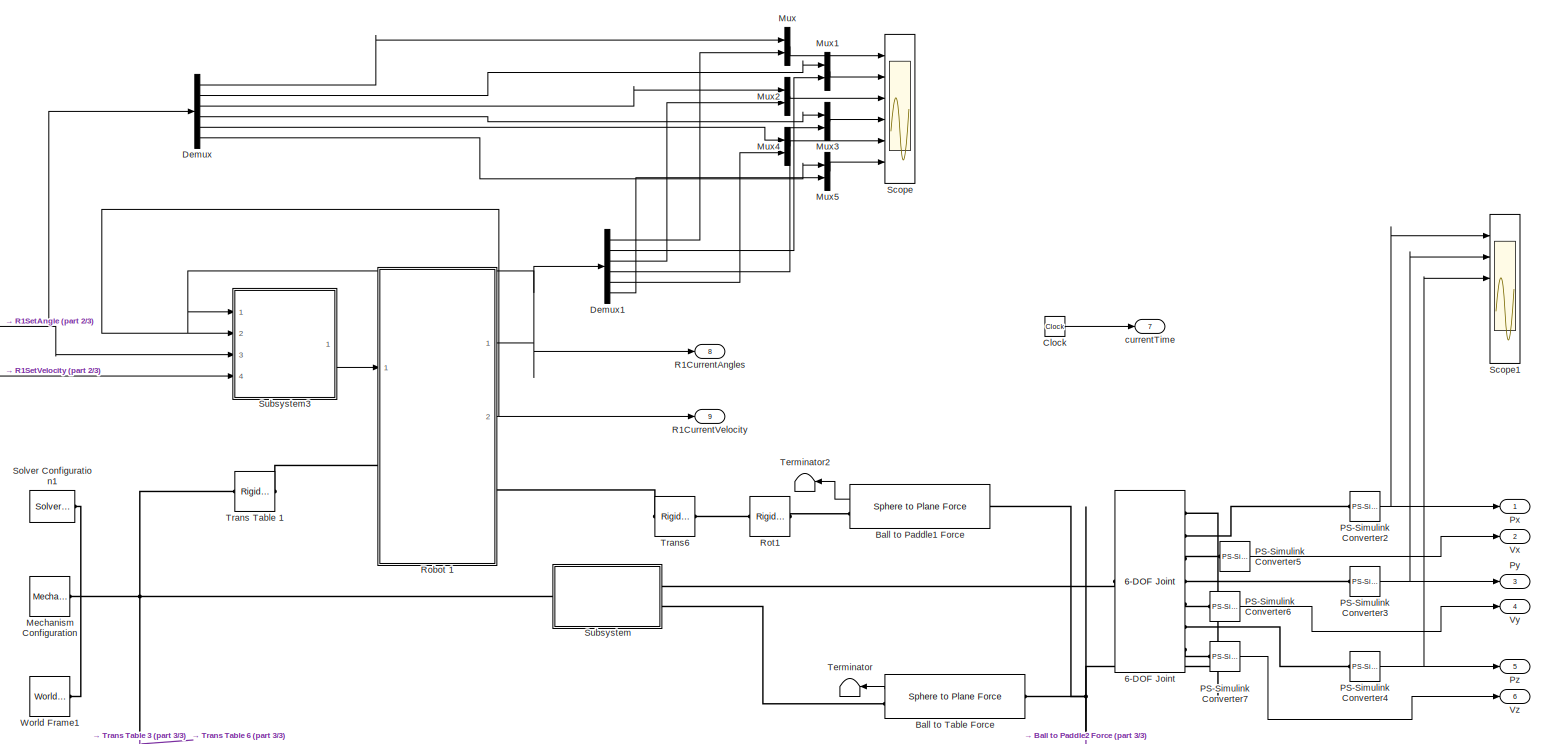
[diagram: root canvas - part 1/3, full width, top band]
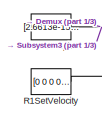
[diagram: root canvas - part 2/3, top left region]
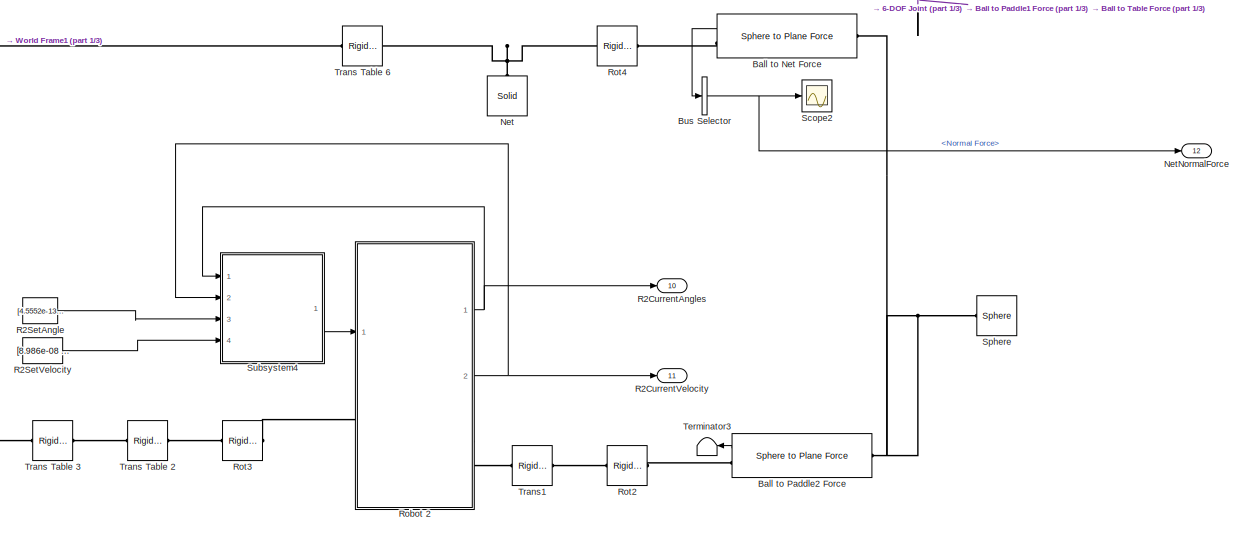
[diagram: root canvas - part 3/3, bottom center region]
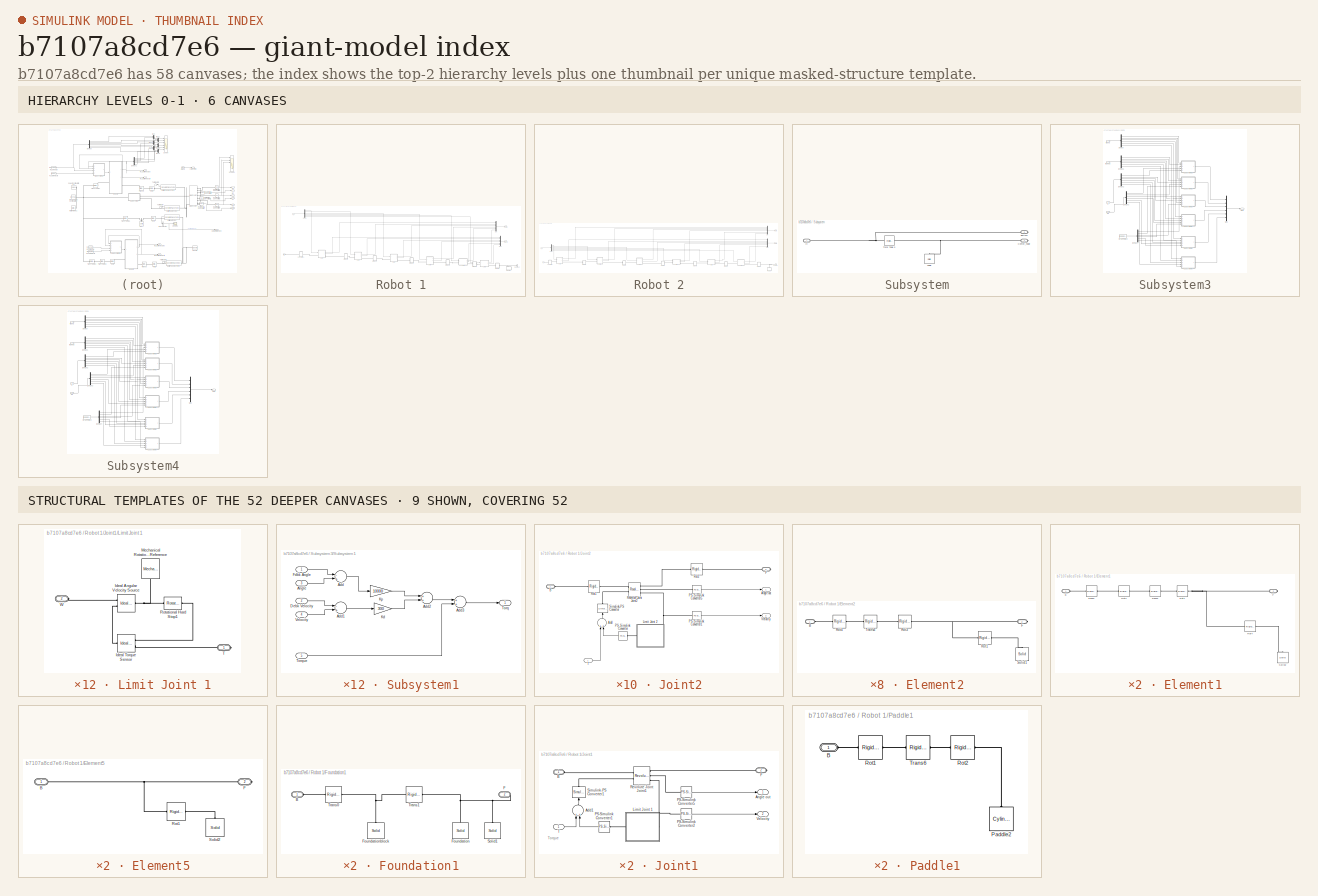
[diagram: thumbnail index - top-2 hierarchy levels (6 canvases) + 9 structural-template representatives of the remaining 52 canvases]
MODEL slx_b7107a8cd7e6
KIND model
CONFIG AbsTol = auto
CONFIG EnableMultiTasking = on
CONFIG FixedStep = 0.001
CONFIG MaxStep = updateFrequency
CONFIG MinStep = auto
CONFIG RelTol = 1e-3
CONFIG SampleTimeConstraint = Unconstrained
CONFIG Solver = ode45
CONFIG SolverName = ode45
CONFIG StartTime = 0.0
CONFIG StopTime = 10.0
BLOCK [Reference] 6-DOF Joint  REF=sm_lib/Joints/6-DOF Joint
  Ports = [0, 0, 0, 0, 0, 1, 7]
  SourceBlock = sm_lib/Joints/6-DOF Joint
  SourceType = 6-DOF Joint
BLOCK [Reference] Ball to Net Force  REF=Contact_Forces_Lib/3D/Sphere to Plane Force
  Ports = [0, 1, 0, 0, 0, 1, 1]
  SourceBlock = Contact_Forces_Lib/3D/Sphere to Plane Force
  SourceType = Sphere to Plane Force
BLOCK [Reference] Ball to Paddle1 Force  REF=Contact_Forces_Lib/3D/Sphere to Plane Force
  Ports = [0, 1, 0, 0, 0, 1, 1]
  SourceBlock = Contact_Forces_Lib/3D/Sphere to Plane Force
  SourceType = Sphere to Plane Force
BLOCK [Reference] Ball to Paddle2 Force  REF=Contact_Forces_Lib/3D/Sphere to Plane Force
  Ports = [0, 1, 0, 0, 0, 1, 1]
  SourceBlock = Contact_Forces_Lib/3D/Sphere to Plane Force
  SourceType = Sphere to Plane Force
BLOCK [Reference] Ball to Table Force  REF=Contact_Forces_Lib/3D/Sphere to Plane Force
  Ports = [0, 1, 0, 0, 0, 1, 1]
  SourceBlock = Contact_Forces_Lib/3D/Sphere to Plane Force
  SourceType = Sphere to Plane Force
BLOCK [BusSelector] Bus Selector
  OutputSignals = Normal Force
  Ports = [1, 1]
BLOCK [Clock] Clock
BLOCK [Demux] Demux
  DisplayOption = bar
  Outputs = 6
  Ports = [1, 6]
BLOCK [Demux] Demux1
  DisplayOption = bar
  Outputs = 6
  Ports = [1, 6]
BLOCK [Reference] Mechanism Configuration  REF=sm_lib/Utilities/Mechanism
Configuration
  Ports = [0, 0, 0, 0, 0, 0, 1]
  SourceBlock = sm_lib/Utilities/Mechanism\nConfiguration
  SourceType = Mechanism\nConfiguration
BLOCK [Mux] Mux
  DisplayOption = bar
  Inputs = 2
  Ports = [2, 1]
BLOCK [Mux] Mux1
  DisplayOption = bar
  Inputs = 2
  Ports = [2, 1]
BLOCK [Mux] Mux2
  DisplayOption = bar
  Inputs = 2
  Ports = [2, 1]
BLOCK [Mux] Mux3
  DisplayOption = bar
  Inputs = 2
  Ports = [2, 1]
BLOCK [Mux] Mux4
  DisplayOption = bar
  Inputs = 2
  Ports = [2, 1]
BLOCK [Mux] Mux5
  DisplayOption = bar
  Inputs = 2
  Ports = [2, 1]
BLOCK [Reference] Net  REF=sm_lib/Body Elements/Solid
  Ports = [0, 0, 0, 0, 0, 0, 1]
  SourceBlock = sm_lib/Body Elements/Solid
  SourceType = Solid
BLOCK [Outport] NetNormalForce
  IconDisplay = Port number
  Port = 12
BLOCK [Reference] PS-Simulink Converter2  REF=nesl_utility/PS-Simulink
Converter
  Ports = [0, 1, 0, 0, 0, 1]
  SourceBlock = nesl_utility/PS-Simulink\nConverter
  SourceType = PS-Simulink\nConverter
BLOCK [Reference] PS-Simulink Converter3  REF=nesl_utility/PS-Simulink
Converter
  Ports = [0, 1, 0, 0, 0, 1]
  SourceBlock = nesl_utility/PS-Simulink\nConverter
  SourceType = PS-Simulink\nConverter
BLOCK [Reference] PS-Simulink Converter4  REF=nesl_utility/PS-Simulink
Converter
  Ports = [0, 1, 0, 0, 0, 1]
  SourceBlock = nesl_utility/PS-Simulink\nConverter
  SourceType = PS-Simulink\nConverter
BLOCK [Reference] PS-Simulink Converter5  REF=nesl_utility/PS-Simulink
Converter
  Ports = [0, 1, 0, 0, 0, 1]
  SourceBlock = nesl_utility/PS-Simulink\nConverter
  SourceType = PS-Simulink\nConverter
BLOCK [Reference] PS-Simulink Converter6  REF=nesl_utility/PS-Simulink
Converter
  Ports = [0, 1, 0, 0, 0, 1]
  SourceBlock = nesl_utility/PS-Simulink\nConverter
  SourceType = PS-Simulink\nConverter
BLOCK [Reference] PS-Simulink Converter7  REF=nesl_utility/PS-Simulink
Converter
  Ports = [0, 1, 0, 0, 0, 1]
  SourceBlock = nesl_utility/PS-Simulink\nConverter
  SourceType = PS-Simulink\nConverter
BLOCK [Outport] Px
  IconDisplay = Port number
BLOCK [Outport] Py
  IconDisplay = Port number
  Port = 3
BLOCK [Outport] Pz
  IconDisplay = Port number
  Port = 5
BLOCK [Outport] R1CurrentAngles
  IconDisplay = Port number
  Port = 8
  PortDimensions = [1,6]
BLOCK [Outport] R1CurrentVelocity
  IconDisplay = Port number
  Port = 9
  PortDimensions = [1,6]
BLOCK [Constant] R1SetAngle
  Value = [2.6613e-15      1.5708 -1.8519e-10  2.2643e-12  3.3496e-10 -2.2369e-12]
BLOCK [Constant] R1SetVelocity
  Value = [0  0  0  0  0  0]
BLOCK [Outport] R2CurrentAngles
  IconDisplay = Port number
  Port = 10
  PortDimensions = [1,6]
BLOCK [Outport] R2CurrentVelocity
  IconDisplay = Port number
  Port = 11
  PortDimensions = [1,6]
BLOCK [Constant] R2SetAngle
  Value = [4.5552e-13      1.5708  -5.714e-10  6.9506e-12  1.0172e-09 -6.8372e-12]
BLOCK [Constant] R2SetVelocity
  Value = [8.986e-08  4.9161e-06 -0.00011274  1.3713e-06  0.00020069 -1.3461e-06]
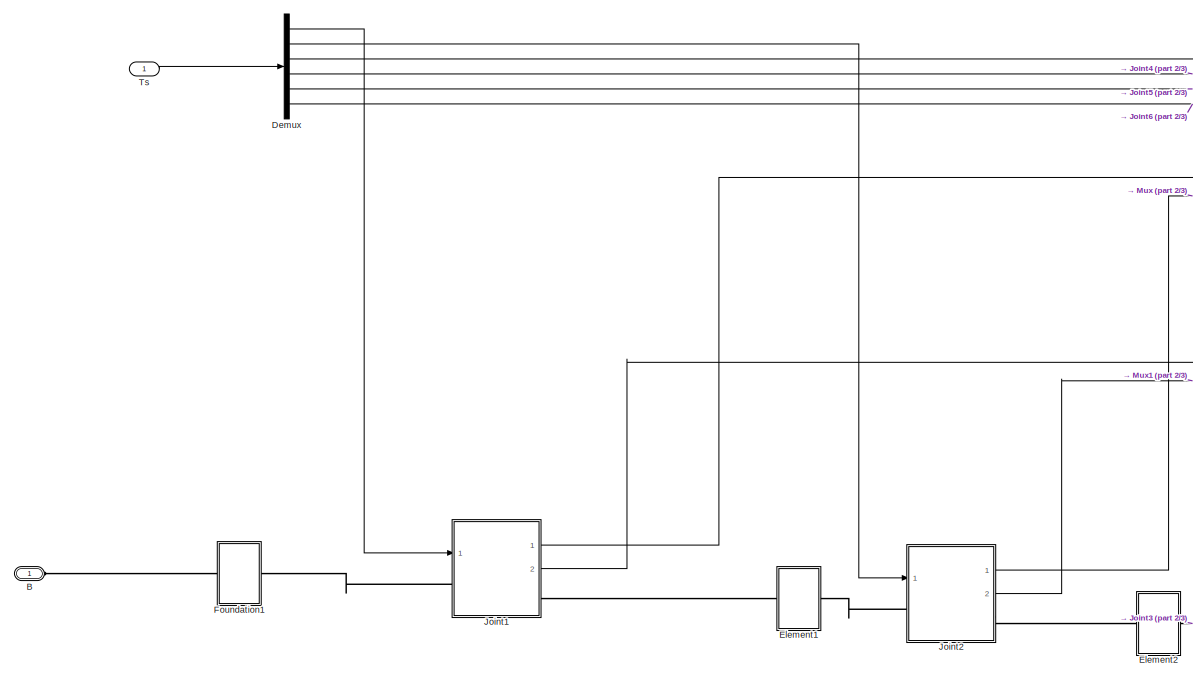
[diagram: Robot 1 - part 1/3, left side, full height]
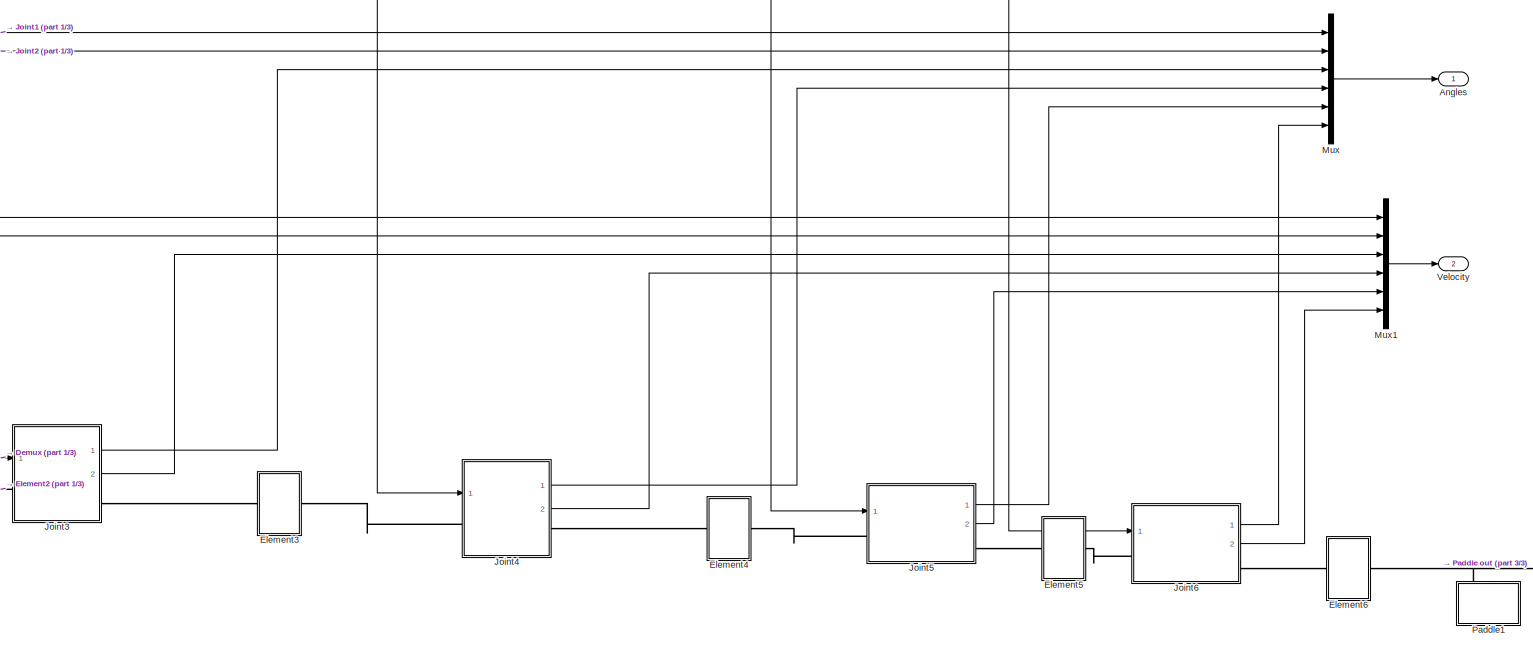
[diagram: Robot 1 - part 2/3, right side, full height]
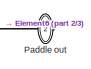
[diagram: Robot 1 - part 3/3, bottom right region]
BLOCK [SubSystem] Robot 1
  Ports = [1, 2, 0, 0, 0, 1, 1]
  RequestExecContextInheritance = off
  Variant = off
BLOCK [Outport] Robot 1/Angles
  IconDisplay = Port number
BLOCK [PMIOPort] Robot 1/B
  Port = 1
  Side = Left
BLOCK [Demux] Robot 1/Demux
  DisplayOption = bar
  Outputs = 6
  Ports = [1, 6]
BLOCK [SubSystem] Robot 1/Element1
  Ports = [0, 0, 0, 0, 0, 1, 1]
  RequestExecContextInheritance = off
  Variant = off
BLOCK [PMIOPort] Robot 1/Element1/B
  Port = 1
  Side = Left
BLOCK [PMIOPort] Robot 1/Element1/F
  Port = 2
  Side = Right
BLOCK [Reference] Robot 1/Element1/Rot1  REF=sm_lib/Frames and
Transforms/Rigid
Transform
  AttributesFormatString = %<RotationAngle> %<RotationAngleUnits>\nabout %<RotationStandardAxis>
  Ports = [0, 0, 0, 0, 0, 1, 1]
  SourceBlock = sm_lib/Frames and\nTransforms/Rigid\nTransform
  SourceType = Rigid\nTransform
BLOCK [Reference] Robot 1/Element1/Rot2  REF=sm_lib/Frames and
Transforms/Rigid
Transform
  AttributesFormatString = %<RotationAngle> %<RotationAngleUnits>\nabout %<RotationStandardAxis>
  Ports = [0, 0, 0, 0, 0, 1, 1]
  SourceBlock = sm_lib/Frames and\nTransforms/Rigid\nTransform
  SourceType = Rigid\nTransform
BLOCK [Reference] Robot 1/Element1/Rot4  REF=sm_lib/Frames and
Transforms/Rigid
Transform
  AttributesFormatString = %<RotationAngle> %<RotationAngleUnits>\nabout %<RotationStandardAxis>
  Ports = [0, 0, 0, 0, 0, 1, 1]
  SourceBlock = sm_lib/Frames and\nTransforms/Rigid\nTransform
  SourceType = Rigid\nTransform
BLOCK [Reference] Robot 1/Element1/Solid2  REF=sm_lib/Body Elements/Solid
  Ports = [0, 0, 0, 0, 0, 0, 1]
  SourceBlock = sm_lib/Body Elements/Solid
  SourceType = Solid
BLOCK [Reference] Robot 1/Element1/Trans2  REF=sm_lib/Frames and
Transforms/Rigid
Transform
  AttributesFormatString = %<TranslationStandardOffset> %<TranslationLengthUnit>\nin %<TranslationStandardAxis>
  Ports = [0, 0, 0, 0, 0, 1, 1]
  SourceBlock = sm_lib/Frames and\nTransforms/Rigid\nTransform
  SourceType = Rigid\nTransform
BLOCK [Reference] Robot 1/Element1/Trans3  REF=sm_lib/Frames and
Transforms/Rigid
Transform
  AttributesFormatString = %<TranslationStandardOffset> %<TranslationLengthUnit>\nin %<TranslationStandardAxis>
  Ports = [0, 0, 0, 0, 0, 1, 1]
  SourceBlock = sm_lib/Frames and\nTransforms/Rigid\nTransform
  SourceType = Rigid\nTransform
BLOCK [SubSystem] Robot 1/Element2
  Ports = [0, 0, 0, 0, 0, 1, 1]
  RequestExecContextInheritance = off
  Variant = off
BLOCK [PMIOPort] Robot 1/Element2/B
  Port = 1
  Side = Left
BLOCK [PMIOPort] Robot 1/Element2/F
  Port = 2
  Side = Right
BLOCK [Reference] Robot 1/Element2/Rot1  REF=sm_lib/Frames and
Transforms/Rigid
Transform
  AttributesFormatString = %<RotationAngle> %<RotationAngleUnits>\nabout %<RotationStandardAxis>
  Ports = [0, 0, 0, 0, 0, 1, 1]
  SourceBlock = sm_lib/Frames and\nTransforms/Rigid\nTransform
  SourceType = Rigid\nTransform
BLOCK [Reference] Robot 1/Element2/Rot3  REF=sm_lib/Frames and
Transforms/Rigid
Transform
  AttributesFormatString = %<RotationAngle> %<RotationAngleUnits>\nabout %<RotationStandardAxis>
  Ports = [0, 0, 0, 0, 0, 1, 1]
  SourceBlock = sm_lib/Frames and\nTransforms/Rigid\nTransform
  SourceType = Rigid\nTransform
BLOCK [Reference] Robot 1/Element2/Rot4  REF=sm_lib/Frames and
Transforms/Rigid
Transform
  AttributesFormatString = %<RotationAngle> %<RotationAngleUnits>\nabout %<RotationStandardAxis>
  Ports = [0, 0, 0, 0, 0, 1, 1]
  SourceBlock = sm_lib/Frames and\nTransforms/Rigid\nTransform
  SourceType = Rigid\nTransform
BLOCK [Reference] Robot 1/Element2/Solid1  REF=sm_lib/Body Elements/Solid
  Ports = [0, 0, 0, 0, 0, 0, 1]
  SourceBlock = sm_lib/Body Elements/Solid
  SourceType = Solid
BLOCK [Reference] Robot 1/Element2/Trans3  REF=sm_lib/Frames and
Transforms/Rigid
Transform
  AttributesFormatString = %<TranslationStandardOffset> %<TranslationLengthUnit>\nin %<TranslationStandardAxis>
  Ports = [0, 0, 0, 0, 0, 1, 1]
  SourceBlock = sm_lib/Frames and\nTransforms/Rigid\nTransform
  SourceType = Rigid\nTransform
BLOCK [SubSystem] Robot 1/Element3
  Ports = [0, 0, 0, 0, 0, 1, 1]
  RequestExecContextInheritance = off
  Variant = off
BLOCK [PMIOPort] Robot 1/Element3/B
  Port = 1
  Side = Left
BLOCK [PMIOPort] Robot 1/Element3/F
  Port = 2
  Side = Right
BLOCK [Reference] Robot 1/Element3/Rot1  REF=sm_lib/Frames and
Transforms/Rigid
Transform
  AttributesFormatString = %<RotationAngle> %<RotationAngleUnits>\nabout %<RotationStandardAxis>
  Ports = [0, 0, 0, 0, 0, 1, 1]
  SourceBlock = sm_lib/Frames and\nTransforms/Rigid\nTransform
  SourceType = Rigid\nTransform
BLOCK [Reference] Robot 1/Element3/Rot3  REF=sm_lib/Frames and
Transforms/Rigid
Transform
  AttributesFormatString = %<RotationAngle> %<RotationAngleUnits>\nabout %<RotationStandardAxis>
  Ports = [0, 0, 0, 0, 0, 1, 1]
  SourceBlock = sm_lib/Frames and\nTransforms/Rigid\nTransform
  SourceType = Rigid\nTransform
BLOCK [Reference] Robot 1/Element3/Rot4  REF=sm_lib/Frames and
Transforms/Rigid
Transform
  AttributesFormatString = %<RotationAngle> %<RotationAngleUnits>\nabout %<RotationStandardAxis>
  Ports = [0, 0, 0, 0, 0, 1, 1]
  SourceBlock = sm_lib/Frames and\nTransforms/Rigid\nTransform
  SourceType = Rigid\nTransform
BLOCK [Reference] Robot 1/Element3/Solid2  REF=sm_lib/Body Elements/Solid
  Ports = [0, 0, 0, 0, 0, 0, 1]
  SourceBlock = sm_lib/Body Elements/Solid
  SourceType = Solid
BLOCK [Reference] Robot 1/Element3/Trans3  REF=sm_lib/Frames and
Transforms/Rigid
Transform
  AttributesFormatString = %<TranslationStandardOffset> %<TranslationLengthUnit>\nin %<TranslationStandardAxis>
  Ports = [0, 0, 0, 0, 0, 1, 1]
  SourceBlock = sm_lib/Frames and\nTransforms/Rigid\nTransform
  SourceType = Rigid\nTransform
BLOCK [SubSystem] Robot 1/Element4
  Ports = [0, 0, 0, 0, 0, 1, 1]
  RequestExecContextInheritance = off
  Variant = off
BLOCK [PMIOPort] Robot 1/Element4/B
  Port = 1
  Side = Left
BLOCK [PMIOPort] Robot 1/Element4/F
  Port = 2
  Side = Right
BLOCK [Reference] Robot 1/Element4/Rot1  REF=sm_lib/Frames and
Transforms/Rigid
Transform
  AttributesFormatString = %<RotationAngle> %<RotationAngleUnits>\nabout %<RotationStandardAxis>
  Ports = [0, 0, 0, 0, 0, 1, 1]
  SourceBlock = sm_lib/Frames and\nTransforms/Rigid\nTransform
  SourceType = Rigid\nTransform
BLOCK [Reference] Robot 1/Element4/Rot2  REF=sm_lib/Frames and
Transforms/Rigid
Transform
  AttributesFormatString = %<RotationAngle> %<RotationAngleUnits>\nabout %<RotationStandardAxis>
  Ports = [0, 0, 0, 0, 0, 1, 1]
  SourceBlock = sm_lib/Frames and\nTransforms/Rigid\nTransform
  SourceType = Rigid\nTransform
BLOCK [Reference] Robot 1/Element4/Rot3  REF=sm_lib/Frames and
Transforms/Rigid
Transform
  AttributesFormatString = %<RotationAngle> %<RotationAngleUnits>\nabout %<RotationStandardAxis>
  Ports = [0, 0, 0, 0, 0, 1, 1]
  SourceBlock = sm_lib/Frames and\nTransforms/Rigid\nTransform
  SourceType = Rigid\nTransform
BLOCK [Reference] Robot 1/Element4/Solid2  REF=sm_lib/Body Elements/Solid
  Ports = [0, 0, 0, 0, 0, 0, 1]
  SourceBlock = sm_lib/Body Elements/Solid
  SourceType = Solid
BLOCK [Reference] Robot 1/Element4/Trans2  REF=sm_lib/Frames and
Transforms/Rigid
Transform
  AttributesFormatString = %<TranslationStandardOffset> %<TranslationLengthUnit>\nin %<TranslationStandardAxis>
  Ports = [0, 0, 0, 0, 0, 1, 1]
  SourceBlock = sm_lib/Frames and\nTransforms/Rigid\nTransform
  SourceType = Rigid\nTransform
BLOCK [SubSystem] Robot 1/Element5
  Ports = [0, 0, 0, 0, 0, 1, 1]
  RequestExecContextInheritance = off
  Variant = off
BLOCK [PMIOPort] Robot 1/Element5/B
  Port = 1
  Side = Left
BLOCK [PMIOPort] Robot 1/Element5/F
  Port = 2
  Side = Right
BLOCK [Reference] Robot 1/Element5/Rot1  REF=sm_lib/Frames and
Transforms/Rigid
Transform
  AttributesFormatString = %<RotationAngle> %<RotationAngleUnits>\nabout %<RotationStandardAxis>
  Ports = [0, 0, 0, 0, 0, 1, 1]
  SourceBlock = sm_lib/Frames and\nTransforms/Rigid\nTransform
  SourceType = Rigid\nTransform
BLOCK [Reference] Robot 1/Element5/Solid2  REF=sm_lib/Body Elements/Solid
  Ports = [0, 0, 0, 0, 0, 0, 1]
  SourceBlock = sm_lib/Body Elements/Solid
  SourceType = Solid
BLOCK [SubSystem] Robot 1/Element6
  Ports = [0, 0, 0, 0, 0, 1, 1]
  RequestExecContextInheritance = off
  Variant = off
BLOCK [PMIOPort] Robot 1/Element6/B
  Port = 1
  Side = Left
BLOCK [PMIOPort] Robot 1/Element6/F
  Port = 2
  Side = Right
BLOCK [Reference] Robot 1/Element6/Rot1  REF=sm_lib/Frames and
Transforms/Rigid
Transform
  AttributesFormatString = %<RotationAngle> %<RotationAngleUnits>\nabout %<RotationStandardAxis>
  Ports = [0, 0, 0, 0, 0, 1, 1]
  SourceBlock = sm_lib/Frames and\nTransforms/Rigid\nTransform
  SourceType = Rigid\nTransform
BLOCK [Reference] Robot 1/Element6/Rot2  REF=sm_lib/Frames and
Transforms/Rigid
Transform
  AttributesFormatString = %<RotationAngle> %<RotationAngleUnits>\nabout %<RotationStandardAxis>
  Ports = [0, 0, 0, 0, 0, 1, 1]
  SourceBlock = sm_lib/Frames and\nTransforms/Rigid\nTransform
  SourceType = Rigid\nTransform
BLOCK [Reference] Robot 1/Element6/Rot3  REF=sm_lib/Frames and
Transforms/Rigid
Transform
  AttributesFormatString = %<RotationAngle> %<RotationAngleUnits>\nabout %<RotationStandardAxis>
  Ports = [0, 0, 0, 0, 0, 1, 1]
  SourceBlock = sm_lib/Frames and\nTransforms/Rigid\nTransform
  SourceType = Rigid\nTransform
BLOCK [Reference] Robot 1/Element6/Solid2  REF=sm_lib/Body Elements/Solid
  Ports = [0, 0, 0, 0, 0, 0, 1]
  SourceBlock = sm_lib/Body Elements/Solid
  SourceType = Solid
BLOCK [Reference] Robot 1/Element6/Trans2  REF=sm_lib/Frames and
Transforms/Rigid
Transform
  AttributesFormatString = %<TranslationStandardOffset> %<TranslationLengthUnit>\nin %<TranslationStandardAxis>
  Ports = [0, 0, 0, 0, 0, 1, 1]
  SourceBlock = sm_lib/Frames and\nTransforms/Rigid\nTransform
  SourceType = Rigid\nTransform
BLOCK [SubSystem] Robot 1/Foundation1
  Ports = [0, 0, 0, 0, 0, 1, 1]
  RequestExecContextInheritance = off
  Variant = off
BLOCK [PMIOPort] Robot 1/Foundation1/B
  Port = 1
  Side = Left
BLOCK [PMIOPort] Robot 1/Foundation1/F
  Port = 2
  Side = Right
BLOCK [Reference] Robot 1/Foundation1/Foundation   REF=sm_lib/Body Elements/Solid
  Ports = [0, 0, 0, 0, 0, 0, 1]
  SourceBlock = sm_lib/Body Elements/Solid
  SourceType = Solid
BLOCK [Reference] Robot 1/Foundation1/Foundationblock  REF=sm_lib/Body Elements/Solid
  Ports = [0, 0, 0, 0, 0, 0, 1]
  SourceBlock = sm_lib/Body Elements/Solid
  SourceType = Solid
BLOCK [Reference] Robot 1/Foundation1/Solid1  REF=sm_lib/Body Elements/Solid
  Ports = [0, 0, 0, 0, 0, 0, 1]
  SourceBlock = sm_lib/Body Elements/Solid
  SourceType = Solid
BLOCK [Reference] Robot 1/Foundation1/Trans0  REF=sm_lib/Frames and
Transforms/Rigid
Transform
  AttributesFormatString = %<TranslationStandardOffset> %<TranslationLengthUnit>\nin %<TranslationStandardAxis>
  Ports = [0, 0, 0, 0, 0, 1, 1]
  SourceBlock = sm_lib/Frames and\nTransforms/Rigid\nTransform
  SourceType = Rigid\nTransform
BLOCK [Reference] Robot 1/Foundation1/Trans1  REF=sm_lib/Frames and
Transforms/Rigid
Transform
  AttributesFormatString = %<TranslationStandardOffset> %<TranslationLengthUnit>\nin %<TranslationStandardAxis>
  Ports = [0, 0, 0, 0, 0, 1, 1]
  SourceBlock = sm_lib/Frames and\nTransforms/Rigid\nTransform
  SourceType = Rigid\nTransform
BLOCK [SubSystem] Robot 1/Joint1
  Ports = [1, 2, 0, 0, 0, 1, 1]
  RequestExecContextInheritance = off
  Variant = off
BLOCK [Sum] Robot 1/Joint1/Add1
  InputSameDT = off
  OutDataTypeStr = Inherit: Inherit via internal rule
  Ports = [2, 1]
  SaturateOnIntegerOverflow = off
BLOCK [Outport] Robot 1/Joint1/Angle out
  IconDisplay = Port number
BLOCK [PMIOPort] Robot 1/Joint1/B
  Port = 1
  Side = Left
BLOCK [PMIOPort] Robot 1/Joint1/F
  Port = 2
  Side = Right
BLOCK [SubSystem] Robot 1/Joint1/Limit Joint 1
  Ports = [0, 0, 0, 0, 0, 1, 1]
  RequestExecContextInheritance = off
  Variant = off
BLOCK [Reference] Robot 1/Joint1/Limit Joint 1/Ideal Angular Velocity Source  REF=fl_lib/Mechanical/Mechanical Sources/Ideal Angular
Velocity Source
  Ports = [0, 0, 0, 0, 0, 1, 2]
  SourceBlock = fl_lib/Mechanical/Mechanical Sources/Ideal Angular\nVelocity Source
  SourceType = Ideal Angular\nVelocity Source
BLOCK [Reference] Robot 1/Joint1/Limit Joint 1/Ideal Torque Sensor  REF=fl_lib/Mechanical/Mechanical Sensors/Ideal Torque Sensor
  Ports = [0, 0, 0, 0, 0, 1, 2]
  SourceBlock = fl_lib/Mechanical/Mechanical Sensors/Ideal Torque Sensor
  SourceType = Ideal Torque Sensor
BLOCK [Reference] Robot 1/Joint1/Limit Joint 1/Mechanical Rotational Reference  REF=fl_lib/Mechanical/Rotational Elements/Mechanical
Rotational Reference
  Ports = [0, 0, 0, 0, 0, 1]
  SourceBlock = fl_lib/Mechanical/Rotational Elements/Mechanical\nRotational Reference
  SourceType = Mechanical\nRotational Reference
BLOCK [Reference] Robot 1/Joint1/Limit Joint 1/Rotational Hard Stop1  REF=fl_lib/Mechanical/Rotational Elements/Rotational Hard Stop
  Ports = [0, 0, 0, 0, 0, 1, 1]
  SourceBlock = fl_lib/Mechanical/Rotational Elements/Rotational Hard Stop
  SourceType = Rotational Hard Stop
BLOCK [PMIOPort] Robot 1/Joint1/Limit Joint 1/T
  Port = 1
  Side = Right
BLOCK [PMIOPort] Robot 1/Joint1/Limit Joint 1/W
  Port = 2
  Side = Left
BLOCK [Reference] Robot 1/Joint1/PS-Simulink Converter1  REF=nesl_utility/PS-Simulink
Converter
  Ports = [0, 1, 0, 0, 0, 1]
  SourceBlock = nesl_utility/PS-Simulink\nConverter
  SourceType = PS-Simulink\nConverter
BLOCK [Reference] Robot 1/Joint1/PS-Simulink Converter2  REF=nesl_utility/PS-Simulink
Converter
  Ports = [0, 1, 0, 0, 0, 1]
  SourceBlock = nesl_utility/PS-Simulink\nConverter
  SourceType = PS-Simulink\nConverter
BLOCK [Reference] Robot 1/Joint1/PS-Simulink Converter5  REF=nesl_utility/PS-Simulink
Converter
  Ports = [0, 1, 0, 0, 0, 1]
  SourceBlock = nesl_utility/PS-Simulink\nConverter
  SourceType = PS-Simulink\nConverter
BLOCK [Reference] Robot 1/Joint1/Revolute Joint Joint1  REF=sm_lib/Joints/Revolute Joint
  Ports = [0, 0, 0, 0, 0, 2, 3]
  SourceBlock = sm_lib/Joints/Revolute Joint
  SourceType = Revolute Joint
BLOCK [Reference] Robot 1/Joint1/Simulink-PS Converter1  REF=nesl_utility/Simulink-PS
Converter
  Ports = [1, 0, 0, 0, 0, 0, 1]
  SourceBlock = nesl_utility/Simulink-PS\nConverter
  SourceType = Simulink-PS\nConverter
BLOCK [Inport] Robot 1/Joint1/T
  IconDisplay = Port number
BLOCK [Outport] Robot 1/Joint1/Velocity
  IconDisplay = Port number
  Port = 2
BLOCK [SubSystem] Robot 1/Joint2
  Ports = [1, 2, 0, 0, 0, 1, 1]
  RequestExecContextInheritance = off
  Variant = off
BLOCK [Sum] Robot 1/Joint2/Add
  InputSameDT = off
  OutDataTypeStr = Inherit: Inherit via internal rule
  Ports = [2, 1]
  SaturateOnIntegerOverflow = off
BLOCK [Outport] Robot 1/Joint2/Angle out
  IconDisplay = Port number
BLOCK [PMIOPort] Robot 1/Joint2/B
  Port = 1
  Side = Left
BLOCK [PMIOPort] Robot 1/Joint2/F
  Port = 2
  Side = Right
BLOCK [SubSystem] Robot 1/Joint2/Limit Joint 2
  Ports = [0, 0, 0, 0, 0, 1, 1]
  RequestExecContextInheritance = off
  Variant = off
BLOCK [Reference] Robot 1/Joint2/Limit Joint 2/Ideal Angular Velocity Source  REF=fl_lib/Mechanical/Mechanical Sources/Ideal Angular
Velocity Source
  Ports = [0, 0, 0, 0, 0, 1, 2]
  SourceBlock = fl_lib/Mechanical/Mechanical Sources/Ideal Angular\nVelocity Source
  SourceType = Ideal Angular\nVelocity Source
BLOCK [Reference] Robot 1/Joint2/Limit Joint 2/Ideal Torque Sensor  REF=fl_lib/Mechanical/Mechanical Sensors/Ideal Torque Sensor
  Ports = [0, 0, 0, 0, 0, 1, 2]
  SourceBlock = fl_lib/Mechanical/Mechanical Sensors/Ideal Torque Sensor
  SourceType = Ideal Torque Sensor
BLOCK [Reference] Robot 1/Joint2/Limit Joint 2/Mechanical Rotational Reference  REF=fl_lib/Mechanical/Rotational Elements/Mechanical
Rotational Reference
  Ports = [0, 0, 0, 0, 0, 1]
  SourceBlock = fl_lib/Mechanical/Rotational Elements/Mechanical\nRotational Reference
  SourceType = Mechanical\nRotational Reference
BLOCK [Reference] Robot 1/Joint2/Limit Joint 2/Rotational Hard Stop1  REF=fl_lib/Mechanical/Rotational Elements/Rotational Hard Stop
  Ports = [0, 0, 0, 0, 0, 1, 1]
  SourceBlock = fl_lib/Mechanical/Rotational Elements/Rotational Hard Stop
  SourceType = Rotational Hard Stop
BLOCK [PMIOPort] Robot 1/Joint2/Limit Joint 2/T
  Port = 1
  Side = Right
BLOCK [PMIOPort] Robot 1/Joint2/Limit Joint 2/W
  Port = 2
  Side = Left
BLOCK [Reference] Robot 1/Joint2/PS-Simulink Converter  REF=nesl_utility/PS-Simulink
Converter
  Ports = [0, 1, 0, 0, 0, 1]
  SourceBlock = nesl_utility/PS-Simulink\nConverter
  SourceType = PS-Simulink\nConverter
BLOCK [Reference] Robot 1/Joint2/PS-Simulink Converter1  REF=nesl_utility/PS-Simulink
Converter
  Ports = [0, 1, 0, 0, 0, 1]
  SourceBlock = nesl_utility/PS-Simulink\nConverter
  SourceType = PS-Simulink\nConverter
BLOCK [Reference] Robot 1/Joint2/PS-Simulink Converter5  REF=nesl_utility/PS-Simulink
Converter
  Ports = [0, 1, 0, 0, 0, 1]
  SourceBlock = nesl_utility/PS-Simulink\nConverter
  SourceType = PS-Simulink\nConverter
BLOCK [Reference] Robot 1/Joint2/Revolute Joint Joint2  REF=sm_lib/Joints/Revolute Joint
  Ports = [0, 0, 0, 0, 0, 2, 3]
  SourceBlock = sm_lib/Joints/Revolute Joint
  SourceType = Revolute Joint
BLOCK [Reference] Robot 1/Joint2/Rot1  REF=sm_lib/Frames and
Transforms/Rigid
Transform
  AttributesFormatString = %<RotationAngle> %<RotationAngleUnits>\nabout %<RotationStandardAxis>
  Ports = [0, 0, 0, 0, 0, 1, 1]
  SourceBlock = sm_lib/Frames and\nTransforms/Rigid\nTransform
  SourceType = Rigid\nTransform
BLOCK [Reference] Robot 1/Joint2/Rot2  REF=sm_lib/Frames and
Transforms/Rigid
Transform
  AttributesFormatString = %<RotationAngle> %<RotationAngleUnits>\nabout %<RotationStandardAxis>
  Ports = [0, 0, 0, 0, 0, 1, 1]
  SourceBlock = sm_lib/Frames and\nTransforms/Rigid\nTransform
  SourceType = Rigid\nTransform
BLOCK [Reference] Robot 1/Joint2/Simulink-PS Converter  REF=nesl_utility/Simulink-PS
Converter
  Ports = [1, 0, 0, 0, 0, 0, 1]
  SourceBlock = nesl_utility/Simulink-PS\nConverter
  SourceType = Simulink-PS\nConverter
BLOCK [Inport] Robot 1/Joint2/T
  IconDisplay = Port number
BLOCK [Outport] Robot 1/Joint2/Velocity
  IconDisplay = Port number
  Port = 2
BLOCK [SubSystem] Robot 1/Joint3
  Ports = [1, 2, 0, 0, 0, 1, 1]
  RequestExecContextInheritance = off
  Variant = off
BLOCK [Sum] Robot 1/Joint3/Add2
  InputSameDT = off
  OutDataTypeStr = Inherit: Inherit via internal rule
  Ports = [2, 1]
  SaturateOnIntegerOverflow = off
BLOCK [Outport] Robot 1/Joint3/Angle out
  IconDisplay = Port number
BLOCK [PMIOPort] Robot 1/Joint3/B
  Port = 1
  Side = Left
BLOCK [PMIOPort] Robot 1/Joint3/F
  Port = 2
  Side = Right
BLOCK [SubSystem] Robot 1/Joint3/Limit Joint 3
  Ports = [0, 0, 0, 0, 0, 1, 1]
  RequestExecContextInheritance = off
  Variant = off
BLOCK [Reference] Robot 1/Joint3/Limit Joint 3/Ideal Angular Velocity Source  REF=fl_lib/Mechanical/Mechanical Sources/Ideal Angular
Velocity Source
  Ports = [0, 0, 0, 0, 0, 1, 2]
  SourceBlock = fl_lib/Mechanical/Mechanical Sources/Ideal Angular\nVelocity Source
  SourceType = Ideal Angular\nVelocity Source
BLOCK [Reference] Robot 1/Joint3/Limit Joint 3/Ideal Torque Sensor  REF=fl_lib/Mechanical/Mechanical Sensors/Ideal Torque Sensor
  Ports = [0, 0, 0, 0, 0, 1, 2]
  SourceBlock = fl_lib/Mechanical/Mechanical Sensors/Ideal Torque Sensor
  SourceType = Ideal Torque Sensor
BLOCK [Reference] Robot 1/Joint3/Limit Joint 3/Mechanical Rotational Reference  REF=fl_lib/Mechanical/Rotational Elements/Mechanical
Rotational Reference
  Ports = [0, 0, 0, 0, 0, 1]
  SourceBlock = fl_lib/Mechanical/Rotational Elements/Mechanical\nRotational Reference
  SourceType = Mechanical\nRotational Reference
BLOCK [Reference] Robot 1/Joint3/Limit Joint 3/Rotational Hard Stop1  REF=fl_lib/Mechanical/Rotational Elements/Rotational Hard Stop
  Ports = [0, 0, 0, 0, 0, 1, 1]
  SourceBlock = fl_lib/Mechanical/Rotational Elements/Rotational Hard Stop
  SourceType = Rotational Hard Stop
BLOCK [PMIOPort] Robot 1/Joint3/Limit Joint 3/T
  Port = 1
  Side = Right
BLOCK [PMIOPort] Robot 1/Joint3/Limit Joint 3/W
  Port = 2
  Side = Left
BLOCK [Reference] Robot 1/Joint3/PS-Simulink Converter1  REF=nesl_utility/PS-Simulink
Converter
  Ports = [0, 1, 0, 0, 0, 1]
  SourceBlock = nesl_utility/PS-Simulink\nConverter
  SourceType = PS-Simulink\nConverter
BLOCK [Reference] Robot 1/Joint3/PS-Simulink Converter2  REF=nesl_utility/PS-Simulink
Converter
  Ports = [0, 1, 0, 0, 0, 1]
  SourceBlock = nesl_utility/PS-Simulink\nConverter
  SourceType = PS-Simulink\nConverter
BLOCK [Reference] Robot 1/Joint3/PS-Simulink Converter5  REF=nesl_utility/PS-Simulink
Converter
  Ports = [0, 1, 0, 0, 0, 1]
  SourceBlock = nesl_utility/PS-Simulink\nConverter
  SourceType = PS-Simulink\nConverter
BLOCK [Reference] Robot 1/Joint3/Revolute Joint Joint3  REF=sm_lib/Joints/Revolute Joint
  Ports = [0, 0, 0, 0, 0, 2, 3]
  SourceBlock = sm_lib/Joints/Revolute Joint
  SourceType = Revolute Joint
BLOCK [Reference] Robot 1/Joint3/Rot1  REF=sm_lib/Frames and
Transforms/Rigid
Transform
  AttributesFormatString = %<RotationAngle> %<RotationAngleUnits>\nabout %<RotationStandardAxis>
  Ports = [0, 0, 0, 0, 0, 1, 1]
  SourceBlock = sm_lib/Frames and\nTransforms/Rigid\nTransform
  SourceType = Rigid\nTransform
BLOCK [Reference] Robot 1/Joint3/Rot2  REF=sm_lib/Frames and
Transforms/Rigid
Transform
  AttributesFormatString = %<RotationAngle> %<RotationAngleUnits>\nabout %<RotationStandardAxis>
  Ports = [0, 0, 0, 0, 0, 1, 1]
  SourceBlock = sm_lib/Frames and\nTransforms/Rigid\nTransform
  SourceType = Rigid\nTransform
BLOCK [Reference] Robot 1/Joint3/Simulink-PS Converter2  REF=nesl_utility/Simulink-PS
Converter
  Ports = [1, 0, 0, 0, 0, 0, 1]
  SourceBlock = nesl_utility/Simulink-PS\nConverter
  SourceType = Simulink-PS\nConverter
BLOCK [Inport] Robot 1/Joint3/T
  IconDisplay = Port number
BLOCK [Outport] Robot 1/Joint3/Velocity
  IconDisplay = Port number
  Port = 2
BLOCK [SubSystem] Robot 1/Joint4
  Ports = [1, 2, 0, 0, 0, 1, 1]
  RequestExecContextInheritance = off
  Variant = off
BLOCK [Sum] Robot 1/Joint4/Add2
  InputSameDT = off
  OutDataTypeStr = Inherit: Inherit via internal rule
  Ports = [2, 1]
  SaturateOnIntegerOverflow = off
BLOCK [Outport] Robot 1/Joint4/Angle out
  IconDisplay = Port number
BLOCK [PMIOPort] Robot 1/Joint4/B
  Port = 1
  Side = Left
BLOCK [PMIOPort] Robot 1/Joint4/F
  Port = 2
  Side = Right
BLOCK [SubSystem] Robot 1/Joint4/Limit Joint 4
  Ports = [0, 0, 0, 0, 0, 1, 1]
  RequestExecContextInheritance = off
  Variant = off
BLOCK [Reference] Robot 1/Joint4/Limit Joint 4/Ideal Angular Velocity Source  REF=fl_lib/Mechanical/Mechanical Sources/Ideal Angular
Velocity Source
  Ports = [0, 0, 0, 0, 0, 1, 2]
  SourceBlock = fl_lib/Mechanical/Mechanical Sources/Ideal Angular\nVelocity Source
  SourceType = Ideal Angular\nVelocity Source
BLOCK [Reference] Robot 1/Joint4/Limit Joint 4/Ideal Torque Sensor  REF=fl_lib/Mechanical/Mechanical Sensors/Ideal Torque Sensor
  Ports = [0, 0, 0, 0, 0, 1, 2]
  SourceBlock = fl_lib/Mechanical/Mechanical Sensors/Ideal Torque Sensor
  SourceType = Ideal Torque Sensor
BLOCK [Reference] Robot 1/Joint4/Limit Joint 4/Mechanical Rotational Reference  REF=fl_lib/Mechanical/Rotational Elements/Mechanical
Rotational Reference
  Ports = [0, 0, 0, 0, 0, 1]
  SourceBlock = fl_lib/Mechanical/Rotational Elements/Mechanical\nRotational Reference
  SourceType = Mechanical\nRotational Reference
BLOCK [Reference] Robot 1/Joint4/Limit Joint 4/Rotational Hard Stop1  REF=fl_lib/Mechanical/Rotational Elements/Rotational Hard Stop
  Ports = [0, 0, 0, 0, 0, 1, 1]
  SourceBlock = fl_lib/Mechanical/Rotational Elements/Rotational Hard Stop
  SourceType = Rotational Hard Stop
BLOCK [PMIOPort] Robot 1/Joint4/Limit Joint 4/T
  Port = 1
  Side = Right
BLOCK [PMIOPort] Robot 1/Joint4/Limit Joint 4/W
  Port = 2
  Side = Left
BLOCK [Reference] Robot 1/Joint4/PS-Simulink Converter1  REF=nesl_utility/PS-Simulink
Converter
  Ports = [0, 1, 0, 0, 0, 1]
  SourceBlock = nesl_utility/PS-Simulink\nConverter
  SourceType = PS-Simulink\nConverter
BLOCK [Reference] Robot 1/Joint4/PS-Simulink Converter2  REF=nesl_utility/PS-Simulink
Converter
  Ports = [0, 1, 0, 0, 0, 1]
  SourceBlock = nesl_utility/PS-Simulink\nConverter
  SourceType = PS-Simulink\nConverter
BLOCK [Reference] Robot 1/Joint4/PS-Simulink Converter5  REF=nesl_utility/PS-Simulink
Converter
  Ports = [0, 1, 0, 0, 0, 1]
  SourceBlock = nesl_utility/PS-Simulink\nConverter
  SourceType = PS-Simulink\nConverter
BLOCK [Reference] Robot 1/Joint4/Revolute Joint Joint4  REF=sm_lib/Joints/Revolute Joint
  Ports = [0, 0, 0, 0, 0, 2, 3]
  SourceBlock = sm_lib/Joints/Revolute Joint
  SourceType = Revolute Joint
BLOCK [Reference] Robot 1/Joint4/Rot1  REF=sm_lib/Frames and
Transforms/Rigid
Transform
  AttributesFormatString = %<RotationAngle> %<RotationAngleUnits>\nabout %<RotationStandardAxis>
  Ports = [0, 0, 0, 0, 0, 1, 1]
  SourceBlock = sm_lib/Frames and\nTransforms/Rigid\nTransform
  SourceType = Rigid\nTransform
BLOCK [Reference] Robot 1/Joint4/Rot2  REF=sm_lib/Frames and
Transforms/Rigid
Transform
  AttributesFormatString = %<RotationAngle> %<RotationAngleUnits>\nabout %<RotationStandardAxis>
  Ports = [0, 0, 0, 0, 0, 1, 1]
  SourceBlock = sm_lib/Frames and\nTransforms/Rigid\nTransform
  SourceType = Rigid\nTransform
BLOCK [Reference] Robot 1/Joint4/Simulink-PS Converter2  REF=nesl_utility/Simulink-PS
Converter
  Ports = [1, 0, 0, 0, 0, 0, 1]
  SourceBlock = nesl_utility/Simulink-PS\nConverter
  SourceType = Simulink-PS\nConverter
BLOCK [Inport] Robot 1/Joint4/T
  IconDisplay = Port number
BLOCK [Outport] Robot 1/Joint4/Velocity
  IconDisplay = Port number
  Port = 2
BLOCK [SubSystem] Robot 1/Joint5
  Ports = [1, 2, 0, 0, 0, 1, 1]
  RequestExecContextInheritance = off
  Variant = off
BLOCK [Sum] Robot 1/Joint5/Add3
  InputSameDT = off
  OutDataTypeStr = Inherit: Inherit via internal rule
  Ports = [2, 1]
  SaturateOnIntegerOverflow = off
BLOCK [PMIOPort] Robot 1/Joint5/B
  Port = 1
  Side = Left
BLOCK [PMIOPort] Robot 1/Joint5/F
  Port = 2
  Side = Right
BLOCK [SubSystem] Robot 1/Joint5/Limit Joint 4 Y
  Ports = [0, 0, 0, 0, 0, 1, 1]
  RequestExecContextInheritance = off
  Variant = off
BLOCK [Reference] Robot 1/Joint5/Limit Joint 4 Y/Ideal Angular Velocity Source  REF=fl_lib/Mechanical/Mechanical Sources/Ideal Angular
Velocity Source
  Ports = [0, 0, 0, 0, 0, 1, 2]
  SourceBlock = fl_lib/Mechanical/Mechanical Sources/Ideal Angular\nVelocity Source
  SourceType = Ideal Angular\nVelocity Source
BLOCK [Reference] Robot 1/Joint5/Limit Joint 4 Y/Ideal Torque Sensor  REF=fl_lib/Mechanical/Mechanical Sensors/Ideal Torque Sensor
  Ports = [0, 0, 0, 0, 0, 1, 2]
  SourceBlock = fl_lib/Mechanical/Mechanical Sensors/Ideal Torque Sensor
  SourceType = Ideal Torque Sensor
BLOCK [Reference] Robot 1/Joint5/Limit Joint 4 Y/Mechanical Rotational Reference  REF=fl_lib/Mechanical/Rotational Elements/Mechanical
Rotational Reference
  Ports = [0, 0, 0, 0, 0, 1]
  SourceBlock = fl_lib/Mechanical/Rotational Elements/Mechanical\nRotational Reference
  SourceType = Mechanical\nRotational Reference
BLOCK [Reference] Robot 1/Joint5/Limit Joint 4 Y/Rotational Hard Stop1  REF=fl_lib/Mechanical/Rotational Elements/Rotational Hard Stop
  Ports = [0, 0, 0, 0, 0, 1, 1]
  SourceBlock = fl_lib/Mechanical/Rotational Elements/Rotational Hard Stop
  SourceType = Rotational Hard Stop
BLOCK [PMIOPort] Robot 1/Joint5/Limit Joint 4 Y/T
  Port = 1
  Side = Right
BLOCK [PMIOPort] Robot 1/Joint5/Limit Joint 4 Y/W
  Port = 2
  Side = Left
BLOCK [Outport] Robot 1/Joint5/Out1
  IconDisplay = Port number
BLOCK [Reference] Robot 1/Joint5/PS-Simulink Converter1  REF=nesl_utility/PS-Simulink
Converter
  Ports = [0, 1, 0, 0, 0, 1]
  SourceBlock = nesl_utility/PS-Simulink\nConverter
  SourceType = PS-Simulink\nConverter
BLOCK [Reference] Robot 1/Joint5/PS-Simulink Converter2  REF=nesl_utility/PS-Simulink
Converter
  Ports = [0, 1, 0, 0, 0, 1]
  SourceBlock = nesl_utility/PS-Simulink\nConverter
  SourceType = PS-Simulink\nConverter
BLOCK [Reference] Robot 1/Joint5/PS-Simulink Converter3  REF=nesl_utility/PS-Simulink
Converter
  Ports = [0, 1, 0, 0, 0, 1]
  SourceBlock = nesl_utility/PS-Simulink\nConverter
  SourceType = PS-Simulink\nConverter
BLOCK [Reference] Robot 1/Joint5/Revolute Joint  REF=sm_lib/Joints/Revolute Joint
  Ports = [0, 0, 0, 0, 0, 2, 3]
  SourceBlock = sm_lib/Joints/Revolute Joint
  SourceType = Revolute Joint
BLOCK [Reference] Robot 1/Joint5/Rot1  REF=sm_lib/Frames and
Transforms/Rigid
Transform
  AttributesFormatString = %<RotationAngle> %<RotationAngleUnits>\nabout %<RotationStandardAxis>
  Ports = [0, 0, 0, 0, 0, 1, 1]
  SourceBlock = sm_lib/Frames and\nTransforms/Rigid\nTransform
  SourceType = Rigid\nTransform
BLOCK [Reference] Robot 1/Joint5/Rot3  REF=sm_lib/Frames and
Transforms/Rigid
Transform
  AttributesFormatString = %<RotationAngle> %<RotationAngleUnits>\nabout %<RotationStandardAxis>
  Ports = [0, 0, 0, 0, 0, 1, 1]
  SourceBlock = sm_lib/Frames and\nTransforms/Rigid\nTransform
  SourceType = Rigid\nTransform
BLOCK [Reference] Robot 1/Joint5/Simulink-PS Converter3  REF=nesl_utility/Simulink-PS
Converter
  Ports = [1, 0, 0, 0, 0, 0, 1]
  SourceBlock = nesl_utility/Simulink-PS\nConverter
  SourceType = Simulink-PS\nConverter
BLOCK [Inport] Robot 1/Joint5/Ty
  IconDisplay = Port number
BLOCK [Outport] Robot 1/Joint5/Velocity
  IconDisplay = Port number
  Port = 2
BLOCK [SubSystem] Robot 1/Joint6
  Ports = [1, 2, 0, 0, 0, 1, 1]
  RequestExecContextInheritance = off
  Variant = off
BLOCK [Sum] Robot 1/Joint6/Add3
  InputSameDT = off
  OutDataTypeStr = Inherit: Inherit via internal rule
  Ports = [2, 1]
  SaturateOnIntegerOverflow = off
BLOCK [Outport] Robot 1/Joint6/Angle Y out
  IconDisplay = Port number
BLOCK [PMIOPort] Robot 1/Joint6/B
  Port = 1
  Side = Left
BLOCK [PMIOPort] Robot 1/Joint6/F
  Port = 2
  Side = Right
BLOCK [SubSystem] Robot 1/Joint6/Limit Joint 4 Y
  Ports = [0, 0, 0, 0, 0, 1, 1]
  RequestExecContextInheritance = off
  Variant = off
BLOCK [Reference] Robot 1/Joint6/Limit Joint 4 Y/Ideal Angular Velocity Source  REF=fl_lib/Mechanical/Mechanical Sources/Ideal Angular
Velocity Source
  Ports = [0, 0, 0, 0, 0, 1, 2]
  SourceBlock = fl_lib/Mechanical/Mechanical Sources/Ideal Angular\nVelocity Source
  SourceType = Ideal Angular\nVelocity Source
BLOCK [Reference] Robot 1/Joint6/Limit Joint 4 Y/Ideal Torque Sensor  REF=fl_lib/Mechanical/Mechanical Sensors/Ideal Torque Sensor
  Ports = [0, 0, 0, 0, 0, 1, 2]
  SourceBlock = fl_lib/Mechanical/Mechanical Sensors/Ideal Torque Sensor
  SourceType = Ideal Torque Sensor
BLOCK [Reference] Robot 1/Joint6/Limit Joint 4 Y/Mechanical Rotational Reference  REF=fl_lib/Mechanical/Rotational Elements/Mechanical
Rotational Reference
  Ports = [0, 0, 0, 0, 0, 1]
  SourceBlock = fl_lib/Mechanical/Rotational Elements/Mechanical\nRotational Reference
  SourceType = Mechanical\nRotational Reference
BLOCK [Reference] Robot 1/Joint6/Limit Joint 4 Y/Rotational Hard Stop1  REF=fl_lib/Mechanical/Rotational Elements/Rotational Hard Stop
  Ports = [0, 0, 0, 0, 0, 1, 1]
  SourceBlock = fl_lib/Mechanical/Rotational Elements/Rotational Hard Stop
  SourceType = Rotational Hard Stop
BLOCK [PMIOPort] Robot 1/Joint6/Limit Joint 4 Y/T
  Port = 1
  Side = Right
BLOCK [PMIOPort] Robot 1/Joint6/Limit Joint 4 Y/W
  Port = 2
  Side = Left
BLOCK [Reference] Robot 1/Joint6/PS-Simulink Converter1  REF=nesl_utility/PS-Simulink
Converter
  Ports = [0, 1, 0, 0, 0, 1]
  SourceBlock = nesl_utility/PS-Simulink\nConverter
  SourceType = PS-Simulink\nConverter
BLOCK [Reference] Robot 1/Joint6/PS-Simulink Converter2  REF=nesl_utility/PS-Simulink
Converter
  Ports = [0, 1, 0, 0, 0, 1]
  SourceBlock = nesl_utility/PS-Simulink\nConverter
  SourceType = PS-Simulink\nConverter
BLOCK [Reference] Robot 1/Joint6/PS-Simulink Converter3  REF=nesl_utility/PS-Simulink
Converter
  Ports = [0, 1, 0, 0, 0, 1]
  SourceBlock = nesl_utility/PS-Simulink\nConverter
  SourceType = PS-Simulink\nConverter
BLOCK [Reference] Robot 1/Joint6/Revolute Joint  REF=sm_lib/Joints/Revolute Joint
  Ports = [0, 0, 0, 0, 0, 2, 3]
  SourceBlock = sm_lib/Joints/Revolute Joint
  SourceType = Revolute Joint
BLOCK [Reference] Robot 1/Joint6/Rot1  REF=sm_lib/Frames and
Transforms/Rigid
Transform
  AttributesFormatString = %<RotationAngle> %<RotationAngleUnits>\nabout %<RotationStandardAxis>
  Ports = [0, 0, 0, 0, 0, 1, 1]
  SourceBlock = sm_lib/Frames and\nTransforms/Rigid\nTransform
  SourceType = Rigid\nTransform
BLOCK [Reference] Robot 1/Joint6/Rot2  REF=sm_lib/Frames and
Transforms/Rigid
Transform
  AttributesFormatString = %<RotationAngle> %<RotationAngleUnits>\nabout %<RotationStandardAxis>
  Ports = [0, 0, 0, 0, 0, 1, 1]
  SourceBlock = sm_lib/Frames and\nTransforms/Rigid\nTransform
  SourceType = Rigid\nTransform
BLOCK [Reference] Robot 1/Joint6/Simulink-PS Converter3  REF=nesl_utility/Simulink-PS
Converter
  Ports = [1, 0, 0, 0, 0, 0, 1]
  SourceBlock = nesl_utility/Simulink-PS\nConverter
  SourceType = Simulink-PS\nConverter
BLOCK [Inport] Robot 1/Joint6/Ty
  IconDisplay = Port number
BLOCK [Outport] Robot 1/Joint6/Vel out
  IconDisplay = Port number
  Port = 2
BLOCK [Mux] Robot 1/Mux
  DisplayOption = bar
  Inputs = 6
  Ports = [6, 1]
BLOCK [Mux] Robot 1/Mux1
  DisplayOption = bar
  Inputs = 6
  Ports = [6, 1]
BLOCK [PMIOPort] Robot 1/Paddle out
  Port = 2
  Side = Right
BLOCK [SubSystem] Robot 1/Paddle1
  Ports = [0, 0, 0, 0, 0, 1]
  RequestExecContextInheritance = off
  Variant = off
BLOCK [PMIOPort] Robot 1/Paddle1/B
  Port = 1
  Side = Left
BLOCK [Reference] Robot 1/Paddle1/Paddle2  REF=Parts_Lib/Cylinder
  Ports = [0, 0, 0, 0, 0, 1]
  SourceBlock = Parts_Lib/Cylinder
  SourceType = Solid Cylinder with Markings
  Tag = CustomStyle
BLOCK [Reference] Robot 1/Paddle1/Rot1  REF=sm_lib/Frames and
Transforms/Rigid
Transform
  AttributesFormatString = %<RotationAngle> %<RotationAngleUnits>\nabout %<RotationStandardAxis>
  Ports = [0, 0, 0, 0, 0, 1, 1]
  SourceBlock = sm_lib/Frames and\nTransforms/Rigid\nTransform
  SourceType = Rigid\nTransform
BLOCK [Reference] Robot 1/Paddle1/Rot2  REF=sm_lib/Frames and
Transforms/Rigid
Transform
  AttributesFormatString = %<RotationAngle> %<RotationAngleUnits>\nabout %<RotationStandardAxis>
  Ports = [0, 0, 0, 0, 0, 1, 1]
  SourceBlock = sm_lib/Frames and\nTransforms/Rigid\nTransform
  SourceType = Rigid\nTransform
BLOCK [Reference] Robot 1/Paddle1/Trans6  REF=sm_lib/Frames and
Transforms/Rigid
Transform
  AttributesFormatString = %<TranslationStandardOffset> %<TranslationLengthUnit>\nin %<TranslationStandardAxis>
  Ports = [0, 0, 0, 0, 0, 1, 1]
  SourceBlock = sm_lib/Frames and\nTransforms/Rigid\nTransform
  SourceType = Rigid\nTransform
BLOCK [Inport] Robot 1/Ts
  IconDisplay = Port number
BLOCK [Outport] Robot 1/Velocity
  IconDisplay = Port number
  Port = 2
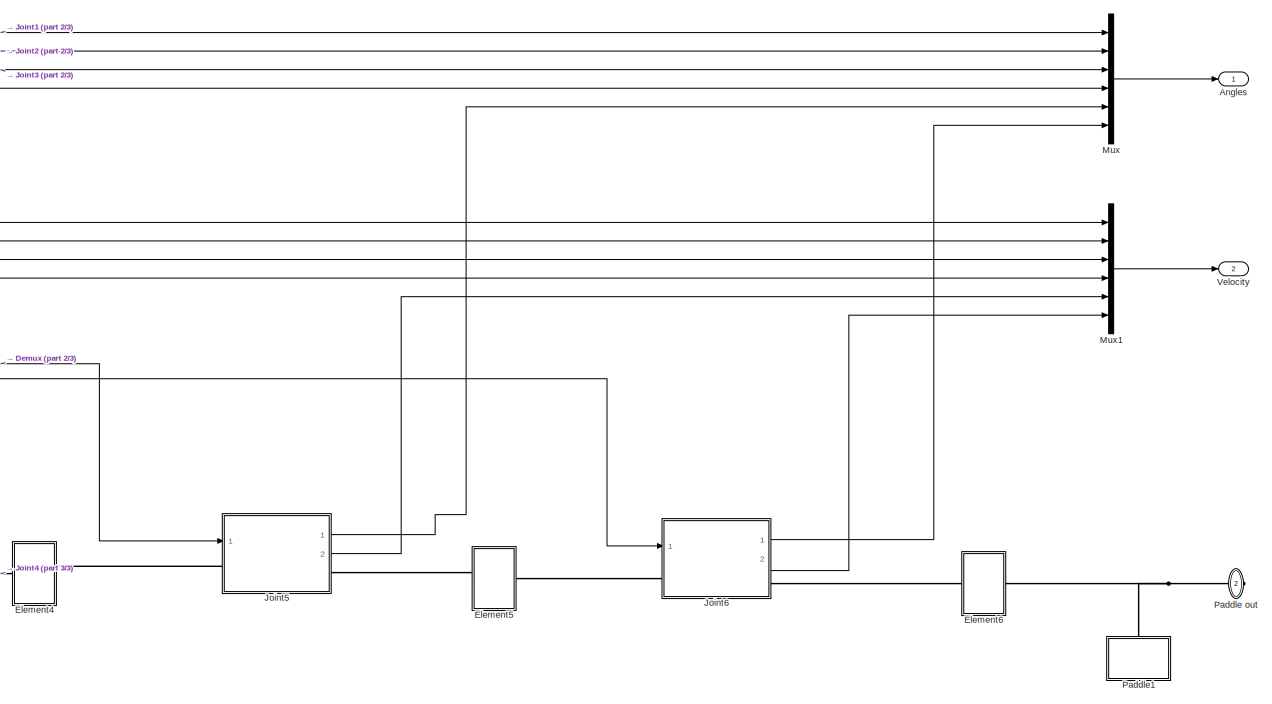
[diagram: Robot 2 - part 1/3, right side, full height]
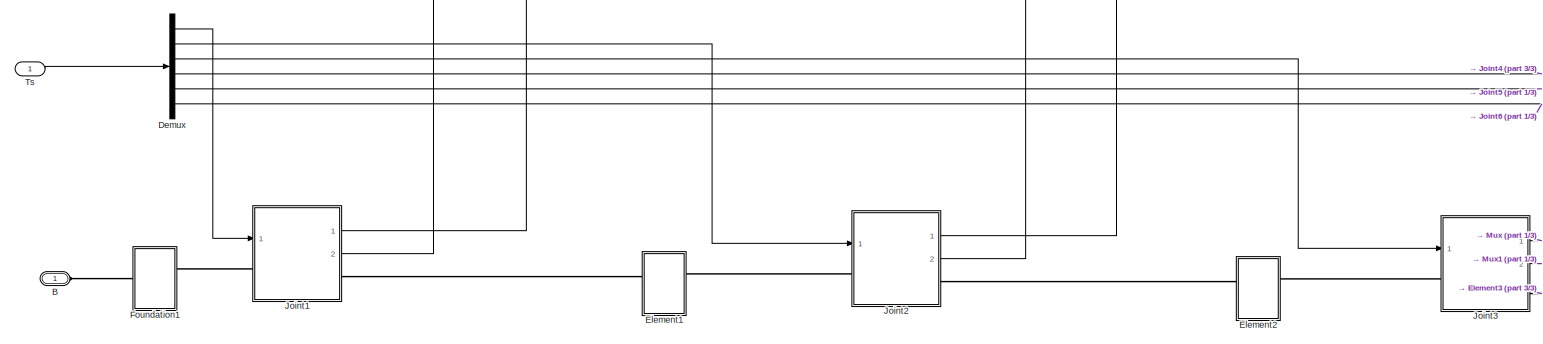
[diagram: Robot 2 - part 2/3, middle left region]
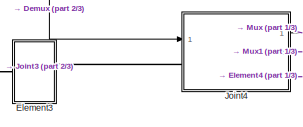
[diagram: Robot 2 - part 3/3, bottom center region]
BLOCK [SubSystem] Robot 2
  Ports = [1, 2, 0, 0, 0, 1, 1]
  RequestExecContextInheritance = off
  Variant = off
BLOCK [Outport] Robot 2/Angles
  IconDisplay = Port number
BLOCK [PMIOPort] Robot 2/B
  Port = 1
  Side = Left
BLOCK [Demux] Robot 2/Demux
  DisplayOption = bar
  Outputs = 6
  Ports = [1, 6]
BLOCK [SubSystem] Robot 2/Element1
  Ports = [0, 0, 0, 0, 0, 1, 1]
  RequestExecContextInheritance = off
  Variant = off
BLOCK [PMIOPort] Robot 2/Element1/B
  Port = 1
  Side = Left
BLOCK [PMIOPort] Robot 2/Element1/F
  Port = 2
  Side = Right
BLOCK [Reference] Robot 2/Element1/Rot1  REF=sm_lib/Frames and
Transforms/Rigid
Transform
  AttributesFormatString = %<RotationAngle> %<RotationAngleUnits>\nabout %<RotationStandardAxis>
  Ports = [0, 0, 0, 0, 0, 1, 1]
  SourceBlock = sm_lib/Frames and\nTransforms/Rigid\nTransform
  SourceType = Rigid\nTransform
BLOCK [Reference] Robot 2/Element1/Rot2  REF=sm_lib/Frames and
Transforms/Rigid
Transform
  AttributesFormatString = %<RotationAngle> %<RotationAngleUnits>\nabout %<RotationStandardAxis>
  Ports = [0, 0, 0, 0, 0, 1, 1]
  SourceBlock = sm_lib/Frames and\nTransforms/Rigid\nTransform
  SourceType = Rigid\nTransform
BLOCK [Reference] Robot 2/Element1/Rot3  REF=sm_lib/Frames and
Transforms/Rigid
Transform
  AttributesFormatString = %<RotationAngle> %<RotationAngleUnits>\nabout %<RotationStandardAxis>
  Ports = [0, 0, 0, 0, 0, 1, 1]
  SourceBlock = sm_lib/Frames and\nTransforms/Rigid\nTransform
  SourceType = Rigid\nTransform
BLOCK [Reference] Robot 2/Element1/Solid2  REF=sm_lib/Body Elements/Solid
  Ports = [0, 0, 0, 0, 0, 0, 1]
  SourceBlock = sm_lib/Body Elements/Solid
  SourceType = Solid
BLOCK [Reference] Robot 2/Element1/Trans2  REF=sm_lib/Frames and
Transforms/Rigid
Transform
  AttributesFormatString = %<TranslationStandardOffset> %<TranslationLengthUnit>\nin %<TranslationStandardAxis>
  Ports = [0, 0, 0, 0, 0, 1, 1]
  SourceBlock = sm_lib/Frames and\nTransforms/Rigid\nTransform
  SourceType = Rigid\nTransform
BLOCK [Reference] Robot 2/Element1/Trans3  REF=sm_lib/Frames and
Transforms/Rigid
Transform
  AttributesFormatString = %<TranslationStandardOffset> %<TranslationLengthUnit>\nin %<TranslationStandardAxis>
  Ports = [0, 0, 0, 0, 0, 1, 1]
  SourceBlock = sm_lib/Frames and\nTransforms/Rigid\nTransform
  SourceType = Rigid\nTransform
BLOCK [SubSystem] Robot 2/Element2
  Ports = [0, 0, 0, 0, 0, 1, 1]
  RequestExecContextInheritance = off
  Variant = off
BLOCK [PMIOPort] Robot 2/Element2/B
  Port = 1
  Side = Left
BLOCK [PMIOPort] Robot 2/Element2/F
  Port = 2
  Side = Right
BLOCK [Reference] Robot 2/Element2/Rot1  REF=sm_lib/Frames and
Transforms/Rigid
Transform
  AttributesFormatString = %<RotationAngle> %<RotationAngleUnits>\nabout %<RotationStandardAxis>
  Ports = [0, 0, 0, 0, 0, 1, 1]
  SourceBlock = sm_lib/Frames and\nTransforms/Rigid\nTransform
  SourceType = Rigid\nTransform
BLOCK [Reference] Robot 2/Element2/Rot2  REF=sm_lib/Frames and
Transforms/Rigid
Transform
  AttributesFormatString = %<RotationAngle> %<RotationAngleUnits>\nabout %<RotationStandardAxis>
  Ports = [0, 0, 0, 0, 0, 1, 1]
  SourceBlock = sm_lib/Frames and\nTransforms/Rigid\nTransform
  SourceType = Rigid\nTransform
BLOCK [Reference] Robot 2/Element2/Rot3  REF=sm_lib/Frames and
Transforms/Rigid
Transform
  AttributesFormatString = %<RotationAngle> %<RotationAngleUnits>\nabout %<RotationStandardAxis>
  Ports = [0, 0, 0, 0, 0, 1, 1]
  SourceBlock = sm_lib/Frames and\nTransforms/Rigid\nTransform
  SourceType = Rigid\nTransform
BLOCK [Reference] Robot 2/Element2/Solid1  REF=sm_lib/Body Elements/Solid
  Ports = [0, 0, 0, 0, 0, 0, 1]
  SourceBlock = sm_lib/Body Elements/Solid
  SourceType = Solid
BLOCK [Reference] Robot 2/Element2/Trans3  REF=sm_lib/Frames and
Transforms/Rigid
Transform
  AttributesFormatString = %<TranslationStandardOffset> %<TranslationLengthUnit>\nin %<TranslationStandardAxis>
  Ports = [0, 0, 0, 0, 0, 1, 1]
  SourceBlock = sm_lib/Frames and\nTransforms/Rigid\nTransform
  SourceType = Rigid\nTransform
BLOCK [SubSystem] Robot 2/Element3
  Ports = [0, 0, 0, 0, 0, 1, 1]
  RequestExecContextInheritance = off
  Variant = off
BLOCK [PMIOPort] Robot 2/Element3/B
  Port = 1
  Side = Left
BLOCK [PMIOPort] Robot 2/Element3/F
  Port = 2
  Side = Right
BLOCK [Reference] Robot 2/Element3/Rot1  REF=sm_lib/Frames and
Transforms/Rigid
Transform
  AttributesFormatString = %<RotationAngle> %<RotationAngleUnits>\nabout %<RotationStandardAxis>
  Ports = [0, 0, 0, 0, 0, 1, 1]
  SourceBlock = sm_lib/Frames and\nTransforms/Rigid\nTransform
  SourceType = Rigid\nTransform
BLOCK [Reference] Robot 2/Element3/Rot2  REF=sm_lib/Frames and
Transforms/Rigid
Transform
  AttributesFormatString = %<RotationAngle> %<RotationAngleUnits>\nabout %<RotationStandardAxis>
  Ports = [0, 0, 0, 0, 0, 1, 1]
  SourceBlock = sm_lib/Frames and\nTransforms/Rigid\nTransform
  SourceType = Rigid\nTransform
BLOCK [Reference] Robot 2/Element3/Rot3  REF=sm_lib/Frames and
Transforms/Rigid
Transform
  AttributesFormatString = %<RotationAngle> %<RotationAngleUnits>\nabout %<RotationStandardAxis>
  Ports = [0, 0, 0, 0, 0, 1, 1]
  SourceBlock = sm_lib/Frames and\nTransforms/Rigid\nTransform
  SourceType = Rigid\nTransform
BLOCK [Reference] Robot 2/Element3/Solid2  REF=sm_lib/Body Elements/Solid
  Ports = [0, 0, 0, 0, 0, 0, 1]
  SourceBlock = sm_lib/Body Elements/Solid
  SourceType = Solid
BLOCK [Reference] Robot 2/Element3/Trans3  REF=sm_lib/Frames and
Transforms/Rigid
Transform
  AttributesFormatString = %<TranslationStandardOffset> %<TranslationLengthUnit>\nin %<TranslationStandardAxis>
  Ports = [0, 0, 0, 0, 0, 1, 1]
  SourceBlock = sm_lib/Frames and\nTransforms/Rigid\nTransform
  SourceType = Rigid\nTransform
BLOCK [SubSystem] Robot 2/Element4
  Ports = [0, 0, 0, 0, 0, 1, 1]
  RequestExecContextInheritance = off
  Variant = off
BLOCK [PMIOPort] Robot 2/Element4/B
  Port = 1
  Side = Left
BLOCK [PMIOPort] Robot 2/Element4/F
  Port = 2
  Side = Right
BLOCK [Reference] Robot 2/Element4/Rot1  REF=sm_lib/Frames and
Transforms/Rigid
Transform
  AttributesFormatString = %<RotationAngle> %<RotationAngleUnits>\nabout %<RotationStandardAxis>
  Ports = [0, 0, 0, 0, 0, 1, 1]
  SourceBlock = sm_lib/Frames and\nTransforms/Rigid\nTransform
  SourceType = Rigid\nTransform
BLOCK [Reference] Robot 2/Element4/Rot2  REF=sm_lib/Frames and
Transforms/Rigid
Transform
  AttributesFormatString = %<RotationAngle> %<RotationAngleUnits>\nabout %<RotationStandardAxis>
  Ports = [0, 0, 0, 0, 0, 1, 1]
  SourceBlock = sm_lib/Frames and\nTransforms/Rigid\nTransform
  SourceType = Rigid\nTransform
BLOCK [Reference] Robot 2/Element4/Rot3  REF=sm_lib/Frames and
Transforms/Rigid
Transform
  AttributesFormatString = %<RotationAngle> %<RotationAngleUnits>\nabout %<RotationStandardAxis>
  Ports = [0, 0, 0, 0, 0, 1, 1]
  SourceBlock = sm_lib/Frames and\nTransforms/Rigid\nTransform
  SourceType = Rigid\nTransform
BLOCK [Reference] Robot 2/Element4/Solid2  REF=sm_lib/Body Elements/Solid
  Ports = [0, 0, 0, 0, 0, 0, 1]
  SourceBlock = sm_lib/Body Elements/Solid
  SourceType = Solid
BLOCK [Reference] Robot 2/Element4/Trans3  REF=sm_lib/Frames and
Transforms/Rigid
Transform
  AttributesFormatString = %<TranslationStandardOffset> %<TranslationLengthUnit>\nin %<TranslationStandardAxis>
  Ports = [0, 0, 0, 0, 0, 1, 1]
  SourceBlock = sm_lib/Frames and\nTransforms/Rigid\nTransform
  SourceType = Rigid\nTransform
BLOCK [SubSystem] Robot 2/Element5
  Ports = [0, 0, 0, 0, 0, 1, 1]
  RequestExecContextInheritance = off
  Variant = off
BLOCK [PMIOPort] Robot 2/Element5/B
  Port = 1
  Side = Left
BLOCK [PMIOPort] Robot 2/Element5/F
  Port = 2
  Side = Right
BLOCK [Reference] Robot 2/Element5/Rot3  REF=sm_lib/Frames and
Transforms/Rigid
Transform
  AttributesFormatString = %<RotationAngle> %<RotationAngleUnits>\nabout %<RotationStandardAxis>
  Ports = [0, 0, 0, 0, 0, 1, 1]
  SourceBlock = sm_lib/Frames and\nTransforms/Rigid\nTransform
  SourceType = Rigid\nTransform
BLOCK [Reference] Robot 2/Element5/Solid2  REF=sm_lib/Body Elements/Solid
  Ports = [0, 0, 0, 0, 0, 0, 1]
  SourceBlock = sm_lib/Body Elements/Solid
  SourceType = Solid
BLOCK [SubSystem] Robot 2/Element6
  Ports = [0, 0, 0, 0, 0, 1, 1]
  RequestExecContextInheritance = off
  Variant = off
BLOCK [PMIOPort] Robot 2/Element6/B
  Port = 1
  Side = Left
BLOCK [PMIOPort] Robot 2/Element6/F
  Port = 2
  Side = Right
BLOCK [Reference] Robot 2/Element6/Rot1  REF=sm_lib/Frames and
Transforms/Rigid
Transform
  AttributesFormatString = %<RotationAngle> %<RotationAngleUnits>\nabout %<RotationStandardAxis>
  Ports = [0, 0, 0, 0, 0, 1, 1]
  SourceBlock = sm_lib/Frames and\nTransforms/Rigid\nTransform
  SourceType = Rigid\nTransform
BLOCK [Reference] Robot 2/Element6/Rot2  REF=sm_lib/Frames and
Transforms/Rigid
Transform
  AttributesFormatString = %<RotationAngle> %<RotationAngleUnits>\nabout %<RotationStandardAxis>
  Ports = [0, 0, 0, 0, 0, 1, 1]
  SourceBlock = sm_lib/Frames and\nTransforms/Rigid\nTransform
  SourceType = Rigid\nTransform
BLOCK [Reference] Robot 2/Element6/Rot3  REF=sm_lib/Frames and
Transforms/Rigid
Transform
  AttributesFormatString = %<RotationAngle> %<RotationAngleUnits>\nabout %<RotationStandardAxis>
  Ports = [0, 0, 0, 0, 0, 1, 1]
  SourceBlock = sm_lib/Frames and\nTransforms/Rigid\nTransform
  SourceType = Rigid\nTransform
BLOCK [Reference] Robot 2/Element6/Solid2  REF=sm_lib/Body Elements/Solid
  Ports = [0, 0, 0, 0, 0, 0, 1]
  SourceBlock = sm_lib/Body Elements/Solid
  SourceType = Solid
BLOCK [Reference] Robot 2/Element6/Trans3  REF=sm_lib/Frames and
Transforms/Rigid
Transform
  AttributesFormatString = %<TranslationStandardOffset> %<TranslationLengthUnit>\nin %<TranslationStandardAxis>
  Ports = [0, 0, 0, 0, 0, 1, 1]
  SourceBlock = sm_lib/Frames and\nTransforms/Rigid\nTransform
  SourceType = Rigid\nTransform
BLOCK [SubSystem] Robot 2/Foundation1
  Ports = [0, 0, 0, 0, 0, 1, 1]
  RequestExecContextInheritance = off
  Variant = off
BLOCK [PMIOPort] Robot 2/Foundation1/B
  Port = 1
  Side = Left
BLOCK [PMIOPort] Robot 2/Foundation1/F
  Port = 2
  Side = Right
BLOCK [Reference] Robot 2/Foundation1/FoundationBlock  REF=sm_lib/Body Elements/Solid
  Ports = [0, 0, 0, 0, 0, 0, 1]
  SourceBlock = sm_lib/Body Elements/Solid
  SourceType = Solid
BLOCK [Reference] Robot 2/Foundation1/Solid  REF=sm_lib/Body Elements/Solid
  Ports = [0, 0, 0, 0, 0, 0, 1]
  SourceBlock = sm_lib/Body Elements/Solid
  SourceType = Solid
BLOCK [Reference] Robot 2/Foundation1/Solid1  REF=sm_lib/Body Elements/Solid
  Ports = [0, 0, 0, 0, 0, 0, 1]
  SourceBlock = sm_lib/Body Elements/Solid
  SourceType = Solid
BLOCK [Reference] Robot 2/Foundation1/Trans0  REF=sm_lib/Frames and
Transforms/Rigid
Transform
  AttributesFormatString = %<TranslationStandardOffset> %<TranslationLengthUnit>\nin %<TranslationStandardAxis>
  Ports = [0, 0, 0, 0, 0, 1, 1]
  SourceBlock = sm_lib/Frames and\nTransforms/Rigid\nTransform
  SourceType = Rigid\nTransform
BLOCK [Reference] Robot 2/Foundation1/Trans1  REF=sm_lib/Frames and
Transforms/Rigid
Transform
  AttributesFormatString = %<TranslationStandardOffset> %<TranslationLengthUnit>\nin %<TranslationStandardAxis>
  Ports = [0, 0, 0, 0, 0, 1, 1]
  SourceBlock = sm_lib/Frames and\nTransforms/Rigid\nTransform
  SourceType = Rigid\nTransform
BLOCK [SubSystem] Robot 2/Joint1
  Ports = [1, 2, 0, 0, 0, 1, 1]
  RequestExecContextInheritance = off
  Variant = off
BLOCK [Sum] Robot 2/Joint1/Add1
  InputSameDT = off
  OutDataTypeStr = Inherit: Inherit via internal rule
  Ports = [2, 1]
  SaturateOnIntegerOverflow = off
BLOCK [Outport] Robot 2/Joint1/Angle out
  IconDisplay = Port number
BLOCK [PMIOPort] Robot 2/Joint1/B
  Port = 1
  Side = Left
BLOCK [PMIOPort] Robot 2/Joint1/F
  Port = 2
  Side = Right
BLOCK [SubSystem] Robot 2/Joint1/Limit Joint 1
  Ports = [0, 0, 0, 0, 0, 1, 1]
  RequestExecContextInheritance = off
  Variant = off
BLOCK [Reference] Robot 2/Joint1/Limit Joint 1/Ideal Angular Velocity Source  REF=fl_lib/Mechanical/Mechanical Sources/Ideal Angular
Velocity Source
  Ports = [0, 0, 0, 0, 0, 1, 2]
  SourceBlock = fl_lib/Mechanical/Mechanical Sources/Ideal Angular\nVelocity Source
  SourceType = Ideal Angular\nVelocity Source
BLOCK [Reference] Robot 2/Joint1/Limit Joint 1/Ideal Torque Sensor  REF=fl_lib/Mechanical/Mechanical Sensors/Ideal Torque Sensor
  Ports = [0, 0, 0, 0, 0, 1, 2]
  SourceBlock = fl_lib/Mechanical/Mechanical Sensors/Ideal Torque Sensor
  SourceType = Ideal Torque Sensor
BLOCK [Reference] Robot 2/Joint1/Limit Joint 1/Mechanical Rotational Reference  REF=fl_lib/Mechanical/Rotational Elements/Mechanical
Rotational Reference
  Ports = [0, 0, 0, 0, 0, 1]
  SourceBlock = fl_lib/Mechanical/Rotational Elements/Mechanical\nRotational Reference
  SourceType = Mechanical\nRotational Reference
BLOCK [Reference] Robot 2/Joint1/Limit Joint 1/Rotational Hard Stop1  REF=fl_lib/Mechanical/Rotational Elements/Rotational Hard Stop
  Ports = [0, 0, 0, 0, 0, 1, 1]
  SourceBlock = fl_lib/Mechanical/Rotational Elements/Rotational Hard Stop
  SourceType = Rotational Hard Stop
BLOCK [PMIOPort] Robot 2/Joint1/Limit Joint 1/T
  Port = 1
  Side = Right
BLOCK [PMIOPort] Robot 2/Joint1/Limit Joint 1/W
  Port = 2
  Side = Left
BLOCK [Reference] Robot 2/Joint1/PS-Simulink Converter1  REF=nesl_utility/PS-Simulink
Converter
  Ports = [0, 1, 0, 0, 0, 1]
  SourceBlock = nesl_utility/PS-Simulink\nConverter
  SourceType = PS-Simulink\nConverter
BLOCK [Reference] Robot 2/Joint1/PS-Simulink Converter2  REF=nesl_utility/PS-Simulink
Converter
  Ports = [0, 1, 0, 0, 0, 1]
  SourceBlock = nesl_utility/PS-Simulink\nConverter
  SourceType = PS-Simulink\nConverter
BLOCK [Reference] Robot 2/Joint1/PS-Simulink Converter5  REF=nesl_utility/PS-Simulink
Converter
  Ports = [0, 1, 0, 0, 0, 1]
  SourceBlock = nesl_utility/PS-Simulink\nConverter
  SourceType = PS-Simulink\nConverter
BLOCK [Reference] Robot 2/Joint1/Revolute Joint Joint1  REF=sm_lib/Joints/Revolute Joint
  Ports = [0, 0, 0, 0, 0, 2, 3]
  SourceBlock = sm_lib/Joints/Revolute Joint
  SourceType = Revolute Joint
BLOCK [Reference] Robot 2/Joint1/Simulink-PS Converter1  REF=nesl_utility/Simulink-PS
Converter
  Ports = [1, 0, 0, 0, 0, 0, 1]
  SourceBlock = nesl_utility/Simulink-PS\nConverter
  SourceType = Simulink-PS\nConverter
BLOCK [Inport] Robot 2/Joint1/T
  IconDisplay = Port number
BLOCK [Outport] Robot 2/Joint1/Velocity
  IconDisplay = Port number
  Port = 2
BLOCK [SubSystem] Robot 2/Joint2
  Ports = [1, 2, 0, 0, 0, 1, 1]
  RequestExecContextInheritance = off
  Variant = off
BLOCK [Sum] Robot 2/Joint2/Add
  InputSameDT = off
  OutDataTypeStr = Inherit: Inherit via internal rule
  Ports = [2, 1]
  SaturateOnIntegerOverflow = off
BLOCK [Outport] Robot 2/Joint2/Angle out
  IconDisplay = Port number
BLOCK [PMIOPort] Robot 2/Joint2/B
  Port = 1
  Side = Left
BLOCK [PMIOPort] Robot 2/Joint2/F
  Port = 2
  Side = Right
BLOCK [SubSystem] Robot 2/Joint2/Limit Joint 2
  Ports = [0, 0, 0, 0, 0, 1, 1]
  RequestExecContextInheritance = off
  Variant = off
BLOCK [Reference] Robot 2/Joint2/Limit Joint 2/Ideal Angular Velocity Source  REF=fl_lib/Mechanical/Mechanical Sources/Ideal Angular
Velocity Source
  Ports = [0, 0, 0, 0, 0, 1, 2]
  SourceBlock = fl_lib/Mechanical/Mechanical Sources/Ideal Angular\nVelocity Source
  SourceType = Ideal Angular\nVelocity Source
BLOCK [Reference] Robot 2/Joint2/Limit Joint 2/Ideal Torque Sensor  REF=fl_lib/Mechanical/Mechanical Sensors/Ideal Torque Sensor
  Ports = [0, 0, 0, 0, 0, 1, 2]
  SourceBlock = fl_lib/Mechanical/Mechanical Sensors/Ideal Torque Sensor
  SourceType = Ideal Torque Sensor
BLOCK [Reference] Robot 2/Joint2/Limit Joint 2/Mechanical Rotational Reference  REF=fl_lib/Mechanical/Rotational Elements/Mechanical
Rotational Reference
  Ports = [0, 0, 0, 0, 0, 1]
  SourceBlock = fl_lib/Mechanical/Rotational Elements/Mechanical\nRotational Reference
  SourceType = Mechanical\nRotational Reference
BLOCK [Reference] Robot 2/Joint2/Limit Joint 2/Rotational Hard Stop1  REF=fl_lib/Mechanical/Rotational Elements/Rotational Hard Stop
  Ports = [0, 0, 0, 0, 0, 1, 1]
  SourceBlock = fl_lib/Mechanical/Rotational Elements/Rotational Hard Stop
  SourceType = Rotational Hard Stop
BLOCK [PMIOPort] Robot 2/Joint2/Limit Joint 2/T
  Port = 1
  Side = Right
BLOCK [PMIOPort] Robot 2/Joint2/Limit Joint 2/W
  Port = 2
  Side = Left
BLOCK [Reference] Robot 2/Joint2/PS-Simulink Converter  REF=nesl_utility/PS-Simulink
Converter
  Ports = [0, 1, 0, 0, 0, 1]
  SourceBlock = nesl_utility/PS-Simulink\nConverter
  SourceType = PS-Simulink\nConverter
BLOCK [Reference] Robot 2/Joint2/PS-Simulink Converter1  REF=nesl_utility/PS-Simulink
Converter
  Ports = [0, 1, 0, 0, 0, 1]
  SourceBlock = nesl_utility/PS-Simulink\nConverter
  SourceType = PS-Simulink\nConverter
BLOCK [Reference] Robot 2/Joint2/PS-Simulink Converter5  REF=nesl_utility/PS-Simulink
Converter
  Ports = [0, 1, 0, 0, 0, 1]
  SourceBlock = nesl_utility/PS-Simulink\nConverter
  SourceType = PS-Simulink\nConverter
BLOCK [Reference] Robot 2/Joint2/Revolute Joint Joint2  REF=sm_lib/Joints/Revolute Joint
  Ports = [0, 0, 0, 0, 0, 2, 3]
  SourceBlock = sm_lib/Joints/Revolute Joint
  SourceType = Revolute Joint
BLOCK [Reference] Robot 2/Joint2/Rot1  REF=sm_lib/Frames and
Transforms/Rigid
Transform
  AttributesFormatString = %<RotationAngle> %<RotationAngleUnits>\nabout %<RotationStandardAxis>
  Ports = [0, 0, 0, 0, 0, 1, 1]
  SourceBlock = sm_lib/Frames and\nTransforms/Rigid\nTransform
  SourceType = Rigid\nTransform
BLOCK [Reference] Robot 2/Joint2/Rot3  REF=sm_lib/Frames and
Transforms/Rigid
Transform
  AttributesFormatString = %<RotationAngle> %<RotationAngleUnits>\nabout %<RotationStandardAxis>
  Ports = [0, 0, 0, 0, 0, 1, 1]
  SourceBlock = sm_lib/Frames and\nTransforms/Rigid\nTransform
  SourceType = Rigid\nTransform
BLOCK [Reference] Robot 2/Joint2/Simulink-PS Converter  REF=nesl_utility/Simulink-PS
Converter
  Ports = [1, 0, 0, 0, 0, 0, 1]
  SourceBlock = nesl_utility/Simulink-PS\nConverter
  SourceType = Simulink-PS\nConverter
BLOCK [Inport] Robot 2/Joint2/T
  IconDisplay = Port number
BLOCK [Outport] Robot 2/Joint2/Velocity
  IconDisplay = Port number
  Port = 2
BLOCK [SubSystem] Robot 2/Joint3
  Ports = [1, 2, 0, 0, 0, 1, 1]
  RequestExecContextInheritance = off
  Variant = off
BLOCK [Sum] Robot 2/Joint3/Add2
  InputSameDT = off
  OutDataTypeStr = Inherit: Inherit via internal rule
  Ports = [2, 1]
  SaturateOnIntegerOverflow = off
BLOCK [Outport] Robot 2/Joint3/Angle out
  IconDisplay = Port number
BLOCK [PMIOPort] Robot 2/Joint3/B
  Port = 1
  Side = Left
BLOCK [PMIOPort] Robot 2/Joint3/F
  Port = 2
  Side = Right
BLOCK [SubSystem] Robot 2/Joint3/Limit Joint 3
  Ports = [0, 0, 0, 0, 0, 1, 1]
  RequestExecContextInheritance = off
  Variant = off
BLOCK [Reference] Robot 2/Joint3/Limit Joint 3/Ideal Angular Velocity Source  REF=fl_lib/Mechanical/Mechanical Sources/Ideal Angular
Velocity Source
  Ports = [0, 0, 0, 0, 0, 1, 2]
  SourceBlock = fl_lib/Mechanical/Mechanical Sources/Ideal Angular\nVelocity Source
  SourceType = Ideal Angular\nVelocity Source
BLOCK [Reference] Robot 2/Joint3/Limit Joint 3/Ideal Torque Sensor  REF=fl_lib/Mechanical/Mechanical Sensors/Ideal Torque Sensor
  Ports = [0, 0, 0, 0, 0, 1, 2]
  SourceBlock = fl_lib/Mechanical/Mechanical Sensors/Ideal Torque Sensor
  SourceType = Ideal Torque Sensor
BLOCK [Reference] Robot 2/Joint3/Limit Joint 3/Mechanical Rotational Reference  REF=fl_lib/Mechanical/Rotational Elements/Mechanical
Rotational Reference
  Ports = [0, 0, 0, 0, 0, 1]
  SourceBlock = fl_lib/Mechanical/Rotational Elements/Mechanical\nRotational Reference
  SourceType = Mechanical\nRotational Reference
BLOCK [Reference] Robot 2/Joint3/Limit Joint 3/Rotational Hard Stop1  REF=fl_lib/Mechanical/Rotational Elements/Rotational Hard Stop
  Ports = [0, 0, 0, 0, 0, 1, 1]
  SourceBlock = fl_lib/Mechanical/Rotational Elements/Rotational Hard Stop
  SourceType = Rotational Hard Stop
BLOCK [PMIOPort] Robot 2/Joint3/Limit Joint 3/T
  Port = 1
  Side = Right
BLOCK [PMIOPort] Robot 2/Joint3/Limit Joint 3/W
  Port = 2
  Side = Left
BLOCK [Reference] Robot 2/Joint3/PS-Simulink Converter1  REF=nesl_utility/PS-Simulink
Converter
  Ports = [0, 1, 0, 0, 0, 1]
  SourceBlock = nesl_utility/PS-Simulink\nConverter
  SourceType = PS-Simulink\nConverter
BLOCK [Reference] Robot 2/Joint3/PS-Simulink Converter2  REF=nesl_utility/PS-Simulink
Converter
  Ports = [0, 1, 0, 0, 0, 1]
  SourceBlock = nesl_utility/PS-Simulink\nConverter
  SourceType = PS-Simulink\nConverter
BLOCK [Reference] Robot 2/Joint3/PS-Simulink Converter5  REF=nesl_utility/PS-Simulink
Converter
  Ports = [0, 1, 0, 0, 0, 1]
  SourceBlock = nesl_utility/PS-Simulink\nConverter
  SourceType = PS-Simulink\nConverter
BLOCK [Reference] Robot 2/Joint3/Revolute Joint Joint3  REF=sm_lib/Joints/Revolute Joint
  Ports = [0, 0, 0, 0, 0, 2, 3]
  SourceBlock = sm_lib/Joints/Revolute Joint
  SourceType = Revolute Joint
BLOCK [Reference] Robot 2/Joint3/Rot1  REF=sm_lib/Frames and
Transforms/Rigid
Transform
  AttributesFormatString = %<RotationAngle> %<RotationAngleUnits>\nabout %<RotationStandardAxis>
  Ports = [0, 0, 0, 0, 0, 1, 1]
  SourceBlock = sm_lib/Frames and\nTransforms/Rigid\nTransform
  SourceType = Rigid\nTransform
BLOCK [Reference] Robot 2/Joint3/Rot2  REF=sm_lib/Frames and
Transforms/Rigid
Transform
  AttributesFormatString = %<RotationAngle> %<RotationAngleUnits>\nabout %<RotationStandardAxis>
  Ports = [0, 0, 0, 0, 0, 1, 1]
  SourceBlock = sm_lib/Frames and\nTransforms/Rigid\nTransform
  SourceType = Rigid\nTransform
BLOCK [Reference] Robot 2/Joint3/Simulink-PS Converter2  REF=nesl_utility/Simulink-PS
Converter
  Ports = [1, 0, 0, 0, 0, 0, 1]
  SourceBlock = nesl_utility/Simulink-PS\nConverter
  SourceType = Simulink-PS\nConverter
BLOCK [Inport] Robot 2/Joint3/T
  IconDisplay = Port number
BLOCK [Outport] Robot 2/Joint3/Velocity
  IconDisplay = Port number
  Port = 2
BLOCK [SubSystem] Robot 2/Joint4
  Ports = [1, 2, 0, 0, 0, 1, 1]
  RequestExecContextInheritance = off
  Variant = off
BLOCK [Sum] Robot 2/Joint4/Add3
  InputSameDT = off
  OutDataTypeStr = Inherit: Inherit via internal rule
  Ports = [2, 1]
  SaturateOnIntegerOverflow = off
BLOCK [Outport] Robot 2/Joint4/Angle Y out
  IconDisplay = Port number
BLOCK [PMIOPort] Robot 2/Joint4/B
  Port = 1
  Side = Left
BLOCK [PMIOPort] Robot 2/Joint4/F
  Port = 2
  Side = Right
BLOCK [SubSystem] Robot 2/Joint4/Limit Joint 4 Y
  Ports = [0, 0, 0, 0, 0, 1, 1]
  RequestExecContextInheritance = off
  Variant = off
BLOCK [Reference] Robot 2/Joint4/Limit Joint 4 Y/Ideal Angular Velocity Source  REF=fl_lib/Mechanical/Mechanical Sources/Ideal Angular
Velocity Source
  Ports = [0, 0, 0, 0, 0, 1, 2]
  SourceBlock = fl_lib/Mechanical/Mechanical Sources/Ideal Angular\nVelocity Source
  SourceType = Ideal Angular\nVelocity Source
BLOCK [Reference] Robot 2/Joint4/Limit Joint 4 Y/Ideal Torque Sensor  REF=fl_lib/Mechanical/Mechanical Sensors/Ideal Torque Sensor
  Ports = [0, 0, 0, 0, 0, 1, 2]
  SourceBlock = fl_lib/Mechanical/Mechanical Sensors/Ideal Torque Sensor
  SourceType = Ideal Torque Sensor
BLOCK [Reference] Robot 2/Joint4/Limit Joint 4 Y/Mechanical Rotational Reference  REF=fl_lib/Mechanical/Rotational Elements/Mechanical
Rotational Reference
  Ports = [0, 0, 0, 0, 0, 1]
  SourceBlock = fl_lib/Mechanical/Rotational Elements/Mechanical\nRotational Reference
  SourceType = Mechanical\nRotational Reference
BLOCK [Reference] Robot 2/Joint4/Limit Joint 4 Y/Rotational Hard Stop1  REF=fl_lib/Mechanical/Rotational Elements/Rotational Hard Stop
  Ports = [0, 0, 0, 0, 0, 1, 1]
  SourceBlock = fl_lib/Mechanical/Rotational Elements/Rotational Hard Stop
  SourceType = Rotational Hard Stop
BLOCK [PMIOPort] Robot 2/Joint4/Limit Joint 4 Y/T
  Port = 1
  Side = Right
BLOCK [PMIOPort] Robot 2/Joint4/Limit Joint 4 Y/W
  Port = 2
  Side = Left
BLOCK [Reference] Robot 2/Joint4/PS-Simulink Converter1  REF=nesl_utility/PS-Simulink
Converter
  Ports = [0, 1, 0, 0, 0, 1]
  SourceBlock = nesl_utility/PS-Simulink\nConverter
  SourceType = PS-Simulink\nConverter
BLOCK [Reference] Robot 2/Joint4/PS-Simulink Converter2  REF=nesl_utility/PS-Simulink
Converter
  Ports = [0, 1, 0, 0, 0, 1]
  SourceBlock = nesl_utility/PS-Simulink\nConverter
  SourceType = PS-Simulink\nConverter
BLOCK [Reference] Robot 2/Joint4/PS-Simulink Converter3  REF=nesl_utility/PS-Simulink
Converter
  Ports = [0, 1, 0, 0, 0, 1]
  SourceBlock = nesl_utility/PS-Simulink\nConverter
  SourceType = PS-Simulink\nConverter
BLOCK [Reference] Robot 2/Joint4/Revolute Joint  REF=sm_lib/Joints/Revolute Joint
  Ports = [0, 0, 0, 0, 0, 2, 3]
  SourceBlock = sm_lib/Joints/Revolute Joint
  SourceType = Revolute Joint
BLOCK [Reference] Robot 2/Joint4/Rot1  REF=sm_lib/Frames and
Transforms/Rigid
Transform
  AttributesFormatString = %<RotationAngle> %<RotationAngleUnits>\nabout %<RotationStandardAxis>
  Ports = [0, 0, 0, 0, 0, 1, 1]
  SourceBlock = sm_lib/Frames and\nTransforms/Rigid\nTransform
  SourceType = Rigid\nTransform
BLOCK [Reference] Robot 2/Joint4/Rot2  REF=sm_lib/Frames and
Transforms/Rigid
Transform
  AttributesFormatString = %<RotationAngle> %<RotationAngleUnits>\nabout %<RotationStandardAxis>
  Ports = [0, 0, 0, 0, 0, 1, 1]
  SourceBlock = sm_lib/Frames and\nTransforms/Rigid\nTransform
  SourceType = Rigid\nTransform
BLOCK [Reference] Robot 2/Joint4/Simulink-PS Converter3  REF=nesl_utility/Simulink-PS
Converter
  Ports = [1, 0, 0, 0, 0, 0, 1]
  SourceBlock = nesl_utility/Simulink-PS\nConverter
  SourceType = Simulink-PS\nConverter
BLOCK [Inport] Robot 2/Joint4/Ty
  IconDisplay = Port number
BLOCK [Outport] Robot 2/Joint4/Velocity
  IconDisplay = Port number
  Port = 2
BLOCK [SubSystem] Robot 2/Joint5
  Ports = [1, 2, 0, 0, 0, 1, 1]
  RequestExecContextInheritance = off
  Variant = off
BLOCK [Sum] Robot 2/Joint5/Add3
  InputSameDT = off
  OutDataTypeStr = Inherit: Inherit via internal rule
  Ports = [2, 1]
  SaturateOnIntegerOverflow = off
BLOCK [Outport] Robot 2/Joint5/Angle Y out
  IconDisplay = Port number
BLOCK [PMIOPort] Robot 2/Joint5/B
  Port = 1
  Side = Left
BLOCK [PMIOPort] Robot 2/Joint5/F
  Port = 2
  Side = Right
BLOCK [SubSystem] Robot 2/Joint5/Limit Joint 4 Y
  Ports = [0, 0, 0, 0, 0, 1, 1]
  RequestExecContextInheritance = off
  Variant = off
BLOCK [Reference] Robot 2/Joint5/Limit Joint 4 Y/Ideal Angular Velocity Source  REF=fl_lib/Mechanical/Mechanical Sources/Ideal Angular
Velocity Source
  Ports = [0, 0, 0, 0, 0, 1, 2]
  SourceBlock = fl_lib/Mechanical/Mechanical Sources/Ideal Angular\nVelocity Source
  SourceType = Ideal Angular\nVelocity Source
BLOCK [Reference] Robot 2/Joint5/Limit Joint 4 Y/Ideal Torque Sensor  REF=fl_lib/Mechanical/Mechanical Sensors/Ideal Torque Sensor
  Ports = [0, 0, 0, 0, 0, 1, 2]
  SourceBlock = fl_lib/Mechanical/Mechanical Sensors/Ideal Torque Sensor
  SourceType = Ideal Torque Sensor
BLOCK [Reference] Robot 2/Joint5/Limit Joint 4 Y/Mechanical Rotational Reference  REF=fl_lib/Mechanical/Rotational Elements/Mechanical
Rotational Reference
  Ports = [0, 0, 0, 0, 0, 1]
  SourceBlock = fl_lib/Mechanical/Rotational Elements/Mechanical\nRotational Reference
  SourceType = Mechanical\nRotational Reference
BLOCK [Reference] Robot 2/Joint5/Limit Joint 4 Y/Rotational Hard Stop1  REF=fl_lib/Mechanical/Rotational Elements/Rotational Hard Stop
  Ports = [0, 0, 0, 0, 0, 1, 1]
  SourceBlock = fl_lib/Mechanical/Rotational Elements/Rotational Hard Stop
  SourceType = Rotational Hard Stop
BLOCK [PMIOPort] Robot 2/Joint5/Limit Joint 4 Y/T
  Port = 1
  Side = Right
BLOCK [PMIOPort] Robot 2/Joint5/Limit Joint 4 Y/W
  Port = 2
  Side = Left
BLOCK [Reference] Robot 2/Joint5/PS-Simulink Converter1  REF=nesl_utility/PS-Simulink
Converter
  Ports = [0, 1, 0, 0, 0, 1]
  SourceBlock = nesl_utility/PS-Simulink\nConverter
  SourceType = PS-Simulink\nConverter
BLOCK [Reference] Robot 2/Joint5/PS-Simulink Converter2  REF=nesl_utility/PS-Simulink
Converter
  Ports = [0, 1, 0, 0, 0, 1]
  SourceBlock = nesl_utility/PS-Simulink\nConverter
  SourceType = PS-Simulink\nConverter
BLOCK [Reference] Robot 2/Joint5/PS-Simulink Converter3  REF=nesl_utility/PS-Simulink
Converter
  Ports = [0, 1, 0, 0, 0, 1]
  SourceBlock = nesl_utility/PS-Simulink\nConverter
  SourceType = PS-Simulink\nConverter
BLOCK [Reference] Robot 2/Joint5/Revolute Joint  REF=sm_lib/Joints/Revolute Joint
  Ports = [0, 0, 0, 0, 0, 2, 3]
  SourceBlock = sm_lib/Joints/Revolute Joint
  SourceType = Revolute Joint
BLOCK [Reference] Robot 2/Joint5/Rot1  REF=sm_lib/Frames and
Transforms/Rigid
Transform
  AttributesFormatString = %<RotationAngle> %<RotationAngleUnits>\nabout %<RotationStandardAxis>
  Ports = [0, 0, 0, 0, 0, 1, 1]
  SourceBlock = sm_lib/Frames and\nTransforms/Rigid\nTransform
  SourceType = Rigid\nTransform
BLOCK [Reference] Robot 2/Joint5/Rot3  REF=sm_lib/Frames and
Transforms/Rigid
Transform
  AttributesFormatString = %<RotationAngle> %<RotationAngleUnits>\nabout %<RotationStandardAxis>
  Ports = [0, 0, 0, 0, 0, 1, 1]
  SourceBlock = sm_lib/Frames and\nTransforms/Rigid\nTransform
  SourceType = Rigid\nTransform
BLOCK [Reference] Robot 2/Joint5/Simulink-PS Converter3  REF=nesl_utility/Simulink-PS
Converter
  Ports = [1, 0, 0, 0, 0, 0, 1]
  SourceBlock = nesl_utility/Simulink-PS\nConverter
  SourceType = Simulink-PS\nConverter
BLOCK [Inport] Robot 2/Joint5/Ty
  IconDisplay = Port number
BLOCK [Outport] Robot 2/Joint5/Velocity
  IconDisplay = Port number
  Port = 2
BLOCK [SubSystem] Robot 2/Joint6
  Ports = [1, 2, 0, 0, 0, 1, 1]
  RequestExecContextInheritance = off
  Variant = off
BLOCK [Sum] Robot 2/Joint6/Add3
  InputSameDT = off
  OutDataTypeStr = Inherit: Inherit via internal rule
  Ports = [2, 1]
  SaturateOnIntegerOverflow = off
BLOCK [Outport] Robot 2/Joint6/Angle Y out
  IconDisplay = Port number
BLOCK [PMIOPort] Robot 2/Joint6/B
  Port = 1
  Side = Left
BLOCK [PMIOPort] Robot 2/Joint6/F
  Port = 2
  Side = Right
BLOCK [SubSystem] Robot 2/Joint6/Limit Joint 4 Y
  Ports = [0, 0, 0, 0, 0, 1, 1]
  RequestExecContextInheritance = off
  Variant = off
BLOCK [Reference] Robot 2/Joint6/Limit Joint 4 Y/Ideal Angular Velocity Source  REF=fl_lib/Mechanical/Mechanical Sources/Ideal Angular
Velocity Source
  Ports = [0, 0, 0, 0, 0, 1, 2]
  SourceBlock = fl_lib/Mechanical/Mechanical Sources/Ideal Angular\nVelocity Source
  SourceType = Ideal Angular\nVelocity Source
BLOCK [Reference] Robot 2/Joint6/Limit Joint 4 Y/Ideal Torque Sensor  REF=fl_lib/Mechanical/Mechanical Sensors/Ideal Torque Sensor
  Ports = [0, 0, 0, 0, 0, 1, 2]
  SourceBlock = fl_lib/Mechanical/Mechanical Sensors/Ideal Torque Sensor
  SourceType = Ideal Torque Sensor
BLOCK [Reference] Robot 2/Joint6/Limit Joint 4 Y/Mechanical Rotational Reference  REF=fl_lib/Mechanical/Rotational Elements/Mechanical
Rotational Reference
  Ports = [0, 0, 0, 0, 0, 1]
  SourceBlock = fl_lib/Mechanical/Rotational Elements/Mechanical\nRotational Reference
  SourceType = Mechanical\nRotational Reference
BLOCK [Reference] Robot 2/Joint6/Limit Joint 4 Y/Rotational Hard Stop1  REF=fl_lib/Mechanical/Rotational Elements/Rotational Hard Stop
  Ports = [0, 0, 0, 0, 0, 1, 1]
  SourceBlock = fl_lib/Mechanical/Rotational Elements/Rotational Hard Stop
  SourceType = Rotational Hard Stop
BLOCK [PMIOPort] Robot 2/Joint6/Limit Joint 4 Y/T
  Port = 1
  Side = Right
BLOCK [PMIOPort] Robot 2/Joint6/Limit Joint 4 Y/W
  Port = 2
  Side = Left
BLOCK [Reference] Robot 2/Joint6/PS-Simulink Converter1  REF=nesl_utility/PS-Simulink
Converter
  Ports = [0, 1, 0, 0, 0, 1]
  SourceBlock = nesl_utility/PS-Simulink\nConverter
  SourceType = PS-Simulink\nConverter
BLOCK [Reference] Robot 2/Joint6/PS-Simulink Converter2  REF=nesl_utility/PS-Simulink
Converter
  Ports = [0, 1, 0, 0, 0, 1]
  SourceBlock = nesl_utility/PS-Simulink\nConverter
  SourceType = PS-Simulink\nConverter
BLOCK [Reference] Robot 2/Joint6/PS-Simulink Converter3  REF=nesl_utility/PS-Simulink
Converter
  Ports = [0, 1, 0, 0, 0, 1]
  SourceBlock = nesl_utility/PS-Simulink\nConverter
  SourceType = PS-Simulink\nConverter
BLOCK [Reference] Robot 2/Joint6/Revolute Joint  REF=sm_lib/Joints/Revolute Joint
  Ports = [0, 0, 0, 0, 0, 2, 3]
  SourceBlock = sm_lib/Joints/Revolute Joint
  SourceType = Revolute Joint
BLOCK [Reference] Robot 2/Joint6/Rot1  REF=sm_lib/Frames and
Transforms/Rigid
Transform
  AttributesFormatString = %<RotationAngle> %<RotationAngleUnits>\nabout %<RotationStandardAxis>
  Ports = [0, 0, 0, 0, 0, 1, 1]
  SourceBlock = sm_lib/Frames and\nTransforms/Rigid\nTransform
  SourceType = Rigid\nTransform
BLOCK [Reference] Robot 2/Joint6/Rot2  REF=sm_lib/Frames and
Transforms/Rigid
Transform
  AttributesFormatString = %<RotationAngle> %<RotationAngleUnits>\nabout %<RotationStandardAxis>
  Ports = [0, 0, 0, 0, 0, 1, 1]
  SourceBlock = sm_lib/Frames and\nTransforms/Rigid\nTransform
  SourceType = Rigid\nTransform
BLOCK [Reference] Robot 2/Joint6/Simulink-PS Converter3  REF=nesl_utility/Simulink-PS
Converter
  Ports = [1, 0, 0, 0, 0, 0, 1]
  SourceBlock = nesl_utility/Simulink-PS\nConverter
  SourceType = Simulink-PS\nConverter
BLOCK [Inport] Robot 2/Joint6/Ty
  IconDisplay = Port number
BLOCK [Outport] Robot 2/Joint6/Velocity
  IconDisplay = Port number
  Port = 2
BLOCK [Mux] Robot 2/Mux
  DisplayOption = bar
  Inputs = 6
  Ports = [6, 1]
BLOCK [Mux] Robot 2/Mux1
  DisplayOption = bar
  Inputs = 6
  Ports = [6, 1]
BLOCK [PMIOPort] Robot 2/Paddle out
  Port = 2
  Side = Right
BLOCK [SubSystem] Robot 2/Paddle1
  Ports = [0, 0, 0, 0, 0, 1]
  RequestExecContextInheritance = off
  Variant = off
BLOCK [PMIOPort] Robot 2/Paddle1/B
  Port = 1
  Side = Left
BLOCK [Reference] Robot 2/Paddle1/Paddle1  REF=Parts_Lib/Cylinder
  Ports = [0, 0, 0, 0, 0, 1]
  SourceBlock = Parts_Lib/Cylinder
  SourceType = Solid Cylinder with Markings
  Tag = CustomStyle
BLOCK [Reference] Robot 2/Paddle1/Rot1  REF=sm_lib/Frames and
Transforms/Rigid
Transform
  AttributesFormatString = %<RotationAngle> %<RotationAngleUnits>\nabout %<RotationStandardAxis>
  Ports = [0, 0, 0, 0, 0, 1, 1]
  SourceBlock = sm_lib/Frames and\nTransforms/Rigid\nTransform
  SourceType = Rigid\nTransform
BLOCK [Reference] Robot 2/Paddle1/Rot2  REF=sm_lib/Frames and
Transforms/Rigid
Transform
  AttributesFormatString = %<RotationAngle> %<RotationAngleUnits>\nabout %<RotationStandardAxis>
  Ports = [0, 0, 0, 0, 0, 1, 1]
  SourceBlock = sm_lib/Frames and\nTransforms/Rigid\nTransform
  SourceType = Rigid\nTransform
BLOCK [Reference] Robot 2/Paddle1/Trans1  REF=sm_lib/Frames and
Transforms/Rigid
Transform
  AttributesFormatString = %<TranslationStandardOffset> %<TranslationLengthUnit>\nin %<TranslationStandardAxis>
  Ports = [0, 0, 0, 0, 0, 1, 1]
  SourceBlock = sm_lib/Frames and\nTransforms/Rigid\nTransform
  SourceType = Rigid\nTransform
BLOCK [Inport] Robot 2/Ts
  IconDisplay = Port number
BLOCK [Outport] Robot 2/Velocity
  IconDisplay = Port number
  Port = 2
BLOCK [Reference] Rot1  REF=sm_lib/Frames and
Transforms/Rigid
Transform
  AttributesFormatString = %<RotationAngle> %<RotationAngleUnits>\nabout %<RotationStandardAxis>
  Ports = [0, 0, 0, 0, 0, 1, 1]
  SourceBlock = sm_lib/Frames and\nTransforms/Rigid\nTransform
  SourceType = Rigid\nTransform
BLOCK [Reference] Rot2  REF=sm_lib/Frames and
Transforms/Rigid
Transform
  AttributesFormatString = %<RotationAngle> %<RotationAngleUnits>\nabout %<RotationStandardAxis>
  Ports = [0, 0, 0, 0, 0, 1, 1]
  SourceBlock = sm_lib/Frames and\nTransforms/Rigid\nTransform
  SourceType = Rigid\nTransform
BLOCK [Reference] Rot3  REF=sm_lib/Frames and
Transforms/Rigid
Transform
  AttributesFormatString = %<RotationAngle> %<RotationAngleUnits>\nabout %<RotationStandardAxis>
  Ports = [0, 0, 0, 0, 0, 1, 1]
  SourceBlock = sm_lib/Frames and\nTransforms/Rigid\nTransform
  SourceType = Rigid\nTransform
BLOCK [Reference] Rot4  REF=sm_lib/Frames and
Transforms/Rigid
Transform
  AttributesFormatString = %<RotationAngle> %<RotationAngleUnits>\nabout %<RotationStandardAxis>
  Ports = [0, 0, 0, 0, 0, 1, 1]
  SourceBlock = sm_lib/Frames and\nTransforms/Rigid\nTransform
  SourceType = Rigid\nTransform
BLOCK [Scope] Scope
  NumInputPorts = 6
  Ports = [6]
  ScopeSpecificationString = Simulink.scopes.TimeScopeBlockCfg('CurrentConfiguration', extmgr.ConfigurationSet(extmgr.Configuration('Core','General UI',true),extmgr.Configuration('Core','Source UI',true),extmgr.Configuration('Sources','WiredSimulink',true,'DataLoggingLimitDataPoints',true,'DataLoggingSaveFormat','Array','DataLoggingDecimation','1','DataLoggingDecimateData',true),extmgr.Configuration('Visuals','Time Domain',tr...<+5127ch>
BLOCK [Scope] Scope1
  NumInputPorts = 6
  Ports = [6]
  ScopeSpecificationString = C++SS(StrPVP('SaveName','ScopeData1'),StrPVP('LimitDataPoints','on'),StrPVP('DataFormat','Array'),StrPVP('Decimation','1'),StrPVP('BlockParamSampleInput','off'))
BLOCK [Scope] Scope2
  NumInputPorts = 1
  Ports = [1]
  ScopeSpecificationString = Simulink.scopes.TimeScopeBlockCfg('CurrentConfiguration', extmgr.ConfigurationSet(extmgr.Configuration('Core','General UI',true),extmgr.Configuration('Core','Source UI',true),extmgr.Configuration('Sources','WiredSimulink',true,'DataLoggingVariableName','ScopeData3','DataLoggingLimitDataPoints',true,'DataLoggingSaveFormat','Array','DataLoggingDecimation','1','DataLoggingDecimateData',true),extmgr.C...<+1694ch>
BLOCK [Reference] Solver Configuration1  REF=nesl_utility/Solver
Configuration
  Ports = [0, 0, 0, 0, 0, 0, 1]
  SourceBlock = nesl_utility/Solver\nConfiguration
  SourceType = Solver\nConfiguration
BLOCK [Reference] Sphere  REF=Parts_Lib/Sphere
  Ports = [0, 0, 0, 0, 0, 1]
  SourceBlock = Parts_Lib/Sphere
  SourceType = Sphere with Markings
  Tag = CustomStyle
BLOCK [SubSystem] Subsystem
  Ports = [0, 0, 0, 0, 0, 1, 2]
  RequestExecContextInheritance = off
  Variant = off
BLOCK [PMIOPort] Subsystem/Bottom
  Port = 2
  Side = Right
BLOCK [PMIOPort] Subsystem/Center_Table
  Port = 3
  Side = Right
BLOCK [PMIOPort] Subsystem/In
  Port = 1
  Side = Left
BLOCK [Reference] Subsystem/Table  REF=sm_lib/Body Elements/Solid
  Ports = [0, 0, 0, 0, 0, 0, 1]
  SourceBlock = sm_lib/Body Elements/Solid
  SourceType = Solid
BLOCK [Reference] Subsystem/Trans Table 3  REF=sm_lib/Frames and
Transforms/Rigid
Transform
  AttributesFormatString = %<TranslationStandardOffset> %<TranslationLengthUnit>\nin %<TranslationStandardAxis>
  Ports = [0, 0, 0, 0, 0, 1, 1]
  SourceBlock = sm_lib/Frames and\nTransforms/Rigid\nTransform
  SourceType = Rigid\nTransform
BLOCK [SubSystem] Subsystem3
  Ports = [4, 1]
  RequestExecContextInheritance = off
  Variant = off
BLOCK [Demux] Subsystem3/Demux
  DisplayOption = bar
  Outputs = 6
  Ports = [1, 6]
BLOCK [Demux] Subsystem3/Demux1
  DisplayOption = bar
  Outputs = 6
  Ports = [1, 6]
BLOCK [Demux] Subsystem3/Demux2
  DisplayOption = bar
  Outputs = 6
  Ports = [1, 6]
BLOCK [Demux] Subsystem3/Demux3
  DisplayOption = bar
  Outputs = 6
  Ports = [1, 6]
BLOCK [Demux] Subsystem3/Demux4
  DisplayOption = bar
  Outputs = 6
  Ports = [1, 6]
BLOCK [Mux] Subsystem3/Mux
  DisplayOption = bar
  Inputs = 6
  Ports = [6, 1]
BLOCK [Outport] Subsystem3/Out1
  IconDisplay = Port number
BLOCK [Constant] Subsystem3/R1SetTorque
  Value = [0 0 0 0 0 0]
BLOCK [SubSystem] Subsystem3/Subsystem1
  Ports = [5, 1]
  RequestExecContextInheritance = off
  Variant = off
BLOCK [Sum] Subsystem3/Subsystem1/Add
  InputSameDT = off
  Inputs = -+
  OutDataTypeStr = Inherit: Inherit via internal rule
  Ports = [2, 1]
  SaturateOnIntegerOverflow = off
BLOCK [Sum] Subsystem3/Subsystem1/Add1
  InputSameDT = off
  Inputs = -+
  OutDataTypeStr = Inherit: Inherit via internal rule
  Ports = [2, 1]
  SaturateOnIntegerOverflow = off
BLOCK [Sum] Subsystem3/Subsystem1/Add2
  InputSameDT = off
  OutDataTypeStr = Inherit: Inherit via internal rule
  Ports = [2, 1]
  SaturateOnIntegerOverflow = off
BLOCK [Sum] Subsystem3/Subsystem1/Add3
  InputSameDT = off
  OutDataTypeStr = Inherit: Inherit via internal rule
  Ports = [2, 1]
  SaturateOnIntegerOverflow = off
BLOCK [Inport] Subsystem3/Subsystem1/Angle
  IconDisplay = Port number
  Port = 3
BLOCK [Inport] Subsystem3/Subsystem1/Debk Velocity
  IconDisplay = Port number
  Port = 2
BLOCK [Inport] Subsystem3/Subsystem1/Fdbk Angle
  IconDisplay = Port number
BLOCK [Gain] Subsystem3/Subsystem1/Kd
  Gain = 300
  OutDataTypeStr = Inherit: Inherit via internal rule
  ParamDataTypeStr = Inherit: Inherit via internal rule
  SaturateOnIntegerOverflow = off
BLOCK [Gain] Subsystem3/Subsystem1/Kp
  Gain = 10000
  OutDataTypeStr = Inherit: Inherit via internal rule
  ParamDataTypeStr = Inherit: Inherit via internal rule
  SaturateOnIntegerOverflow = off
BLOCK [Outport] Subsystem3/Subsystem1/Torq
  IconDisplay = Port number
BLOCK [Inport] Subsystem3/Subsystem1/Torque
  IconDisplay = Port number
  Port = 5
BLOCK [Inport] Subsystem3/Subsystem1/Velocity
  IconDisplay = Port number
  Port = 4
BLOCK [SubSystem] Subsystem3/Subsystem2
  Ports = [5, 1]
  RequestExecContextInheritance = off
  Variant = off
BLOCK [Sum] Subsystem3/Subsystem2/Add
  InputSameDT = off
  Inputs = -+
  OutDataTypeStr = Inherit: Inherit via internal rule
  Ports = [2, 1]
  SaturateOnIntegerOverflow = off
BLOCK [Sum] Subsystem3/Subsystem2/Add1
  InputSameDT = off
  Inputs = -+
  OutDataTypeStr = Inherit: Inherit via internal rule
  Ports = [2, 1]
  SaturateOnIntegerOverflow = off
BLOCK [Sum] Subsystem3/Subsystem2/Add2
  InputSameDT = off
  OutDataTypeStr = Inherit: Inherit via internal rule
  Ports = [2, 1]
  SaturateOnIntegerOverflow = off
BLOCK [Sum] Subsystem3/Subsystem2/Add3
  InputSameDT = off
  OutDataTypeStr = Inherit: Inherit via internal rule
  Ports = [2, 1]
  SaturateOnIntegerOverflow = off
BLOCK [Inport] Subsystem3/Subsystem2/Angle
  IconDisplay = Port number
  Port = 3
BLOCK [Inport] Subsystem3/Subsystem2/Debk Velocity
  IconDisplay = Port number
  Port = 2
BLOCK [Inport] Subsystem3/Subsystem2/Fdbk Angle
  IconDisplay = Port number
BLOCK [Gain] Subsystem3/Subsystem2/Kd
  Gain = 500
  OutDataTypeStr = Inherit: Inherit via internal rule
  ParamDataTypeStr = Inherit: Inherit via internal rule
  SaturateOnIntegerOverflow = off
BLOCK [Gain] Subsystem3/Subsystem2/Kp
  Gain = 10000
  OutDataTypeStr = Inherit: Inherit via internal rule
  ParamDataTypeStr = Inherit: Inherit via internal rule
  SaturateOnIntegerOverflow = off
BLOCK [Outport] Subsystem3/Subsystem2/Torq
  IconDisplay = Port number
BLOCK [Inport] Subsystem3/Subsystem2/Torque
  IconDisplay = Port number
  Port = 5
BLOCK [Inport] Subsystem3/Subsystem2/Velocity
  IconDisplay = Port number
  Port = 4
BLOCK [SubSystem] Subsystem3/Subsystem3
  Ports = [5, 1]
  RequestExecContextInheritance = off
  Variant = off
BLOCK [Sum] Subsystem3/Subsystem3/Add
  InputSameDT = off
  Inputs = -+
  OutDataTypeStr = Inherit: Inherit via internal rule
  Ports = [2, 1]
  SaturateOnIntegerOverflow = off
BLOCK [Sum] Subsystem3/Subsystem3/Add1
  InputSameDT = off
  Inputs = -+
  OutDataTypeStr = Inherit: Inherit via internal rule
  Ports = [2, 1]
  SaturateOnIntegerOverflow = off
BLOCK [Sum] Subsystem3/Subsystem3/Add2
  InputSameDT = off
  OutDataTypeStr = Inherit: Inherit via internal rule
  Ports = [2, 1]
  SaturateOnIntegerOverflow = off
BLOCK [Sum] Subsystem3/Subsystem3/Add3
  InputSameDT = off
  OutDataTypeStr = Inherit: Inherit via internal rule
  Ports = [2, 1]
  SaturateOnIntegerOverflow = off
BLOCK [Inport] Subsystem3/Subsystem3/Angle
  IconDisplay = Port number
  Port = 3
BLOCK [Inport] Subsystem3/Subsystem3/Debk Velocity
  IconDisplay = Port number
  Port = 2
BLOCK [Inport] Subsystem3/Subsystem3/Fdbk Angle
  IconDisplay = Port number
BLOCK [Gain] Subsystem3/Subsystem3/Kd
  Gain = 30
  OutDataTypeStr = Inherit: Inherit via internal rule
  ParamDataTypeStr = Inherit: Inherit via internal rule
  SaturateOnIntegerOverflow = off
BLOCK [Gain] Subsystem3/Subsystem3/Kp
  Gain = 800
  OutDataTypeStr = Inherit: Inherit via internal rule
  ParamDataTypeStr = Inherit: Inherit via internal rule
  SaturateOnIntegerOverflow = off
BLOCK [Outport] Subsystem3/Subsystem3/Torq
  IconDisplay = Port number
BLOCK [Inport] Subsystem3/Subsystem3/Torque
  IconDisplay = Port number
  Port = 5
BLOCK [Inport] Subsystem3/Subsystem3/Velocity
  IconDisplay = Port number
  Port = 4
BLOCK [SubSystem] Subsystem3/Subsystem4
  Ports = [5, 1]
  RequestExecContextInheritance = off
  Variant = off
BLOCK [Sum] Subsystem3/Subsystem4/Add
  InputSameDT = off
  Inputs = -+
  OutDataTypeStr = Inherit: Inherit via internal rule
  Ports = [2, 1]
  SaturateOnIntegerOverflow = off
BLOCK [Sum] Subsystem3/Subsystem4/Add1
  InputSameDT = off
  Inputs = -+
  OutDataTypeStr = Inherit: Inherit via internal rule
  Ports = [2, 1]
  SaturateOnIntegerOverflow = off
BLOCK [Sum] Subsystem3/Subsystem4/Add2
  InputSameDT = off
  OutDataTypeStr = Inherit: Inherit via internal rule
  Ports = [2, 1]
  SaturateOnIntegerOverflow = off
BLOCK [Sum] Subsystem3/Subsystem4/Add3
  InputSameDT = off
  OutDataTypeStr = Inherit: Inherit via internal rule
  Ports = [2, 1]
  SaturateOnIntegerOverflow = off
BLOCK [Inport] Subsystem3/Subsystem4/Angle
  IconDisplay = Port number
  Port = 3
BLOCK [Inport] Subsystem3/Subsystem4/Debk Velocity
  IconDisplay = Port number
  Port = 2
BLOCK [Inport] Subsystem3/Subsystem4/Fdbk Angle
  IconDisplay = Port number
BLOCK [Gain] Subsystem3/Subsystem4/Kd
  OutDataTypeStr = Inherit: Inherit via internal rule
  ParamDataTypeStr = Inherit: Inherit via internal rule
  SaturateOnIntegerOverflow = off
BLOCK [Gain] Subsystem3/Subsystem4/Kp
  Gain = 100
  OutDataTypeStr = Inherit: Inherit via internal rule
  ParamDataTypeStr = Inherit: Inherit via internal rule
  SaturateOnIntegerOverflow = off
BLOCK [Outport] Subsystem3/Subsystem4/Torq
  IconDisplay = Port number
BLOCK [Inport] Subsystem3/Subsystem4/Torque
  IconDisplay = Port number
  Port = 5
BLOCK [Inport] Subsystem3/Subsystem4/Velocity
  IconDisplay = Port number
  Port = 4
BLOCK [SubSystem] Subsystem3/Subsystem5
  Ports = [5, 1]
  RequestExecContextInheritance = off
  Variant = off
BLOCK [Sum] Subsystem3/Subsystem5/Add
  InputSameDT = off
  Inputs = -+
  OutDataTypeStr = Inherit: Inherit via internal rule
  Ports = [2, 1]
  SaturateOnIntegerOverflow = off
BLOCK [Sum] Subsystem3/Subsystem5/Add1
  InputSameDT = off
  Inputs = -+
  OutDataTypeStr = Inherit: Inherit via internal rule
  Ports = [2, 1]
  SaturateOnIntegerOverflow = off
BLOCK [Sum] Subsystem3/Subsystem5/Add2
  InputSameDT = off
  OutDataTypeStr = Inherit: Inherit via internal rule
  Ports = [2, 1]
  SaturateOnIntegerOverflow = off
BLOCK [Sum] Subsystem3/Subsystem5/Add3
  InputSameDT = off
  OutDataTypeStr = Inherit: Inherit via internal rule
  Ports = [2, 1]
  SaturateOnIntegerOverflow = off
BLOCK [Inport] Subsystem3/Subsystem5/Angle
  IconDisplay = Port number
  Port = 3
BLOCK [Inport] Subsystem3/Subsystem5/Debk Velocity
  IconDisplay = Port number
  Port = 2
BLOCK [Inport] Subsystem3/Subsystem5/Fdbk Angle
  IconDisplay = Port number
BLOCK [Gain] Subsystem3/Subsystem5/Kd
  OutDataTypeStr = Inherit: Inherit via internal rule
  ParamDataTypeStr = Inherit: Inherit via internal rule
  SaturateOnIntegerOverflow = off
BLOCK [Gain] Subsystem3/Subsystem5/Kp
  Gain = 75
  OutDataTypeStr = Inherit: Inherit via internal rule
  ParamDataTypeStr = Inherit: Inherit via internal rule
  SaturateOnIntegerOverflow = off
BLOCK [Outport] Subsystem3/Subsystem5/Torq
  IconDisplay = Port number
BLOCK [Inport] Subsystem3/Subsystem5/Torque
  IconDisplay = Port number
  Port = 5
BLOCK [Inport] Subsystem3/Subsystem5/Velocity
  IconDisplay = Port number
  Port = 4
BLOCK [SubSystem] Subsystem3/Subsystem6
  Ports = [5, 1]
  RequestExecContextInheritance = off
  Variant = off
BLOCK [Sum] Subsystem3/Subsystem6/Add
  InputSameDT = off
  Inputs = -+
  OutDataTypeStr = Inherit: Inherit via internal rule
  Ports = [2, 1]
  SaturateOnIntegerOverflow = off
BLOCK [Sum] Subsystem3/Subsystem6/Add1
  InputSameDT = off
  Inputs = -+
  OutDataTypeStr = Inherit: Inherit via internal rule
  Ports = [2, 1]
  SaturateOnIntegerOverflow = off
BLOCK [Sum] Subsystem3/Subsystem6/Add2
  InputSameDT = off
  OutDataTypeStr = Inherit: Inherit via internal rule
  Ports = [2, 1]
  SaturateOnIntegerOverflow = off
BLOCK [Sum] Subsystem3/Subsystem6/Add3
  InputSameDT = off
  OutDataTypeStr = Inherit: Inherit via internal rule
  Ports = [2, 1]
  SaturateOnIntegerOverflow = off
BLOCK [Inport] Subsystem3/Subsystem6/Angle
  IconDisplay = Port number
  Port = 3
BLOCK [Inport] Subsystem3/Subsystem6/Debk Velocity
  IconDisplay = Port number
  Port = 2
BLOCK [Inport] Subsystem3/Subsystem6/Fdbk Angle
  IconDisplay = Port number
BLOCK [Gain] Subsystem3/Subsystem6/Kd
  OutDataTypeStr = Inherit: Inherit via internal rule
  ParamDataTypeStr = Inherit: Inherit via internal rule
  SaturateOnIntegerOverflow = off
BLOCK [Gain] Subsystem3/Subsystem6/Kp
  Gain = 50
  OutDataTypeStr = Inherit: Inherit via internal rule
  ParamDataTypeStr = Inherit: Inherit via internal rule
  SaturateOnIntegerOverflow = off
BLOCK [Outport] Subsystem3/Subsystem6/Torq
  IconDisplay = Port number
BLOCK [Inport] Subsystem3/Subsystem6/Torque
  IconDisplay = Port number
  Port = 5
BLOCK [Inport] Subsystem3/Subsystem6/Velocity
  IconDisplay = Port number
  Port = 4
BLOCK [Inport] Subsystem3/fdbk q
  IconDisplay = Port number
BLOCK [Inport] Subsystem3/fdbk qd
  IconDisplay = Port number
  Port = 2
BLOCK [Inport] Subsystem3/q
  IconDisplay = Port number
  Port = 3
BLOCK [Inport] Subsystem3/qd
  IconDisplay = Port number
  Port = 4
BLOCK [SubSystem] Subsystem4
  Ports = [4, 1]
  RequestExecContextInheritance = off
  Variant = off
BLOCK [Demux] Subsystem4/Demux
  DisplayOption = bar
  Outputs = 6
  Ports = [1, 6]
BLOCK [Demux] Subsystem4/Demux1
  DisplayOption = bar
  Outputs = 6
  Ports = [1, 6]
BLOCK [Demux] Subsystem4/Demux2
  DisplayOption = bar
  Outputs = 6
  Ports = [1, 6]
BLOCK [Demux] Subsystem4/Demux3
  DisplayOption = bar
  Outputs = 6
  Ports = [1, 6]
BLOCK [Demux] Subsystem4/Demux4
  DisplayOption = bar
  Outputs = 6
  Ports = [1, 6]
BLOCK [Mux] Subsystem4/Mux
  DisplayOption = bar
  Inputs = 6
  Ports = [6, 1]
BLOCK [Outport] Subsystem4/Out1
  IconDisplay = Port number
BLOCK [Constant] Subsystem4/R2SetTorque
  Value = [0 0 0 0 0 0]
BLOCK [SubSystem] Subsystem4/Subsystem1
  Ports = [5, 1]
  RequestExecContextInheritance = off
  Variant = off
BLOCK [Sum] Subsystem4/Subsystem1/Add
  InputSameDT = off
  Inputs = -+
  OutDataTypeStr = Inherit: Inherit via internal rule
  Ports = [2, 1]
  SaturateOnIntegerOverflow = off
BLOCK [Sum] Subsystem4/Subsystem1/Add1
  InputSameDT = off
  Inputs = -+
  OutDataTypeStr = Inherit: Inherit via internal rule
  Ports = [2, 1]
  SaturateOnIntegerOverflow = off
BLOCK [Sum] Subsystem4/Subsystem1/Add2
  InputSameDT = off
  OutDataTypeStr = Inherit: Inherit via internal rule
  Ports = [2, 1]
  SaturateOnIntegerOverflow = off
BLOCK [Sum] Subsystem4/Subsystem1/Add3
  InputSameDT = off
  OutDataTypeStr = Inherit: Inherit via internal rule
  Ports = [2, 1]
  SaturateOnIntegerOverflow = off
BLOCK [Inport] Subsystem4/Subsystem1/Angle
  IconDisplay = Port number
  Port = 3
BLOCK [Inport] Subsystem4/Subsystem1/Debk Velocity
  IconDisplay = Port number
  Port = 2
BLOCK [Inport] Subsystem4/Subsystem1/Fdbk Angle
  IconDisplay = Port number
BLOCK [Gain] Subsystem4/Subsystem1/Kd
  Gain = 300
  OutDataTypeStr = Inherit: Inherit via internal rule
  ParamDataTypeStr = Inherit: Inherit via internal rule
  SaturateOnIntegerOverflow = off
BLOCK [Gain] Subsystem4/Subsystem1/Kp
  Gain = 10000
  OutDataTypeStr = Inherit: Inherit via internal rule
  ParamDataTypeStr = Inherit: Inherit via internal rule
  SaturateOnIntegerOverflow = off
BLOCK [Outport] Subsystem4/Subsystem1/Torq
  IconDisplay = Port number
BLOCK [Inport] Subsystem4/Subsystem1/Torque
  IconDisplay = Port number
  Port = 5
BLOCK [Inport] Subsystem4/Subsystem1/Velocity
  IconDisplay = Port number
  Port = 4
BLOCK [SubSystem] Subsystem4/Subsystem2
  Ports = [5, 1]
  RequestExecContextInheritance = off
  Variant = off
BLOCK [Sum] Subsystem4/Subsystem2/Add
  InputSameDT = off
  Inputs = -+
  OutDataTypeStr = Inherit: Inherit via internal rule
  Ports = [2, 1]
  SaturateOnIntegerOverflow = off
BLOCK [Sum] Subsystem4/Subsystem2/Add1
  InputSameDT = off
  Inputs = -+
  OutDataTypeStr = Inherit: Inherit via internal rule
  Ports = [2, 1]
  SaturateOnIntegerOverflow = off
BLOCK [Sum] Subsystem4/Subsystem2/Add2
  InputSameDT = off
  OutDataTypeStr = Inherit: Inherit via internal rule
  Ports = [2, 1]
  SaturateOnIntegerOverflow = off
BLOCK [Sum] Subsystem4/Subsystem2/Add3
  InputSameDT = off
  OutDataTypeStr = Inherit: Inherit via internal rule
  Ports = [2, 1]
  SaturateOnIntegerOverflow = off
BLOCK [Inport] Subsystem4/Subsystem2/Angle
  IconDisplay = Port number
  Port = 3
BLOCK [Inport] Subsystem4/Subsystem2/Debk Velocity
  IconDisplay = Port number
  Port = 2
BLOCK [Inport] Subsystem4/Subsystem2/Fdbk Angle
  IconDisplay = Port number
BLOCK [Gain] Subsystem4/Subsystem2/Kd
  Gain = 500
  OutDataTypeStr = Inherit: Inherit via internal rule
  ParamDataTypeStr = Inherit: Inherit via internal rule
  SaturateOnIntegerOverflow = off
BLOCK [Gain] Subsystem4/Subsystem2/Kp
  Gain = 10000
  OutDataTypeStr = Inherit: Inherit via internal rule
  ParamDataTypeStr = Inherit: Inherit via internal rule
  SaturateOnIntegerOverflow = off
BLOCK [Outport] Subsystem4/Subsystem2/Torq
  IconDisplay = Port number
BLOCK [Inport] Subsystem4/Subsystem2/Torque
  IconDisplay = Port number
  Port = 5
BLOCK [Inport] Subsystem4/Subsystem2/Velocity
  IconDisplay = Port number
  Port = 4
BLOCK [SubSystem] Subsystem4/Subsystem3
  Ports = [5, 1]
  RequestExecContextInheritance = off
  Variant = off
BLOCK [Sum] Subsystem4/Subsystem3/Add
  InputSameDT = off
  Inputs = -+
  OutDataTypeStr = Inherit: Inherit via internal rule
  Ports = [2, 1]
  SaturateOnIntegerOverflow = off
BLOCK [Sum] Subsystem4/Subsystem3/Add1
  InputSameDT = off
  Inputs = -+
  OutDataTypeStr = Inherit: Inherit via internal rule
  Ports = [2, 1]
  SaturateOnIntegerOverflow = off
BLOCK [Sum] Subsystem4/Subsystem3/Add2
  InputSameDT = off
  OutDataTypeStr = Inherit: Inherit via internal rule
  Ports = [2, 1]
  SaturateOnIntegerOverflow = off
BLOCK [Sum] Subsystem4/Subsystem3/Add3
  InputSameDT = off
  OutDataTypeStr = Inherit: Inherit via internal rule
  Ports = [2, 1]
  SaturateOnIntegerOverflow = off
BLOCK [Inport] Subsystem4/Subsystem3/Angle
  IconDisplay = Port number
  Port = 3
BLOCK [Inport] Subsystem4/Subsystem3/Debk Velocity
  IconDisplay = Port number
  Port = 2
BLOCK [Inport] Subsystem4/Subsystem3/Fdbk Angle
  IconDisplay = Port number
BLOCK [Gain] Subsystem4/Subsystem3/Kd
  Gain = 30
  OutDataTypeStr = Inherit: Inherit via internal rule
  ParamDataTypeStr = Inherit: Inherit via internal rule
  SaturateOnIntegerOverflow = off
BLOCK [Gain] Subsystem4/Subsystem3/Kp
  Gain = 800
  OutDataTypeStr = Inherit: Inherit via internal rule
  ParamDataTypeStr = Inherit: Inherit via internal rule
  SaturateOnIntegerOverflow = off
BLOCK [Outport] Subsystem4/Subsystem3/Torq
  IconDisplay = Port number
BLOCK [Inport] Subsystem4/Subsystem3/Torque
  IconDisplay = Port number
  Port = 5
BLOCK [Inport] Subsystem4/Subsystem3/Velocity
  IconDisplay = Port number
  Port = 4
BLOCK [SubSystem] Subsystem4/Subsystem4
  Ports = [5, 1]
  RequestExecContextInheritance = off
  Variant = off
BLOCK [Sum] Subsystem4/Subsystem4/Add
  InputSameDT = off
  Inputs = -+
  OutDataTypeStr = Inherit: Inherit via internal rule
  Ports = [2, 1]
  SaturateOnIntegerOverflow = off
BLOCK [Sum] Subsystem4/Subsystem4/Add1
  InputSameDT = off
  Inputs = -+
  OutDataTypeStr = Inherit: Inherit via internal rule
  Ports = [2, 1]
  SaturateOnIntegerOverflow = off
BLOCK [Sum] Subsystem4/Subsystem4/Add2
  InputSameDT = off
  OutDataTypeStr = Inherit: Inherit via internal rule
  Ports = [2, 1]
  SaturateOnIntegerOverflow = off
BLOCK [Sum] Subsystem4/Subsystem4/Add3
  InputSameDT = off
  OutDataTypeStr = Inherit: Inherit via internal rule
  Ports = [2, 1]
  SaturateOnIntegerOverflow = off
BLOCK [Inport] Subsystem4/Subsystem4/Angle
  IconDisplay = Port number
  Port = 3
BLOCK [Inport] Subsystem4/Subsystem4/Debk Velocity
  IconDisplay = Port number
  Port = 2
BLOCK [Inport] Subsystem4/Subsystem4/Fdbk Angle
  IconDisplay = Port number
BLOCK [Gain] Subsystem4/Subsystem4/Kd
  OutDataTypeStr = Inherit: Inherit via internal rule
  ParamDataTypeStr = Inherit: Inherit via internal rule
  SaturateOnIntegerOverflow = off
BLOCK [Gain] Subsystem4/Subsystem4/Kp
  Gain = 100
  OutDataTypeStr = Inherit: Inherit via internal rule
  ParamDataTypeStr = Inherit: Inherit via internal rule
  SaturateOnIntegerOverflow = off
BLOCK [Outport] Subsystem4/Subsystem4/Torq
  IconDisplay = Port number
BLOCK [Inport] Subsystem4/Subsystem4/Torque
  IconDisplay = Port number
  Port = 5
BLOCK [Inport] Subsystem4/Subsystem4/Velocity
  IconDisplay = Port number
  Port = 4
BLOCK [SubSystem] Subsystem4/Subsystem5
  Ports = [5, 1]
  RequestExecContextInheritance = off
  Variant = off
BLOCK [Sum] Subsystem4/Subsystem5/Add
  InputSameDT = off
  Inputs = -+
  OutDataTypeStr = Inherit: Inherit via internal rule
  Ports = [2, 1]
  SaturateOnIntegerOverflow = off
BLOCK [Sum] Subsystem4/Subsystem5/Add1
  InputSameDT = off
  Inputs = -+
  OutDataTypeStr = Inherit: Inherit via internal rule
  Ports = [2, 1]
  SaturateOnIntegerOverflow = off
BLOCK [Sum] Subsystem4/Subsystem5/Add2
  InputSameDT = off
  OutDataTypeStr = Inherit: Inherit via internal rule
  Ports = [2, 1]
  SaturateOnIntegerOverflow = off
BLOCK [Sum] Subsystem4/Subsystem5/Add3
  InputSameDT = off
  OutDataTypeStr = Inherit: Inherit via internal rule
  Ports = [2, 1]
  SaturateOnIntegerOverflow = off
BLOCK [Inport] Subsystem4/Subsystem5/Angle
  IconDisplay = Port number
  Port = 3
BLOCK [Inport] Subsystem4/Subsystem5/Debk Velocity
  IconDisplay = Port number
  Port = 2
BLOCK [Inport] Subsystem4/Subsystem5/Fdbk Angle
  IconDisplay = Port number
BLOCK [Gain] Subsystem4/Subsystem5/Kd
  OutDataTypeStr = Inherit: Inherit via internal rule
  ParamDataTypeStr = Inherit: Inherit via internal rule
  SaturateOnIntegerOverflow = off
BLOCK [Gain] Subsystem4/Subsystem5/Kp
  Gain = 75
  OutDataTypeStr = Inherit: Inherit via internal rule
  ParamDataTypeStr = Inherit: Inherit via internal rule
  SaturateOnIntegerOverflow = off
BLOCK [Outport] Subsystem4/Subsystem5/Torq
  IconDisplay = Port number
BLOCK [Inport] Subsystem4/Subsystem5/Torque
  IconDisplay = Port number
  Port = 5
BLOCK [Inport] Subsystem4/Subsystem5/Velocity
  IconDisplay = Port number
  Port = 4
BLOCK [SubSystem] Subsystem4/Subsystem6
  Ports = [5, 1]
  RequestExecContextInheritance = off
  Variant = off
BLOCK [Sum] Subsystem4/Subsystem6/Add
  InputSameDT = off
  Inputs = -+
  OutDataTypeStr = Inherit: Inherit via internal rule
  Ports = [2, 1]
  SaturateOnIntegerOverflow = off
BLOCK [Sum] Subsystem4/Subsystem6/Add1
  InputSameDT = off
  Inputs = -+
  OutDataTypeStr = Inherit: Inherit via internal rule
  Ports = [2, 1]
  SaturateOnIntegerOverflow = off
BLOCK [Sum] Subsystem4/Subsystem6/Add2
  InputSameDT = off
  OutDataTypeStr = Inherit: Inherit via internal rule
  Ports = [2, 1]
  SaturateOnIntegerOverflow = off
BLOCK [Sum] Subsystem4/Subsystem6/Add3
  InputSameDT = off
  OutDataTypeStr = Inherit: Inherit via internal rule
  Ports = [2, 1]
  SaturateOnIntegerOverflow = off
BLOCK [Inport] Subsystem4/Subsystem6/Angle
  IconDisplay = Port number
  Port = 3
BLOCK [Inport] Subsystem4/Subsystem6/Debk Velocity
  IconDisplay = Port number
  Port = 2
BLOCK [Inport] Subsystem4/Subsystem6/Fdbk Angle
  IconDisplay = Port number
BLOCK [Gain] Subsystem4/Subsystem6/Kd
  OutDataTypeStr = Inherit: Inherit via internal rule
  ParamDataTypeStr = Inherit: Inherit via internal rule
  SaturateOnIntegerOverflow = off
BLOCK [Gain] Subsystem4/Subsystem6/Kp
  Gain = 50
  OutDataTypeStr = Inherit: Inherit via internal rule
  ParamDataTypeStr = Inherit: Inherit via internal rule
  SaturateOnIntegerOverflow = off
BLOCK [Outport] Subsystem4/Subsystem6/Torq
  IconDisplay = Port number
BLOCK [Inport] Subsystem4/Subsystem6/Torque
  IconDisplay = Port number
  Port = 5
BLOCK [Inport] Subsystem4/Subsystem6/Velocity
  IconDisplay = Port number
  Port = 4
BLOCK [Inport] Subsystem4/fdbk q
  IconDisplay = Port number
BLOCK [Inport] Subsystem4/fdbk qd
  IconDisplay = Port number
  Port = 2
BLOCK [Inport] Subsystem4/q
  IconDisplay = Port number
  Port = 3
BLOCK [Inport] Subsystem4/qd
  IconDisplay = Port number
  Port = 4
BLOCK [Terminator] Terminator
BLOCK [Terminator] Terminator2
BLOCK [Terminator] Terminator3
BLOCK [Reference] Trans Table 1  REF=sm_lib/Frames and
Transforms/Rigid
Transform
  AttributesFormatString = %<TranslationStandardOffset> %<TranslationLengthUnit>\nin %<TranslationStandardAxis>
  Ports = [0, 0, 0, 0, 0, 1, 1]
  SourceBlock = sm_lib/Frames and\nTransforms/Rigid\nTransform
  SourceType = Rigid\nTransform
BLOCK [Reference] Trans Table 2  REF=sm_lib/Frames and
Transforms/Rigid
Transform
  AttributesFormatString = %<TranslationStandardOffset> %<TranslationLengthUnit>\nin %<TranslationStandardAxis>
  Ports = [0, 0, 0, 0, 0, 1, 1]
  SourceBlock = sm_lib/Frames and\nTransforms/Rigid\nTransform
  SourceType = Rigid\nTransform
BLOCK [Reference] Trans Table 3  REF=sm_lib/Frames and
Transforms/Rigid
Transform
  AttributesFormatString = %<TranslationStandardOffset> %<TranslationLengthUnit>\nin %<TranslationStandardAxis>
  Ports = [0, 0, 0, 0, 0, 1, 1]
  SourceBlock = sm_lib/Frames and\nTransforms/Rigid\nTransform
  SourceType = Rigid\nTransform
BLOCK [Reference] Trans Table 6  REF=sm_lib/Frames and
Transforms/Rigid
Transform
  AttributesFormatString = %<TranslationStandardOffset> %<TranslationLengthUnit>\nin %<TranslationStandardAxis>
  Ports = [0, 0, 0, 0, 0, 1, 1]
  SourceBlock = sm_lib/Frames and\nTransforms/Rigid\nTransform
  SourceType = Rigid\nTransform
BLOCK [Reference] Trans1  REF=sm_lib/Frames and
Transforms/Rigid
Transform
  AttributesFormatString = %<TranslationStandardOffset> %<TranslationLengthUnit>\nin %<TranslationStandardAxis>
  Ports = [0, 0, 0, 0, 0, 1, 1]
  SourceBlock = sm_lib/Frames and\nTransforms/Rigid\nTransform
  SourceType = Rigid\nTransform
BLOCK [Reference] Trans6  REF=sm_lib/Frames and
Transforms/Rigid
Transform
  AttributesFormatString = %<TranslationStandardOffset> %<TranslationLengthUnit>\nin %<TranslationStandardAxis>
  Ports = [0, 0, 0, 0, 0, 1, 1]
  SourceBlock = sm_lib/Frames and\nTransforms/Rigid\nTransform
  SourceType = Rigid\nTransform
BLOCK [Outport] Vx
  IconDisplay = Port number
  Port = 2
BLOCK [Outport] Vy
  IconDisplay = Port number
  Port = 4
BLOCK [Outport] Vz
  IconDisplay = Port number
  Port = 6
BLOCK [Reference] World Frame1  REF=sm_lib/Frames and
Transforms/World Frame
  Ports = [0, 0, 0, 0, 0, 0, 1]
  SourceBlock = sm_lib/Frames and\nTransforms/World Frame
  SourceType = World Frame
BLOCK [Outport] currentTime
  IconDisplay = Port number
  Port = 7
ANNOTATION Robot 1/Joint1: Torque
ANNOTATION Robot 2/Joint1: Torque
LINE Ball to Net Force:1 -> Bus Selector:1
LINE Ball to Paddle1 Force:1 -> Terminator2:1
LINE Ball to Paddle2 Force:1 -> Terminator3:1
LINE Ball to Table Force:1 -> Terminator:1
NET Bus Selector:1 -> NetNormalForce:1, Scope2:1
LINE Clock:1 -> currentTime:1
LINE Demux1:1 -> Mux:2
LINE Demux1:2 -> Mux1:2
LINE Demux1:3 -> Mux2:2
LINE Demux1:4 -> Mux3:2
LINE Demux1:5 -> Mux4:2
LINE Demux1:6 -> Mux5:2
LINE Demux:1 -> Mux:1
LINE Demux:2 -> Mux1:1
LINE Demux:3 -> Mux2:1
LINE Demux:4 -> Mux3:1
LINE Demux:5 -> Mux4:1
LINE Demux:6 -> Mux5:1
LINE Mux1:1 -> Scope:2
LINE Mux2:1 -> Scope:3
LINE Mux3:1 -> Scope:4
LINE Mux4:1 -> Scope:5
LINE Mux5:1 -> Scope:6
LINE Mux:1 -> Scope:1
NET PS-Simulink Converter2:1 -> Px:1, Scope1:1
NET PS-Simulink Converter3:1 -> Py:1, Scope1:2
NET PS-Simulink Converter4:1 -> Pz:1, Scope1:3
LINE PS-Simulink Converter5:1 -> Vx:1
LINE PS-Simulink Converter6:1 -> Vy:1
LINE PS-Simulink Converter7:1 -> Vz:1
NET R1SetAngle:1 -> Demux:1, Subsystem3:3
LINE R1SetVelocity:1 -> Subsystem3:4
LINE R2SetAngle:1 -> Subsystem4:3
LINE R2SetVelocity:1 -> Subsystem4:4
LINE Robot 1/Demux:1 -> Robot 1/Joint1:1
LINE Robot 1/Demux:2 -> Robot 1/Joint2:1
LINE Robot 1/Demux:3 -> Robot 1/Joint3:1
LINE Robot 1/Demux:4 -> Robot 1/Joint4:1
LINE Robot 1/Demux:5 -> Robot 1/Joint5:1
LINE Robot 1/Demux:6 -> Robot 1/Joint6:1
LINE Robot 1/Joint1/Add1:1 -> Robot 1/Joint1/Simulink-PS Converter1:1
LINE Robot 1/Joint1/PS-Simulink Converter1:1 -> Robot 1/Joint1/Add1:2
LINE Robot 1/Joint1/PS-Simulink Converter2:1 -> Robot 1/Joint1/Velocity:1
LINE Robot 1/Joint1/PS-Simulink Converter5:1 -> Robot 1/Joint1/Angle out:1
LINE Robot 1/Joint1/T:1 -> Robot 1/Joint1/Add1:1
LINE Robot 1/Joint1:1 -> Robot 1/Mux:1
LINE Robot 1/Joint1:2 -> Robot 1/Mux1:1
LINE Robot 1/Joint2/Add:1 -> Robot 1/Joint2/Simulink-PS Converter:1
LINE Robot 1/Joint2/PS-Simulink Converter1:1 -> Robot 1/Joint2/Velocity:1
LINE Robot 1/Joint2/PS-Simulink Converter5:1 -> Robot 1/Joint2/Angle out:1
LINE Robot 1/Joint2/PS-Simulink Converter:1 -> Robot 1/Joint2/Add:2
LINE Robot 1/Joint2/T:1 -> Robot 1/Joint2/Add:1
LINE Robot 1/Joint2:1 -> Robot 1/Mux:2
LINE Robot 1/Joint2:2 -> Robot 1/Mux1:2
LINE Robot 1/Joint3/Add2:1 -> Robot 1/Joint3/Simulink-PS Converter2:1
LINE Robot 1/Joint3/PS-Simulink Converter1:1 -> Robot 1/Joint3/Velocity:1
LINE Robot 1/Joint3/PS-Simulink Converter2:1 -> Robot 1/Joint3/Add2:2
LINE Robot 1/Joint3/PS-Simulink Converter5:1 -> Robot 1/Joint3/Angle out:1
LINE Robot 1/Joint3/T:1 -> Robot 1/Joint3/Add2:1
LINE Robot 1/Joint3:1 -> Robot 1/Mux:3
LINE Robot 1/Joint3:2 -> Robot 1/Mux1:3
LINE Robot 1/Joint4/Add2:1 -> Robot 1/Joint4/Simulink-PS Converter2:1
LINE Robot 1/Joint4/PS-Simulink Converter1:1 -> Robot 1/Joint4/Velocity:1
LINE Robot 1/Joint4/PS-Simulink Converter2:1 -> Robot 1/Joint4/Add2:2
LINE Robot 1/Joint4/PS-Simulink Converter5:1 -> Robot 1/Joint4/Angle out:1
LINE Robot 1/Joint4/T:1 -> Robot 1/Joint4/Add2:1
LINE Robot 1/Joint4:1 -> Robot 1/Mux:4
LINE Robot 1/Joint4:2 -> Robot 1/Mux1:4
LINE Robot 1/Joint5/Add3:1 -> Robot 1/Joint5/Simulink-PS Converter3:1
LINE Robot 1/Joint5/PS-Simulink Converter1:1 -> Robot 1/Joint5/Out1:1
LINE Robot 1/Joint5/PS-Simulink Converter2:1 -> Robot 1/Joint5/Velocity:1
LINE Robot 1/Joint5/PS-Simulink Converter3:1 -> Robot 1/Joint5/Add3:2
LINE Robot 1/Joint5/Ty:1 -> Robot 1/Joint5/Add3:1
LINE Robot 1/Joint5:1 -> Robot 1/Mux:5
LINE Robot 1/Joint5:2 -> Robot 1/Mux1:5
LINE Robot 1/Joint6/Add3:1 -> Robot 1/Joint6/Simulink-PS Converter3:1
LINE Robot 1/Joint6/PS-Simulink Converter1:1 -> Robot 1/Joint6/Angle Y out:1
LINE Robot 1/Joint6/PS-Simulink Converter2:1 -> Robot 1/Joint6/Vel out:1
LINE Robot 1/Joint6/PS-Simulink Converter3:1 -> Robot 1/Joint6/Add3:2
LINE Robot 1/Joint6/Ty:1 -> Robot 1/Joint6/Add3:1
LINE Robot 1/Joint6:1 -> Robot 1/Mux:6
LINE Robot 1/Joint6:2 -> Robot 1/Mux1:6
LINE Robot 1/Mux1:1 -> Robot 1/Velocity:1
LINE Robot 1/Mux:1 -> Robot 1/Angles:1
LINE Robot 1/Ts:1 -> Robot 1/Demux:1
NET Robot 1:1 -> Demux1:1, R1CurrentAngles:1, Subsystem3:1
NET Robot 1:2 -> R1CurrentVelocity:1, Subsystem3:2
LINE Robot 2/Demux:1 -> Robot 2/Joint1:1
LINE Robot 2/Demux:2 -> Robot 2/Joint2:1
LINE Robot 2/Demux:3 -> Robot 2/Joint3:1
LINE Robot 2/Demux:4 -> Robot 2/Joint4:1
LINE Robot 2/Demux:5 -> Robot 2/Joint5:1
LINE Robot 2/Demux:6 -> Robot 2/Joint6:1
LINE Robot 2/Joint1/Add1:1 -> Robot 2/Joint1/Simulink-PS Converter1:1
LINE Robot 2/Joint1/PS-Simulink Converter1:1 -> Robot 2/Joint1/Add1:2
LINE Robot 2/Joint1/PS-Simulink Converter2:1 -> Robot 2/Joint1/Velocity:1
LINE Robot 2/Joint1/PS-Simulink Converter5:1 -> Robot 2/Joint1/Angle out:1
LINE Robot 2/Joint1/T:1 -> Robot 2/Joint1/Add1:1
LINE Robot 2/Joint1:1 -> Robot 2/Mux:1
LINE Robot 2/Joint1:2 -> Robot 2/Mux1:1
LINE Robot 2/Joint2/Add:1 -> Robot 2/Joint2/Simulink-PS Converter:1
LINE Robot 2/Joint2/PS-Simulink Converter1:1 -> Robot 2/Joint2/Velocity:1
LINE Robot 2/Joint2/PS-Simulink Converter5:1 -> Robot 2/Joint2/Angle out:1
LINE Robot 2/Joint2/PS-Simulink Converter:1 -> Robot 2/Joint2/Add:2
LINE Robot 2/Joint2/T:1 -> Robot 2/Joint2/Add:1
LINE Robot 2/Joint2:1 -> Robot 2/Mux:2
LINE Robot 2/Joint2:2 -> Robot 2/Mux1:2
LINE Robot 2/Joint3/Add2:1 -> Robot 2/Joint3/Simulink-PS Converter2:1
LINE Robot 2/Joint3/PS-Simulink Converter1:1 -> Robot 2/Joint3/Velocity:1
LINE Robot 2/Joint3/PS-Simulink Converter2:1 -> Robot 2/Joint3/Add2:2
LINE Robot 2/Joint3/PS-Simulink Converter5:1 -> Robot 2/Joint3/Angle out:1
LINE Robot 2/Joint3/T:1 -> Robot 2/Joint3/Add2:1
LINE Robot 2/Joint3:1 -> Robot 2/Mux:3
LINE Robot 2/Joint3:2 -> Robot 2/Mux1:3
LINE Robot 2/Joint4/Add3:1 -> Robot 2/Joint4/Simulink-PS Converter3:1
LINE Robot 2/Joint4/PS-Simulink Converter1:1 -> Robot 2/Joint4/Angle Y out:1
LINE Robot 2/Joint4/PS-Simulink Converter2:1 -> Robot 2/Joint4/Velocity:1
LINE Robot 2/Joint4/PS-Simulink Converter3:1 -> Robot 2/Joint4/Add3:2
LINE Robot 2/Joint4/Ty:1 -> Robot 2/Joint4/Add3:1
LINE Robot 2/Joint4:1 -> Robot 2/Mux:4
LINE Robot 2/Joint4:2 -> Robot 2/Mux1:4
LINE Robot 2/Joint5/Add3:1 -> Robot 2/Joint5/Simulink-PS Converter3:1
LINE Robot 2/Joint5/PS-Simulink Converter1:1 -> Robot 2/Joint5/Angle Y out:1
LINE Robot 2/Joint5/PS-Simulink Converter2:1 -> Robot 2/Joint5/Velocity:1
LINE Robot 2/Joint5/PS-Simulink Converter3:1 -> Robot 2/Joint5/Add3:2
LINE Robot 2/Joint5/Ty:1 -> Robot 2/Joint5/Add3:1
LINE Robot 2/Joint5:1 -> Robot 2/Mux:5
LINE Robot 2/Joint5:2 -> Robot 2/Mux1:5
LINE Robot 2/Joint6/Add3:1 -> Robot 2/Joint6/Simulink-PS Converter3:1
LINE Robot 2/Joint6/PS-Simulink Converter1:1 -> Robot 2/Joint6/Angle Y out:1
LINE Robot 2/Joint6/PS-Simulink Converter2:1 -> Robot 2/Joint6/Velocity:1
LINE Robot 2/Joint6/PS-Simulink Converter3:1 -> Robot 2/Joint6/Add3:2
LINE Robot 2/Joint6/Ty:1 -> Robot 2/Joint6/Add3:1
LINE Robot 2/Joint6:1 -> Robot 2/Mux:6
LINE Robot 2/Joint6:2 -> Robot 2/Mux1:6
LINE Robot 2/Mux1:1 -> Robot 2/Velocity:1
LINE Robot 2/Mux:1 -> Robot 2/Angles:1
LINE Robot 2/Ts:1 -> Robot 2/Demux:1
NET Robot 2:1 -> R2CurrentAngles:1, Subsystem4:1
NET Robot 2:2 -> R2CurrentVelocity:1, Subsystem4:2
LINE Subsystem3/Demux1:1 -> Subsystem3/Subsystem1:2
LINE Subsystem3/Demux1:2 -> Subsystem3/Subsystem2:2
LINE Subsystem3/Demux1:3 -> Subsystem3/Subsystem3:2
LINE Subsystem3/Demux1:4 -> Subsystem3/Subsystem4:2
LINE Subsystem3/Demux1:5 -> Subsystem3/Subsystem5:2
LINE Subsystem3/Demux1:6 -> Subsystem3/Subsystem6:2
LINE Subsystem3/Demux2:1 -> Subsystem3/Subsystem1:3
LINE Subsystem3/Demux2:2 -> Subsystem3/Subsystem2:3
LINE Subsystem3/Demux2:3 -> Subsystem3/Subsystem3:3
LINE Subsystem3/Demux2:4 -> Subsystem3/Subsystem4:3
LINE Subsystem3/Demux2:5 -> Subsystem3/Subsystem5:3
LINE Subsystem3/Demux2:6 -> Subsystem3/Subsystem6:3
LINE Subsystem3/Demux3:1 -> Subsystem3/Subsystem1:4
LINE Subsystem3/Demux3:2 -> Subsystem3/Subsystem2:4
LINE Subsystem3/Demux3:3 -> Subsystem3/Subsystem3:4
LINE Subsystem3/Demux3:4 -> Subsystem3/Subsystem4:4
LINE Subsystem3/Demux3:5 -> Subsystem3/Subsystem5:4
LINE Subsystem3/Demux3:6 -> Subsystem3/Subsystem6:4
LINE Subsystem3/Demux4:1 -> Subsystem3/Subsystem1:5
LINE Subsystem3/Demux4:2 -> Subsystem3/Subsystem2:5
LINE Subsystem3/Demux4:3 -> Subsystem3/Subsystem3:5
LINE Subsystem3/Demux4:4 -> Subsystem3/Subsystem4:5
LINE Subsystem3/Demux4:5 -> Subsystem3/Subsystem5:5
LINE Subsystem3/Demux4:6 -> Subsystem3/Subsystem6:5
LINE Subsystem3/Demux:1 -> Subsystem3/Subsystem1:1
LINE Subsystem3/Demux:2 -> Subsystem3/Subsystem2:1
LINE Subsystem3/Demux:3 -> Subsystem3/Subsystem3:1
LINE Subsystem3/Demux:4 -> Subsystem3/Subsystem4:1
LINE Subsystem3/Demux:5 -> Subsystem3/Subsystem5:1
LINE Subsystem3/Demux:6 -> Subsystem3/Subsystem6:1
LINE Subsystem3/Mux:1 -> Subsystem3/Out1:1
LINE Subsystem3/R1SetTorque:1 -> Subsystem3/Demux4:1
LINE Subsystem3/Subsystem1/Add1:1 -> Subsystem3/Subsystem1/Kd:1
LINE Subsystem3/Subsystem1/Add2:1 -> Subsystem3/Subsystem1/Add3:1
LINE Subsystem3/Subsystem1/Add3:1 -> Subsystem3/Subsystem1/Torq:1
LINE Subsystem3/Subsystem1/Add:1 -> Subsystem3/Subsystem1/Kp:1
LINE Subsystem3/Subsystem1/Angle:1 -> Subsystem3/Subsystem1/Add:2
LINE Subsystem3/Subsystem1/Debk Velocity:1 -> Subsystem3/Subsystem1/Add1:1
LINE Subsystem3/Subsystem1/Fdbk Angle:1 -> Subsystem3/Subsystem1/Add:1
LINE Subsystem3/Subsystem1/Kd:1 -> Subsystem3/Subsystem1/Add2:2
LINE Subsystem3/Subsystem1/Kp:1 -> Subsystem3/Subsystem1/Add2:1
LINE Subsystem3/Subsystem1/Torque:1 -> Subsystem3/Subsystem1/Add3:2
LINE Subsystem3/Subsystem1/Velocity:1 -> Subsystem3/Subsystem1/Add1:2
LINE Subsystem3/Subsystem1:1 -> Subsystem3/Mux:1
LINE Subsystem3/Subsystem2/Add1:1 -> Subsystem3/Subsystem2/Kd:1
LINE Subsystem3/Subsystem2/Add2:1 -> Subsystem3/Subsystem2/Add3:1
LINE Subsystem3/Subsystem2/Add3:1 -> Subsystem3/Subsystem2/Torq:1
LINE Subsystem3/Subsystem2/Add:1 -> Subsystem3/Subsystem2/Kp:1
LINE Subsystem3/Subsystem2/Angle:1 -> Subsystem3/Subsystem2/Add:2
LINE Subsystem3/Subsystem2/Debk Velocity:1 -> Subsystem3/Subsystem2/Add1:1
LINE Subsystem3/Subsystem2/Fdbk Angle:1 -> Subsystem3/Subsystem2/Add:1
LINE Subsystem3/Subsystem2/Kd:1 -> Subsystem3/Subsystem2/Add2:2
LINE Subsystem3/Subsystem2/Kp:1 -> Subsystem3/Subsystem2/Add2:1
LINE Subsystem3/Subsystem2/Torque:1 -> Subsystem3/Subsystem2/Add3:2
LINE Subsystem3/Subsystem2/Velocity:1 -> Subsystem3/Subsystem2/Add1:2
LINE Subsystem3/Subsystem2:1 -> Subsystem3/Mux:2
LINE Subsystem3/Subsystem3/Add1:1 -> Subsystem3/Subsystem3/Kd:1
LINE Subsystem3/Subsystem3/Add2:1 -> Subsystem3/Subsystem3/Add3:1
LINE Subsystem3/Subsystem3/Add3:1 -> Subsystem3/Subsystem3/Torq:1
LINE Subsystem3/Subsystem3/Add:1 -> Subsystem3/Subsystem3/Kp:1
LINE Subsystem3/Subsystem3/Angle:1 -> Subsystem3/Subsystem3/Add:2
LINE Subsystem3/Subsystem3/Debk Velocity:1 -> Subsystem3/Subsystem3/Add1:1
LINE Subsystem3/Subsystem3/Fdbk Angle:1 -> Subsystem3/Subsystem3/Add:1
LINE Subsystem3/Subsystem3/Kd:1 -> Subsystem3/Subsystem3/Add2:2
LINE Subsystem3/Subsystem3/Kp:1 -> Subsystem3/Subsystem3/Add2:1
LINE Subsystem3/Subsystem3/Torque:1 -> Subsystem3/Subsystem3/Add3:2
LINE Subsystem3/Subsystem3/Velocity:1 -> Subsystem3/Subsystem3/Add1:2
LINE Subsystem3/Subsystem3:1 -> Subsystem3/Mux:3
LINE Subsystem3/Subsystem4/Add1:1 -> Subsystem3/Subsystem4/Kd:1
LINE Subsystem3/Subsystem4/Add2:1 -> Subsystem3/Subsystem4/Add3:1
LINE Subsystem3/Subsystem4/Add3:1 -> Subsystem3/Subsystem4/Torq:1
LINE Subsystem3/Subsystem4/Add:1 -> Subsystem3/Subsystem4/Kp:1
LINE Subsystem3/Subsystem4/Angle:1 -> Subsystem3/Subsystem4/Add:2
LINE Subsystem3/Subsystem4/Debk Velocity:1 -> Subsystem3/Subsystem4/Add1:1
LINE Subsystem3/Subsystem4/Fdbk Angle:1 -> Subsystem3/Subsystem4/Add:1
LINE Subsystem3/Subsystem4/Kd:1 -> Subsystem3/Subsystem4/Add2:2
LINE Subsystem3/Subsystem4/Kp:1 -> Subsystem3/Subsystem4/Add2:1
LINE Subsystem3/Subsystem4/Torque:1 -> Subsystem3/Subsystem4/Add3:2
LINE Subsystem3/Subsystem4/Velocity:1 -> Subsystem3/Subsystem4/Add1:2
LINE Subsystem3/Subsystem4:1 -> Subsystem3/Mux:4
LINE Subsystem3/Subsystem5/Add1:1 -> Subsystem3/Subsystem5/Kd:1
LINE Subsystem3/Subsystem5/Add2:1 -> Subsystem3/Subsystem5/Add3:1
LINE Subsystem3/Subsystem5/Add3:1 -> Subsystem3/Subsystem5/Torq:1
LINE Subsystem3/Subsystem5/Add:1 -> Subsystem3/Subsystem5/Kp:1
LINE Subsystem3/Subsystem5/Angle:1 -> Subsystem3/Subsystem5/Add:2
LINE Subsystem3/Subsystem5/Debk Velocity:1 -> Subsystem3/Subsystem5/Add1:1
LINE Subsystem3/Subsystem5/Fdbk Angle:1 -> Subsystem3/Subsystem5/Add:1
LINE Subsystem3/Subsystem5/Kd:1 -> Subsystem3/Subsystem5/Add2:2
LINE Subsystem3/Subsystem5/Kp:1 -> Subsystem3/Subsystem5/Add2:1
LINE Subsystem3/Subsystem5/Torque:1 -> Subsystem3/Subsystem5/Add3:2
LINE Subsystem3/Subsystem5/Velocity:1 -> Subsystem3/Subsystem5/Add1:2
LINE Subsystem3/Subsystem5:1 -> Subsystem3/Mux:5
LINE Subsystem3/Subsystem6/Add1:1 -> Subsystem3/Subsystem6/Kd:1
LINE Subsystem3/Subsystem6/Add2:1 -> Subsystem3/Subsystem6/Add3:1
LINE Subsystem3/Subsystem6/Add3:1 -> Subsystem3/Subsystem6/Torq:1
LINE Subsystem3/Subsystem6/Add:1 -> Subsystem3/Subsystem6/Kp:1
LINE Subsystem3/Subsystem6/Angle:1 -> Subsystem3/Subsystem6/Add:2
LINE Subsystem3/Subsystem6/Debk Velocity:1 -> Subsystem3/Subsystem6/Add1:1
LINE Subsystem3/Subsystem6/Fdbk Angle:1 -> Subsystem3/Subsystem6/Add:1
LINE Subsystem3/Subsystem6/Kd:1 -> Subsystem3/Subsystem6/Add2:2
LINE Subsystem3/Subsystem6/Kp:1 -> Subsystem3/Subsystem6/Add2:1
LINE Subsystem3/Subsystem6/Torque:1 -> Subsystem3/Subsystem6/Add3:2
LINE Subsystem3/Subsystem6/Velocity:1 -> Subsystem3/Subsystem6/Add1:2
LINE Subsystem3/Subsystem6:1 -> Subsystem3/Mux:6
LINE Subsystem3/fdbk q:1 -> Subsystem3/Demux:1
LINE Subsystem3/fdbk qd:1 -> Subsystem3/Demux1:1
LINE Subsystem3/q:1 -> Subsystem3/Demux2:1
LINE Subsystem3/qd:1 -> Subsystem3/Demux3:1
LINE Subsystem3:1 -> Robot 1:1
LINE Subsystem4/Demux1:1 -> Subsystem4/Subsystem1:2
LINE Subsystem4/Demux1:2 -> Subsystem4/Subsystem2:2
LINE Subsystem4/Demux1:3 -> Subsystem4/Subsystem3:2
LINE Subsystem4/Demux1:4 -> Subsystem4/Subsystem4:2
LINE Subsystem4/Demux1:5 -> Subsystem4/Subsystem5:2
LINE Subsystem4/Demux1:6 -> Subsystem4/Subsystem6:2
LINE Subsystem4/Demux2:1 -> Subsystem4/Subsystem1:3
LINE Subsystem4/Demux2:2 -> Subsystem4/Subsystem2:3
LINE Subsystem4/Demux2:3 -> Subsystem4/Subsystem3:3
LINE Subsystem4/Demux2:4 -> Subsystem4/Subsystem4:3
LINE Subsystem4/Demux2:5 -> Subsystem4/Subsystem5:3
LINE Subsystem4/Demux2:6 -> Subsystem4/Subsystem6:3
LINE Subsystem4/Demux3:1 -> Subsystem4/Subsystem1:4
LINE Subsystem4/Demux3:2 -> Subsystem4/Subsystem2:4
LINE Subsystem4/Demux3:3 -> Subsystem4/Subsystem3:4
LINE Subsystem4/Demux3:4 -> Subsystem4/Subsystem4:4
LINE Subsystem4/Demux3:5 -> Subsystem4/Subsystem5:4
LINE Subsystem4/Demux3:6 -> Subsystem4/Subsystem6:4
LINE Subsystem4/Demux4:1 -> Subsystem4/Subsystem1:5
LINE Subsystem4/Demux4:2 -> Subsystem4/Subsystem2:5
LINE Subsystem4/Demux4:3 -> Subsystem4/Subsystem3:5
LINE Subsystem4/Demux4:4 -> Subsystem4/Subsystem4:5
LINE Subsystem4/Demux4:5 -> Subsystem4/Subsystem5:5
LINE Subsystem4/Demux4:6 -> Subsystem4/Subsystem6:5
LINE Subsystem4/Demux:1 -> Subsystem4/Subsystem1:1
LINE Subsystem4/Demux:2 -> Subsystem4/Subsystem2:1
LINE Subsystem4/Demux:3 -> Subsystem4/Subsystem3:1
LINE Subsystem4/Demux:4 -> Subsystem4/Subsystem4:1
LINE Subsystem4/Demux:5 -> Subsystem4/Subsystem5:1
LINE Subsystem4/Demux:6 -> Subsystem4/Subsystem6:1
LINE Subsystem4/Mux:1 -> Subsystem4/Out1:1
LINE Subsystem4/R2SetTorque:1 -> Subsystem4/Demux4:1
LINE Subsystem4/Subsystem1/Add1:1 -> Subsystem4/Subsystem1/Kd:1
LINE Subsystem4/Subsystem1/Add2:1 -> Subsystem4/Subsystem1/Add3:1
LINE Subsystem4/Subsystem1/Add3:1 -> Subsystem4/Subsystem1/Torq:1
LINE Subsystem4/Subsystem1/Add:1 -> Subsystem4/Subsystem1/Kp:1
LINE Subsystem4/Subsystem1/Angle:1 -> Subsystem4/Subsystem1/Add:2
LINE Subsystem4/Subsystem1/Debk Velocity:1 -> Subsystem4/Subsystem1/Add1:1
LINE Subsystem4/Subsystem1/Fdbk Angle:1 -> Subsystem4/Subsystem1/Add:1
LINE Subsystem4/Subsystem1/Kd:1 -> Subsystem4/Subsystem1/Add2:2
LINE Subsystem4/Subsystem1/Kp:1 -> Subsystem4/Subsystem1/Add2:1
LINE Subsystem4/Subsystem1/Torque:1 -> Subsystem4/Subsystem1/Add3:2
LINE Subsystem4/Subsystem1/Velocity:1 -> Subsystem4/Subsystem1/Add1:2
LINE Subsystem4/Subsystem1:1 -> Subsystem4/Mux:1
LINE Subsystem4/Subsystem2/Add1:1 -> Subsystem4/Subsystem2/Kd:1
LINE Subsystem4/Subsystem2/Add2:1 -> Subsystem4/Subsystem2/Add3:1
LINE Subsystem4/Subsystem2/Add3:1 -> Subsystem4/Subsystem2/Torq:1
LINE Subsystem4/Subsystem2/Add:1 -> Subsystem4/Subsystem2/Kp:1
LINE Subsystem4/Subsystem2/Angle:1 -> Subsystem4/Subsystem2/Add:2
LINE Subsystem4/Subsystem2/Debk Velocity:1 -> Subsystem4/Subsystem2/Add1:1
LINE Subsystem4/Subsystem2/Fdbk Angle:1 -> Subsystem4/Subsystem2/Add:1
LINE Subsystem4/Subsystem2/Kd:1 -> Subsystem4/Subsystem2/Add2:2
LINE Subsystem4/Subsystem2/Kp:1 -> Subsystem4/Subsystem2/Add2:1
LINE Subsystem4/Subsystem2/Torque:1 -> Subsystem4/Subsystem2/Add3:2
LINE Subsystem4/Subsystem2/Velocity:1 -> Subsystem4/Subsystem2/Add1:2
LINE Subsystem4/Subsystem2:1 -> Subsystem4/Mux:2
LINE Subsystem4/Subsystem3/Add1:1 -> Subsystem4/Subsystem3/Kd:1
LINE Subsystem4/Subsystem3/Add2:1 -> Subsystem4/Subsystem3/Add3:1
LINE Subsystem4/Subsystem3/Add3:1 -> Subsystem4/Subsystem3/Torq:1
LINE Subsystem4/Subsystem3/Add:1 -> Subsystem4/Subsystem3/Kp:1
LINE Subsystem4/Subsystem3/Angle:1 -> Subsystem4/Subsystem3/Add:2
LINE Subsystem4/Subsystem3/Debk Velocity:1 -> Subsystem4/Subsystem3/Add1:1
LINE Subsystem4/Subsystem3/Fdbk Angle:1 -> Subsystem4/Subsystem3/Add:1
LINE Subsystem4/Subsystem3/Kd:1 -> Subsystem4/Subsystem3/Add2:2
LINE Subsystem4/Subsystem3/Kp:1 -> Subsystem4/Subsystem3/Add2:1
LINE Subsystem4/Subsystem3/Torque:1 -> Subsystem4/Subsystem3/Add3:2
LINE Subsystem4/Subsystem3/Velocity:1 -> Subsystem4/Subsystem3/Add1:2
LINE Subsystem4/Subsystem3:1 -> Subsystem4/Mux:3
LINE Subsystem4/Subsystem4/Add1:1 -> Subsystem4/Subsystem4/Kd:1
LINE Subsystem4/Subsystem4/Add2:1 -> Subsystem4/Subsystem4/Add3:1
LINE Subsystem4/Subsystem4/Add3:1 -> Subsystem4/Subsystem4/Torq:1
LINE Subsystem4/Subsystem4/Add:1 -> Subsystem4/Subsystem4/Kp:1
LINE Subsystem4/Subsystem4/Angle:1 -> Subsystem4/Subsystem4/Add:2
LINE Subsystem4/Subsystem4/Debk Velocity:1 -> Subsystem4/Subsystem4/Add1:1
LINE Subsystem4/Subsystem4/Fdbk Angle:1 -> Subsystem4/Subsystem4/Add:1
LINE Subsystem4/Subsystem4/Kd:1 -> Subsystem4/Subsystem4/Add2:2
LINE Subsystem4/Subsystem4/Kp:1 -> Subsystem4/Subsystem4/Add2:1
LINE Subsystem4/Subsystem4/Torque:1 -> Subsystem4/Subsystem4/Add3:2
LINE Subsystem4/Subsystem4/Velocity:1 -> Subsystem4/Subsystem4/Add1:2
LINE Subsystem4/Subsystem4:1 -> Subsystem4/Mux:4
LINE Subsystem4/Subsystem5/Add1:1 -> Subsystem4/Subsystem5/Kd:1
LINE Subsystem4/Subsystem5/Add2:1 -> Subsystem4/Subsystem5/Add3:1
LINE Subsystem4/Subsystem5/Add3:1 -> Subsystem4/Subsystem5/Torq:1
LINE Subsystem4/Subsystem5/Add:1 -> Subsystem4/Subsystem5/Kp:1
LINE Subsystem4/Subsystem5/Angle:1 -> Subsystem4/Subsystem5/Add:2
LINE Subsystem4/Subsystem5/Debk Velocity:1 -> Subsystem4/Subsystem5/Add1:1
LINE Subsystem4/Subsystem5/Fdbk Angle:1 -> Subsystem4/Subsystem5/Add:1
LINE Subsystem4/Subsystem5/Kd:1 -> Subsystem4/Subsystem5/Add2:2
LINE Subsystem4/Subsystem5/Kp:1 -> Subsystem4/Subsystem5/Add2:1
LINE Subsystem4/Subsystem5/Torque:1 -> Subsystem4/Subsystem5/Add3:2
LINE Subsystem4/Subsystem5/Velocity:1 -> Subsystem4/Subsystem5/Add1:2
LINE Subsystem4/Subsystem5:1 -> Subsystem4/Mux:5
LINE Subsystem4/Subsystem6/Add1:1 -> Subsystem4/Subsystem6/Kd:1
LINE Subsystem4/Subsystem6/Add2:1 -> Subsystem4/Subsystem6/Add3:1
LINE Subsystem4/Subsystem6/Add3:1 -> Subsystem4/Subsystem6/Torq:1
LINE Subsystem4/Subsystem6/Add:1 -> Subsystem4/Subsystem6/Kp:1
LINE Subsystem4/Subsystem6/Angle:1 -> Subsystem4/Subsystem6/Add:2
LINE Subsystem4/Subsystem6/Debk Velocity:1 -> Subsystem4/Subsystem6/Add1:1
LINE Subsystem4/Subsystem6/Fdbk Angle:1 -> Subsystem4/Subsystem6/Add:1
LINE Subsystem4/Subsystem6/Kd:1 -> Subsystem4/Subsystem6/Add2:2
LINE Subsystem4/Subsystem6/Kp:1 -> Subsystem4/Subsystem6/Add2:1
LINE Subsystem4/Subsystem6/Torque:1 -> Subsystem4/Subsystem6/Add3:2
LINE Subsystem4/Subsystem6/Velocity:1 -> Subsystem4/Subsystem6/Add1:2
LINE Subsystem4/Subsystem6:1 -> Subsystem4/Mux:6
LINE Subsystem4/fdbk q:1 -> Subsystem4/Demux:1
LINE Subsystem4/fdbk qd:1 -> Subsystem4/Demux1:1
LINE Subsystem4/q:1 -> Subsystem4/Demux2:1
LINE Subsystem4/qd:1 -> Subsystem4/Demux3:1
LINE Subsystem4:1 -> Robot 2:1
PLINE 6-DOF Joint:LConn1 -- Subsystem:RConn1
PNET net1: 6-DOF Joint:RConn1 -- Ball to Net Force:LConn1 -- Ball to Paddle1 Force:LConn1 -- Ball to Paddle2 Force:LConn1 -- Ball to Table Force:LConn1 -- Sphere:LConn1
PLINE 6-DOF Joint:RConn2 -- PS-Simulink Converter2:LConn1
PLINE 6-DOF Joint:RConn3 -- PS-Simulink Converter5:LConn1
PLINE 6-DOF Joint:RConn4 -- PS-Simulink Converter3:LConn1
PLINE 6-DOF Joint:RConn5 -- PS-Simulink Converter6:LConn1
PLINE 6-DOF Joint:RConn6 -- PS-Simulink Converter4:LConn1
PLINE 6-DOF Joint:RConn7 -- PS-Simulink Converter7:LConn1
PLINE Ball to Net Force:RConn1 -- Rot4:RConn1
PLINE Ball to Paddle1 Force:RConn1 -- Rot1:RConn1
PLINE Ball to Paddle2 Force:RConn1 -- Rot2:RConn1
PLINE Ball to Table Force:RConn1 -- Subsystem:RConn2
PNET net2: Mechanism Configuration:RConn1 -- Solver Configuration1:RConn1 -- Subsystem:LConn1 -- Trans Table 1:LConn1 -- Trans Table 3:LConn1 -- Trans Table 6:LConn1 -- World Frame1:RConn1
PNET net3: Net:RConn1 -- Rot4:LConn1 -- Trans Table 6:RConn1
PLINE Robot 1/B:RConn1 -- Robot 1/Foundation1:LConn1
PLINE Robot 1/Element1/B:RConn1 -- Robot 1/Element1/Trans2:LConn1
PNET net4: Robot 1/Element1/F:RConn1 -- Robot 1/Element1/Rot1:RConn1 -- Robot 1/Element1/Rot4:LConn1
PLINE Robot 1/Element1/Rot1:LConn1 -- Robot 1/Element1/Trans3:RConn1
PLINE Robot 1/Element1/Rot2:LConn1 -- Robot 1/Element1/Trans2:RConn1
PLINE Robot 1/Element1/Rot2:RConn1 -- Robot 1/Element1/Trans3:LConn1
PLINE Robot 1/Element1/Rot4:RConn1 -- Robot 1/Element1/Solid2:RConn1
PLINE Robot 1/Element1:LConn1 -- Robot 1/Joint1:RConn1
PLINE Robot 1/Element1:RConn1 -- Robot 1/Joint2:LConn1
PLINE Robot 1/Element2/B:RConn1 -- Robot 1/Element2/Rot4:LConn1
PNET net5: Robot 1/Element2/F:RConn1 -- Robot 1/Element2/Rot1:LConn1 -- Robot 1/Element2/Rot3:RConn1
PLINE Robot 1/Element2/Rot1:RConn1 -- Robot 1/Element2/Solid1:RConn1
PLINE Robot 1/Element2/Rot3:LConn1 -- Robot 1/Element2/Trans3:RConn1
PLINE Robot 1/Element2/Rot4:RConn1 -- Robot 1/Element2/Trans3:LConn1
PLINE Robot 1/Element2:LConn1 -- Robot 1/Joint2:RConn1
PLINE Robot 1/Element2:RConn1 -- Robot 1/Joint3:LConn1
PLINE Robot 1/Element3/B:RConn1 -- Robot 1/Element3/Rot4:LConn1
PNET net6: Robot 1/Element3/F:RConn1 -- Robot 1/Element3/Rot1:LConn1 -- Robot 1/Element3/Rot3:RConn1
PLINE Robot 1/Element3/Rot1:RConn1 -- Robot 1/Element3/Solid2:RConn1
PLINE Robot 1/Element3/Rot3:LConn1 -- Robot 1/Element3/Trans3:RConn1
PLINE Robot 1/Element3/Rot4:RConn1 -- Robot 1/Element3/Trans3:LConn1
PLINE Robot 1/Element3:LConn1 -- Robot 1/Joint3:RConn1
PLINE Robot 1/Element3:RConn1 -- Robot 1/Joint4:LConn1
PLINE Robot 1/Element4/B:RConn1 -- Robot 1/Element4/Rot3:LConn1
PNET net7: Robot 1/Element4/F:RConn1 -- Robot 1/Element4/Rot1:LConn1 -- Robot 1/Element4/Rot2:RConn1
PLINE Robot 1/Element4/Rot1:RConn1 -- Robot 1/Element4/Solid2:RConn1
PLINE Robot 1/Element4/Rot2:LConn1 -- Robot 1/Element4/Trans2:RConn1
PLINE Robot 1/Element4/Rot3:RConn1 -- Robot 1/Element4/Trans2:LConn1
PLINE Robot 1/Element4:LConn1 -- Robot 1/Joint4:RConn1
PLINE Robot 1/Element4:RConn1 -- Robot 1/Joint5:LConn1
PNET net8: Robot 1/Element5/B:RConn1 -- Robot 1/Element5/F:RConn1 -- Robot 1/Element5/Rot1:LConn1
PLINE Robot 1/Element5/Rot1:RConn1 -- Robot 1/Element5/Solid2:RConn1
PLINE Robot 1/Element5:LConn1 -- Robot 1/Joint5:RConn1
PLINE Robot 1/Element5:RConn1 -- Robot 1/Joint6:LConn1
PLINE Robot 1/Element6/B:RConn1 -- Robot 1/Element6/Rot3:LConn1
PNET net9: Robot 1/Element6/F:RConn1 -- Robot 1/Element6/Rot1:LConn1 -- Robot 1/Element6/Rot2:RConn1
PLINE Robot 1/Element6/Rot1:RConn1 -- Robot 1/Element6/Solid2:RConn1
PLINE Robot 1/Element6/Rot2:LConn1 -- Robot 1/Element6/Trans2:RConn1
PLINE Robot 1/Element6/Rot3:RConn1 -- Robot 1/Element6/Trans2:LConn1
PLINE Robot 1/Element6:LConn1 -- Robot 1/Joint6:RConn1
PNET net10: Robot 1/Element6:RConn1 -- Robot 1/Paddle out:RConn1 -- Robot 1/Paddle1:LConn1
PLINE Robot 1/Foundation1/B:RConn1 -- Robot 1/Foundation1/Trans0:LConn1
PNET net11: Robot 1/Foundation1/F:RConn1 -- Robot 1/Foundation1/Foundation :RConn1 -- Robot 1/Foundation1/Solid1:RConn1 -- Robot 1/Foundation1/Trans1:RConn1
PNET net12: Robot 1/Foundation1/Foundationblock:RConn1 -- Robot 1/Foundation1/Trans0:RConn1 -- Robot 1/Foundation1/Trans1:LConn1
PLINE Robot 1/Foundation1:RConn1 -- Robot 1/Joint1:LConn1
PLINE Robot 1/Joint1/B:RConn1 -- Robot 1/Joint1/Revolute Joint Joint1:LConn1
PLINE Robot 1/Joint1/F:RConn1 -- Robot 1/Joint1/Revolute Joint Joint1:RConn1
PNET net13: Robot 1/Joint1/Limit Joint 1/Ideal Angular Velocity Source:LConn1 -- Robot 1/Joint1/Limit Joint 1/Mechanical Rotational Reference:LConn1 -- Robot 1/Joint1/Limit Joint 1/Rotational Hard Stop1:LConn1
PLINE Robot 1/Joint1/Limit Joint 1/Ideal Angular Velocity Source:RConn1 -- Robot 1/Joint1/Limit Joint 1/W:RConn1
PLINE Robot 1/Joint1/Limit Joint 1/Ideal Angular Velocity Source:RConn2 -- Robot 1/Joint1/Limit Joint 1/Ideal Torque Sensor:LConn1
PLINE Robot 1/Joint1/Limit Joint 1/Ideal Torque Sensor:RConn1 -- Robot 1/Joint1/Limit Joint 1/Rotational Hard Stop1:RConn1
PLINE Robot 1/Joint1/Limit Joint 1/Ideal Torque Sensor:RConn2 -- Robot 1/Joint1/Limit Joint 1/T:RConn1
PNET net14: Robot 1/Joint1/Limit Joint 1:LConn1 -- Robot 1/Joint1/PS-Simulink Converter2:LConn1 -- Robot 1/Joint1/Revolute Joint Joint1:RConn3
PLINE Robot 1/Joint1/Limit Joint 1:RConn1 -- Robot 1/Joint1/PS-Simulink Converter1:LConn1
PLINE Robot 1/Joint1/PS-Simulink Converter5:LConn1 -- Robot 1/Joint1/Revolute Joint Joint1:RConn2
PLINE Robot 1/Joint1/Revolute Joint Joint1:LConn2 -- Robot 1/Joint1/Simulink-PS Converter1:RConn1
PLINE Robot 1/Joint2/B:RConn1 -- Robot 1/Joint2/Rot1:LConn1
PLINE Robot 1/Joint2/F:RConn1 -- Robot 1/Joint2/Rot2:RConn1
PNET net15: Robot 1/Joint2/Limit Joint 2/Ideal Angular Velocity Source:LConn1 -- Robot 1/Joint2/Limit Joint 2/Mechanical Rotational Reference:LConn1 -- Robot 1/Joint2/Limit Joint 2/Rotational Hard Stop1:LConn1
PLINE Robot 1/Joint2/Limit Joint 2/Ideal Angular Velocity Source:RConn1 -- Robot 1/Joint2/Limit Joint 2/W:RConn1
PLINE Robot 1/Joint2/Limit Joint 2/Ideal Angular Velocity Source:RConn2 -- Robot 1/Joint2/Limit Joint 2/Ideal Torque Sensor:LConn1
PLINE Robot 1/Joint2/Limit Joint 2/Ideal Torque Sensor:RConn1 -- Robot 1/Joint2/Limit Joint 2/Rotational Hard Stop1:RConn1
PLINE Robot 1/Joint2/Limit Joint 2/Ideal Torque Sensor:RConn2 -- Robot 1/Joint2/Limit Joint 2/T:RConn1
PNET net16: Robot 1/Joint2/Limit Joint 2:LConn1 -- Robot 1/Joint2/PS-Simulink Converter1:LConn1 -- Robot 1/Joint2/Revolute Joint Joint2:RConn3
PLINE Robot 1/Joint2/Limit Joint 2:RConn1 -- Robot 1/Joint2/PS-Simulink Converter:LConn1
PLINE Robot 1/Joint2/PS-Simulink Converter5:LConn1 -- Robot 1/Joint2/Revolute Joint Joint2:RConn2
PLINE Robot 1/Joint2/Revolute Joint Joint2:LConn1 -- Robot 1/Joint2/Rot1:RConn1
PLINE Robot 1/Joint2/Revolute Joint Joint2:LConn2 -- Robot 1/Joint2/Simulink-PS Converter:RConn1
PLINE Robot 1/Joint2/Revolute Joint Joint2:RConn1 -- Robot 1/Joint2/Rot2:LConn1
PLINE Robot 1/Joint3/B:RConn1 -- Robot 1/Joint3/Rot1:LConn1
PLINE Robot 1/Joint3/F:RConn1 -- Robot 1/Joint3/Rot2:RConn1
PNET net17: Robot 1/Joint3/Limit Joint 3/Ideal Angular Velocity Source:LConn1 -- Robot 1/Joint3/Limit Joint 3/Mechanical Rotational Reference:LConn1 -- Robot 1/Joint3/Limit Joint 3/Rotational Hard Stop1:LConn1
PLINE Robot 1/Joint3/Limit Joint 3/Ideal Angular Velocity Source:RConn1 -- Robot 1/Joint3/Limit Joint 3/W:RConn1
PLINE Robot 1/Joint3/Limit Joint 3/Ideal Angular Velocity Source:RConn2 -- Robot 1/Joint3/Limit Joint 3/Ideal Torque Sensor:LConn1
PLINE Robot 1/Joint3/Limit Joint 3/Ideal Torque Sensor:RConn1 -- Robot 1/Joint3/Limit Joint 3/Rotational Hard Stop1:RConn1
PLINE Robot 1/Joint3/Limit Joint 3/Ideal Torque Sensor:RConn2 -- Robot 1/Joint3/Limit Joint 3/T:RConn1
PNET net18: Robot 1/Joint3/Limit Joint 3:LConn1 -- Robot 1/Joint3/PS-Simulink Converter1:LConn1 -- Robot 1/Joint3/Revolute Joint Joint3:RConn3
PLINE Robot 1/Joint3/Limit Joint 3:RConn1 -- Robot 1/Joint3/PS-Simulink Converter2:LConn1
PLINE Robot 1/Joint3/PS-Simulink Converter5:LConn1 -- Robot 1/Joint3/Revolute Joint Joint3:RConn2
PLINE Robot 1/Joint3/Revolute Joint Joint3:LConn1 -- Robot 1/Joint3/Rot1:RConn1
PLINE Robot 1/Joint3/Revolute Joint Joint3:LConn2 -- Robot 1/Joint3/Simulink-PS Converter2:RConn1
PLINE Robot 1/Joint3/Revolute Joint Joint3:RConn1 -- Robot 1/Joint3/Rot2:LConn1
PLINE Robot 1/Joint4/B:RConn1 -- Robot 1/Joint4/Rot1:LConn1
PLINE Robot 1/Joint4/F:RConn1 -- Robot 1/Joint4/Rot2:RConn1
PNET net19: Robot 1/Joint4/Limit Joint 4/Ideal Angular Velocity Source:LConn1 -- Robot 1/Joint4/Limit Joint 4/Mechanical Rotational Reference:LConn1 -- Robot 1/Joint4/Limit Joint 4/Rotational Hard Stop1:LConn1
PLINE Robot 1/Joint4/Limit Joint 4/Ideal Angular Velocity Source:RConn1 -- Robot 1/Joint4/Limit Joint 4/W:RConn1
PLINE Robot 1/Joint4/Limit Joint 4/Ideal Angular Velocity Source:RConn2 -- Robot 1/Joint4/Limit Joint 4/Ideal Torque Sensor:LConn1
PLINE Robot 1/Joint4/Limit Joint 4/Ideal Torque Sensor:RConn1 -- Robot 1/Joint4/Limit Joint 4/Rotational Hard Stop1:RConn1
PLINE Robot 1/Joint4/Limit Joint 4/Ideal Torque Sensor:RConn2 -- Robot 1/Joint4/Limit Joint 4/T:RConn1
PNET net20: Robot 1/Joint4/Limit Joint 4:LConn1 -- Robot 1/Joint4/PS-Simulink Converter1:LConn1 -- Robot 1/Joint4/Revolute Joint Joint4:RConn3
PLINE Robot 1/Joint4/Limit Joint 4:RConn1 -- Robot 1/Joint4/PS-Simulink Converter2:LConn1
PLINE Robot 1/Joint4/PS-Simulink Converter5:LConn1 -- Robot 1/Joint4/Revolute Joint Joint4:RConn2
PLINE Robot 1/Joint4/Revolute Joint Joint4:LConn1 -- Robot 1/Joint4/Rot1:RConn1
PLINE Robot 1/Joint4/Revolute Joint Joint4:LConn2 -- Robot 1/Joint4/Simulink-PS Converter2:RConn1
PLINE Robot 1/Joint4/Revolute Joint Joint4:RConn1 -- Robot 1/Joint4/Rot2:LConn1
PLINE Robot 1/Joint5/B:RConn1 -- Robot 1/Joint5/Rot3:LConn1
PLINE Robot 1/Joint5/F:RConn1 -- Robot 1/Joint5/Rot1:RConn1
PNET net21: Robot 1/Joint5/Limit Joint 4 Y/Ideal Angular Velocity Source:LConn1 -- Robot 1/Joint5/Limit Joint 4 Y/Mechanical Rotational Reference:LConn1 -- Robot 1/Joint5/Limit Joint 4 Y/Rotational Hard Stop1:LConn1
PLINE Robot 1/Joint5/Limit Joint 4 Y/Ideal Angular Velocity Source:RConn1 -- Robot 1/Joint5/Limit Joint 4 Y/W:RConn1
PLINE Robot 1/Joint5/Limit Joint 4 Y/Ideal Angular Velocity Source:RConn2 -- Robot 1/Joint5/Limit Joint 4 Y/Ideal Torque Sensor:LConn1
PLINE Robot 1/Joint5/Limit Joint 4 Y/Ideal Torque Sensor:RConn1 -- Robot 1/Joint5/Limit Joint 4 Y/Rotational Hard Stop1:RConn1
PLINE Robot 1/Joint5/Limit Joint 4 Y/Ideal Torque Sensor:RConn2 -- Robot 1/Joint5/Limit Joint 4 Y/T:RConn1
PNET net22: Robot 1/Joint5/Limit Joint 4 Y:LConn1 -- Robot 1/Joint5/PS-Simulink Converter2:LConn1 -- Robot 1/Joint5/Revolute Joint:RConn3
PLINE Robot 1/Joint5/Limit Joint 4 Y:RConn1 -- Robot 1/Joint5/PS-Simulink Converter3:LConn1
PLINE Robot 1/Joint5/PS-Simulink Converter1:LConn1 -- Robot 1/Joint5/Revolute Joint:RConn2
PLINE Robot 1/Joint5/Revolute Joint:LConn1 -- Robot 1/Joint5/Rot3:RConn1
PLINE Robot 1/Joint5/Revolute Joint:LConn2 -- Robot 1/Joint5/Simulink-PS Converter3:RConn1
PLINE Robot 1/Joint5/Revolute Joint:RConn1 -- Robot 1/Joint5/Rot1:LConn1
PLINE Robot 1/Joint6/B:RConn1 -- Robot 1/Joint6/Rot1:LConn1
PLINE Robot 1/Joint6/F:RConn1 -- Robot 1/Joint6/Rot2:RConn1
PNET net23: Robot 1/Joint6/Limit Joint 4 Y/Ideal Angular Velocity Source:LConn1 -- Robot 1/Joint6/Limit Joint 4 Y/Mechanical Rotational Reference:LConn1 -- Robot 1/Joint6/Limit Joint 4 Y/Rotational Hard Stop1:LConn1
PLINE Robot 1/Joint6/Limit Joint 4 Y/Ideal Angular Velocity Source:RConn1 -- Robot 1/Joint6/Limit Joint 4 Y/W:RConn1
PLINE Robot 1/Joint6/Limit Joint 4 Y/Ideal Angular Velocity Source:RConn2 -- Robot 1/Joint6/Limit Joint 4 Y/Ideal Torque Sensor:LConn1
PLINE Robot 1/Joint6/Limit Joint 4 Y/Ideal Torque Sensor:RConn1 -- Robot 1/Joint6/Limit Joint 4 Y/Rotational Hard Stop1:RConn1
PLINE Robot 1/Joint6/Limit Joint 4 Y/Ideal Torque Sensor:RConn2 -- Robot 1/Joint6/Limit Joint 4 Y/T:RConn1
PNET net24: Robot 1/Joint6/Limit Joint 4 Y:LConn1 -- Robot 1/Joint6/PS-Simulink Converter2:LConn1 -- Robot 1/Joint6/Revolute Joint:RConn3
PLINE Robot 1/Joint6/Limit Joint 4 Y:RConn1 -- Robot 1/Joint6/PS-Simulink Converter3:LConn1
PLINE Robot 1/Joint6/PS-Simulink Converter1:LConn1 -- Robot 1/Joint6/Revolute Joint:RConn2
PLINE Robot 1/Joint6/Revolute Joint:LConn1 -- Robot 1/Joint6/Rot1:RConn1
PLINE Robot 1/Joint6/Revolute Joint:LConn2 -- Robot 1/Joint6/Simulink-PS Converter3:RConn1
PLINE Robot 1/Joint6/Revolute Joint:RConn1 -- Robot 1/Joint6/Rot2:LConn1
PLINE Robot 1/Paddle1/B:RConn1 -- Robot 1/Paddle1/Rot1:LConn1
PLINE Robot 1/Paddle1/Paddle2:LConn1 -- Robot 1/Paddle1/Rot2:RConn1
PLINE Robot 1/Paddle1/Rot1:RConn1 -- Robot 1/Paddle1/Trans6:LConn1
PLINE Robot 1/Paddle1/Rot2:LConn1 -- Robot 1/Paddle1/Trans6:RConn1
PLINE Robot 1:LConn1 -- Trans Table 1:RConn1
PLINE Robot 1:RConn1 -- Trans6:LConn1
PLINE Robot 2/B:RConn1 -- Robot 2/Foundation1:LConn1
PLINE Robot 2/Element1/B:RConn1 -- Robot 2/Element1/Trans2:LConn1
PNET net25: Robot 2/Element1/F:RConn1 -- Robot 2/Element1/Rot1:RConn1 -- Robot 2/Element1/Rot3:LConn1
PLINE Robot 2/Element1/Rot1:LConn1 -- Robot 2/Element1/Trans3:RConn1
PLINE Robot 2/Element1/Rot2:LConn1 -- Robot 2/Element1/Trans2:RConn1
PLINE Robot 2/Element1/Rot2:RConn1 -- Robot 2/Element1/Trans3:LConn1
PLINE Robot 2/Element1/Rot3:RConn1 -- Robot 2/Element1/Solid2:RConn1
PLINE Robot 2/Element1:LConn1 -- Robot 2/Joint1:RConn1
PLINE Robot 2/Element1:RConn1 -- Robot 2/Joint2:LConn1
PLINE Robot 2/Element2/B:RConn1 -- Robot 2/Element2/Rot2:LConn1
PNET net26: Robot 2/Element2/F:RConn1 -- Robot 2/Element2/Rot1:RConn1 -- Robot 2/Element2/Rot3:LConn1
PLINE Robot 2/Element2/Rot1:LConn1 -- Robot 2/Element2/Trans3:RConn1
PLINE Robot 2/Element2/Rot2:RConn1 -- Robot 2/Element2/Trans3:LConn1
PLINE Robot 2/Element2/Rot3:RConn1 -- Robot 2/Element2/Solid1:RConn1
PLINE Robot 2/Element2:LConn1 -- Robot 2/Joint2:RConn1
PLINE Robot 2/Element2:RConn1 -- Robot 2/Joint3:LConn1
PLINE Robot 2/Element3/B:RConn1 -- Robot 2/Element3/Rot2:LConn1
PNET net27: Robot 2/Element3/F:RConn1 -- Robot 2/Element3/Rot1:RConn1 -- Robot 2/Element3/Rot3:LConn1
PLINE Robot 2/Element3/Rot1:LConn1 -- Robot 2/Element3/Trans3:RConn1
PLINE Robot 2/Element3/Rot2:RConn1 -- Robot 2/Element3/Trans3:LConn1
PLINE Robot 2/Element3/Rot3:RConn1 -- Robot 2/Element3/Solid2:RConn1
PLINE Robot 2/Element3:LConn1 -- Robot 2/Joint3:RConn1
PLINE Robot 2/Element3:RConn1 -- Robot 2/Joint4:LConn1
PLINE Robot 2/Element4/B:RConn1 -- Robot 2/Element4/Rot2:LConn1
PNET net28: Robot 2/Element4/F:RConn1 -- Robot 2/Element4/Rot1:RConn1 -- Robot 2/Element4/Rot3:LConn1
PLINE Robot 2/Element4/Rot1:LConn1 -- Robot 2/Element4/Trans3:RConn1
PLINE Robot 2/Element4/Rot2:RConn1 -- Robot 2/Element4/Trans3:LConn1
PLINE Robot 2/Element4/Rot3:RConn1 -- Robot 2/Element4/Solid2:RConn1
PLINE Robot 2/Element4:LConn1 -- Robot 2/Joint4:RConn1
PLINE Robot 2/Element4:RConn1 -- Robot 2/Joint5:LConn1
PNET net29: Robot 2/Element5/B:RConn1 -- Robot 2/Element5/F:RConn1 -- Robot 2/Element5/Rot3:LConn1
PLINE Robot 2/Element5/Rot3:RConn1 -- Robot 2/Element5/Solid2:RConn1
PLINE Robot 2/Element5:LConn1 -- Robot 2/Joint5:RConn1
PLINE Robot 2/Element5:RConn1 -- Robot 2/Joint6:LConn1
PLINE Robot 2/Element6/B:RConn1 -- Robot 2/Element6/Rot2:LConn1
PNET net30: Robot 2/Element6/F:RConn1 -- Robot 2/Element6/Rot1:RConn1 -- Robot 2/Element6/Rot3:LConn1
PLINE Robot 2/Element6/Rot1:LConn1 -- Robot 2/Element6/Trans3:RConn1
PLINE Robot 2/Element6/Rot2:RConn1 -- Robot 2/Element6/Trans3:LConn1
PLINE Robot 2/Element6/Rot3:RConn1 -- Robot 2/Element6/Solid2:RConn1
PLINE Robot 2/Element6:LConn1 -- Robot 2/Joint6:RConn1
PNET net31: Robot 2/Element6:RConn1 -- Robot 2/Paddle out:RConn1 -- Robot 2/Paddle1:LConn1
PLINE Robot 2/Foundation1/B:RConn1 -- Robot 2/Foundation1/Trans0:LConn1
PNET net32: Robot 2/Foundation1/F:RConn1 -- Robot 2/Foundation1/Solid1:RConn1 -- Robot 2/Foundation1/Solid:RConn1 -- Robot 2/Foundation1/Trans1:RConn1
PNET net33: Robot 2/Foundation1/FoundationBlock:RConn1 -- Robot 2/Foundation1/Trans0:RConn1 -- Robot 2/Foundation1/Trans1:LConn1
PLINE Robot 2/Foundation1:RConn1 -- Robot 2/Joint1:LConn1
PLINE Robot 2/Joint1/B:RConn1 -- Robot 2/Joint1/Revolute Joint Joint1:LConn1
PLINE Robot 2/Joint1/F:RConn1 -- Robot 2/Joint1/Revolute Joint Joint1:RConn1
PNET net34: Robot 2/Joint1/Limit Joint 1/Ideal Angular Velocity Source:LConn1 -- Robot 2/Joint1/Limit Joint 1/Mechanical Rotational Reference:LConn1 -- Robot 2/Joint1/Limit Joint 1/Rotational Hard Stop1:LConn1
PLINE Robot 2/Joint1/Limit Joint 1/Ideal Angular Velocity Source:RConn1 -- Robot 2/Joint1/Limit Joint 1/W:RConn1
PLINE Robot 2/Joint1/Limit Joint 1/Ideal Angular Velocity Source:RConn2 -- Robot 2/Joint1/Limit Joint 1/Ideal Torque Sensor:LConn1
PLINE Robot 2/Joint1/Limit Joint 1/Ideal Torque Sensor:RConn1 -- Robot 2/Joint1/Limit Joint 1/Rotational Hard Stop1:RConn1
PLINE Robot 2/Joint1/Limit Joint 1/Ideal Torque Sensor:RConn2 -- Robot 2/Joint1/Limit Joint 1/T:RConn1
PNET net35: Robot 2/Joint1/Limit Joint 1:LConn1 -- Robot 2/Joint1/PS-Simulink Converter2:LConn1 -- Robot 2/Joint1/Revolute Joint Joint1:RConn3
PLINE Robot 2/Joint1/Limit Joint 1:RConn1 -- Robot 2/Joint1/PS-Simulink Converter1:LConn1
PLINE Robot 2/Joint1/PS-Simulink Converter5:LConn1 -- Robot 2/Joint1/Revolute Joint Joint1:RConn2
PLINE Robot 2/Joint1/Revolute Joint Joint1:LConn2 -- Robot 2/Joint1/Simulink-PS Converter1:RConn1
PLINE Robot 2/Joint2/B:RConn1 -- Robot 2/Joint2/Rot3:LConn1
PLINE Robot 2/Joint2/F:RConn1 -- Robot 2/Joint2/Rot1:RConn1
PNET net36: Robot 2/Joint2/Limit Joint 2/Ideal Angular Velocity Source:LConn1 -- Robot 2/Joint2/Limit Joint 2/Mechanical Rotational Reference:LConn1 -- Robot 2/Joint2/Limit Joint 2/Rotational Hard Stop1:LConn1
PLINE Robot 2/Joint2/Limit Joint 2/Ideal Angular Velocity Source:RConn1 -- Robot 2/Joint2/Limit Joint 2/W:RConn1
PLINE Robot 2/Joint2/Limit Joint 2/Ideal Angular Velocity Source:RConn2 -- Robot 2/Joint2/Limit Joint 2/Ideal Torque Sensor:LConn1
PLINE Robot 2/Joint2/Limit Joint 2/Ideal Torque Sensor:RConn1 -- Robot 2/Joint2/Limit Joint 2/Rotational Hard Stop1:RConn1
PLINE Robot 2/Joint2/Limit Joint 2/Ideal Torque Sensor:RConn2 -- Robot 2/Joint2/Limit Joint 2/T:RConn1
PNET net37: Robot 2/Joint2/Limit Joint 2:LConn1 -- Robot 2/Joint2/PS-Simulink Converter1:LConn1 -- Robot 2/Joint2/Revolute Joint Joint2:RConn3
PLINE Robot 2/Joint2/Limit Joint 2:RConn1 -- Robot 2/Joint2/PS-Simulink Converter:LConn1
PLINE Robot 2/Joint2/PS-Simulink Converter5:LConn1 -- Robot 2/Joint2/Revolute Joint Joint2:RConn2
PLINE Robot 2/Joint2/Revolute Joint Joint2:LConn1 -- Robot 2/Joint2/Rot3:RConn1
PLINE Robot 2/Joint2/Revolute Joint Joint2:LConn2 -- Robot 2/Joint2/Simulink-PS Converter:RConn1
PLINE Robot 2/Joint2/Revolute Joint Joint2:RConn1 -- Robot 2/Joint2/Rot1:LConn1
PLINE Robot 2/Joint3/B:RConn1 -- Robot 2/Joint3/Rot1:LConn1
PLINE Robot 2/Joint3/F:RConn1 -- Robot 2/Joint3/Rot2:RConn1
PNET net38: Robot 2/Joint3/Limit Joint 3/Ideal Angular Velocity Source:LConn1 -- Robot 2/Joint3/Limit Joint 3/Mechanical Rotational Reference:LConn1 -- Robot 2/Joint3/Limit Joint 3/Rotational Hard Stop1:LConn1
PLINE Robot 2/Joint3/Limit Joint 3/Ideal Angular Velocity Source:RConn1 -- Robot 2/Joint3/Limit Joint 3/W:RConn1
PLINE Robot 2/Joint3/Limit Joint 3/Ideal Angular Velocity Source:RConn2 -- Robot 2/Joint3/Limit Joint 3/Ideal Torque Sensor:LConn1
PLINE Robot 2/Joint3/Limit Joint 3/Ideal Torque Sensor:RConn1 -- Robot 2/Joint3/Limit Joint 3/Rotational Hard Stop1:RConn1
PLINE Robot 2/Joint3/Limit Joint 3/Ideal Torque Sensor:RConn2 -- Robot 2/Joint3/Limit Joint 3/T:RConn1
PNET net39: Robot 2/Joint3/Limit Joint 3:LConn1 -- Robot 2/Joint3/PS-Simulink Converter1:LConn1 -- Robot 2/Joint3/Revolute Joint Joint3:RConn3
PLINE Robot 2/Joint3/Limit Joint 3:RConn1 -- Robot 2/Joint3/PS-Simulink Converter2:LConn1
PLINE Robot 2/Joint3/PS-Simulink Converter5:LConn1 -- Robot 2/Joint3/Revolute Joint Joint3:RConn2
PLINE Robot 2/Joint3/Revolute Joint Joint3:LConn1 -- Robot 2/Joint3/Rot1:RConn1
PLINE Robot 2/Joint3/Revolute Joint Joint3:LConn2 -- Robot 2/Joint3/Simulink-PS Converter2:RConn1
PLINE Robot 2/Joint3/Revolute Joint Joint3:RConn1 -- Robot 2/Joint3/Rot2:LConn1
PLINE Robot 2/Joint4/B:RConn1 -- Robot 2/Joint4/Rot1:LConn1
PLINE Robot 2/Joint4/F:RConn1 -- Robot 2/Joint4/Rot2:RConn1
PNET net40: Robot 2/Joint4/Limit Joint 4 Y/Ideal Angular Velocity Source:LConn1 -- Robot 2/Joint4/Limit Joint 4 Y/Mechanical Rotational Reference:LConn1 -- Robot 2/Joint4/Limit Joint 4 Y/Rotational Hard Stop1:LConn1
PLINE Robot 2/Joint4/Limit Joint 4 Y/Ideal Angular Velocity Source:RConn1 -- Robot 2/Joint4/Limit Joint 4 Y/W:RConn1
PLINE Robot 2/Joint4/Limit Joint 4 Y/Ideal Angular Velocity Source:RConn2 -- Robot 2/Joint4/Limit Joint 4 Y/Ideal Torque Sensor:LConn1
PLINE Robot 2/Joint4/Limit Joint 4 Y/Ideal Torque Sensor:RConn1 -- Robot 2/Joint4/Limit Joint 4 Y/Rotational Hard Stop1:RConn1
PLINE Robot 2/Joint4/Limit Joint 4 Y/Ideal Torque Sensor:RConn2 -- Robot 2/Joint4/Limit Joint 4 Y/T:RConn1
PNET net41: Robot 2/Joint4/Limit Joint 4 Y:LConn1 -- Robot 2/Joint4/PS-Simulink Converter2:LConn1 -- Robot 2/Joint4/Revolute Joint:RConn3
PLINE Robot 2/Joint4/Limit Joint 4 Y:RConn1 -- Robot 2/Joint4/PS-Simulink Converter3:LConn1
PLINE Robot 2/Joint4/PS-Simulink Converter1:LConn1 -- Robot 2/Joint4/Revolute Joint:RConn2
PLINE Robot 2/Joint4/Revolute Joint:LConn1 -- Robot 2/Joint4/Rot1:RConn1
PLINE Robot 2/Joint4/Revolute Joint:LConn2 -- Robot 2/Joint4/Simulink-PS Converter3:RConn1
PLINE Robot 2/Joint4/Revolute Joint:RConn1 -- Robot 2/Joint4/Rot2:LConn1
PLINE Robot 2/Joint5/B:RConn1 -- Robot 2/Joint5/Rot3:LConn1
PLINE Robot 2/Joint5/F:RConn1 -- Robot 2/Joint5/Rot1:RConn1
PNET net42: Robot 2/Joint5/Limit Joint 4 Y/Ideal Angular Velocity Source:LConn1 -- Robot 2/Joint5/Limit Joint 4 Y/Mechanical Rotational Reference:LConn1 -- Robot 2/Joint5/Limit Joint 4 Y/Rotational Hard Stop1:LConn1
PLINE Robot 2/Joint5/Limit Joint 4 Y/Ideal Angular Velocity Source:RConn1 -- Robot 2/Joint5/Limit Joint 4 Y/W:RConn1
PLINE Robot 2/Joint5/Limit Joint 4 Y/Ideal Angular Velocity Source:RConn2 -- Robot 2/Joint5/Limit Joint 4 Y/Ideal Torque Sensor:LConn1
PLINE Robot 2/Joint5/Limit Joint 4 Y/Ideal Torque Sensor:RConn1 -- Robot 2/Joint5/Limit Joint 4 Y/Rotational Hard Stop1:RConn1
PLINE Robot 2/Joint5/Limit Joint 4 Y/Ideal Torque Sensor:RConn2 -- Robot 2/Joint5/Limit Joint 4 Y/T:RConn1
PNET net43: Robot 2/Joint5/Limit Joint 4 Y:LConn1 -- Robot 2/Joint5/PS-Simulink Converter2:LConn1 -- Robot 2/Joint5/Revolute Joint:RConn3
PLINE Robot 2/Joint5/Limit Joint 4 Y:RConn1 -- Robot 2/Joint5/PS-Simulink Converter3:LConn1
PLINE Robot 2/Joint5/PS-Simulink Converter1:LConn1 -- Robot 2/Joint5/Revolute Joint:RConn2
PLINE Robot 2/Joint5/Revolute Joint:LConn1 -- Robot 2/Joint5/Rot3:RConn1
PLINE Robot 2/Joint5/Revolute Joint:LConn2 -- Robot 2/Joint5/Simulink-PS Converter3:RConn1
PLINE Robot 2/Joint5/Revolute Joint:RConn1 -- Robot 2/Joint5/Rot1:LConn1
PLINE Robot 2/Joint6/B:RConn1 -- Robot 2/Joint6/Rot1:LConn1
PLINE Robot 2/Joint6/F:RConn1 -- Robot 2/Joint6/Rot2:RConn1
PNET net44: Robot 2/Joint6/Limit Joint 4 Y/Ideal Angular Velocity Source:LConn1 -- Robot 2/Joint6/Limit Joint 4 Y/Mechanical Rotational Reference:LConn1 -- Robot 2/Joint6/Limit Joint 4 Y/Rotational Hard Stop1:LConn1
PLINE Robot 2/Joint6/Limit Joint 4 Y/Ideal Angular Velocity Source:RConn1 -- Robot 2/Joint6/Limit Joint 4 Y/W:RConn1
PLINE Robot 2/Joint6/Limit Joint 4 Y/Ideal Angular Velocity Source:RConn2 -- Robot 2/Joint6/Limit Joint 4 Y/Ideal Torque Sensor:LConn1
PLINE Robot 2/Joint6/Limit Joint 4 Y/Ideal Torque Sensor:RConn1 -- Robot 2/Joint6/Limit Joint 4 Y/Rotational Hard Stop1:RConn1
PLINE Robot 2/Joint6/Limit Joint 4 Y/Ideal Torque Sensor:RConn2 -- Robot 2/Joint6/Limit Joint 4 Y/T:RConn1
PNET net45: Robot 2/Joint6/Limit Joint 4 Y:LConn1 -- Robot 2/Joint6/PS-Simulink Converter2:LConn1 -- Robot 2/Joint6/Revolute Joint:RConn3
PLINE Robot 2/Joint6/Limit Joint 4 Y:RConn1 -- Robot 2/Joint6/PS-Simulink Converter3:LConn1
PLINE Robot 2/Joint6/PS-Simulink Converter1:LConn1 -- Robot 2/Joint6/Revolute Joint:RConn2
PLINE Robot 2/Joint6/Revolute Joint:LConn1 -- Robot 2/Joint6/Rot1:RConn1
PLINE Robot 2/Joint6/Revolute Joint:LConn2 -- Robot 2/Joint6/Simulink-PS Converter3:RConn1
PLINE Robot 2/Joint6/Revolute Joint:RConn1 -- Robot 2/Joint6/Rot2:LConn1
PLINE Robot 2/Paddle1/B:RConn1 -- Robot 2/Paddle1/Rot1:LConn1
PLINE Robot 2/Paddle1/Paddle1:LConn1 -- Robot 2/Paddle1/Rot2:RConn1
PLINE Robot 2/Paddle1/Rot1:RConn1 -- Robot 2/Paddle1/Trans1:LConn1
PLINE Robot 2/Paddle1/Rot2:LConn1 -- Robot 2/Paddle1/Trans1:RConn1
PLINE Robot 2:LConn1 -- Rot3:RConn1
PLINE Robot 2:RConn1 -- Trans1:LConn1
PLINE Rot1:LConn1 -- Trans6:RConn1
PLINE Rot2:LConn1 -- Trans1:RConn1
PLINE Rot3:LConn1 -- Trans Table 2:RConn1
PNET net46: Subsystem/Bottom:RConn1 -- Subsystem/In:RConn1 -- Subsystem/Trans Table 3:LConn1
PNET net47: Subsystem/Center_Table:RConn1 -- Subsystem/Table:RConn1 -- Subsystem/Trans Table 3:RConn1
PLINE Trans Table 2:LConn1 -- Trans Table 3:RConn1
note: NET lines group one-source signal fan-out (src -> all destinations, sorted); 1:1 wires keep LINE; PNET lines group multi-terminal physical nets as a canonical sorted terminal list (undirected conserving connections); 2-terminal nets keep the pairwise PLINE form
